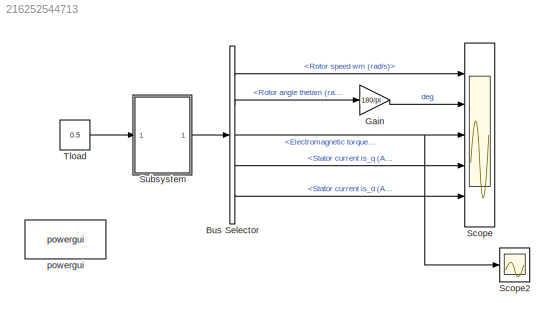
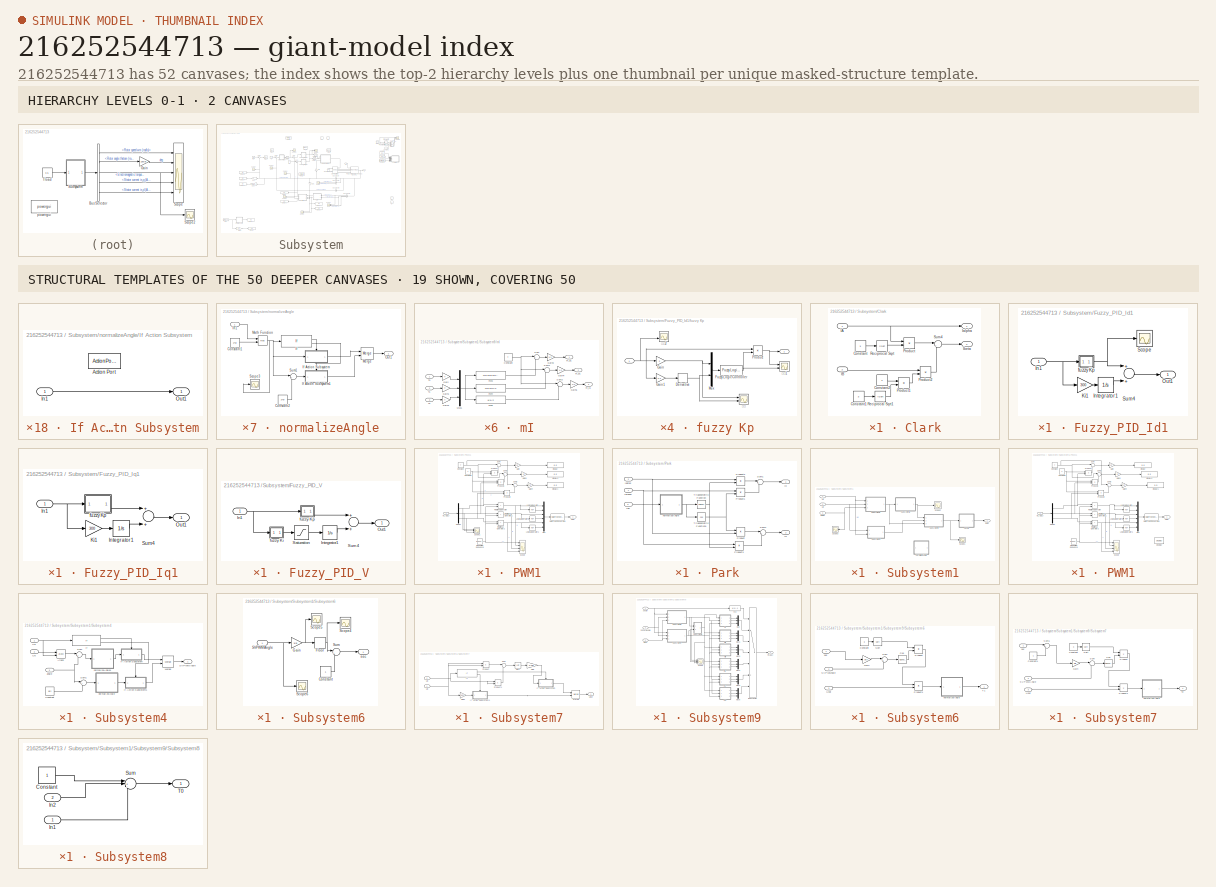
[diagram: thumbnail index - top-2 hierarchy levels (2 canvases) + 19 structural-template representatives of the remaining 50 canvases]
MODEL slx_216252544713
KIND model
CONFIG AbsTol = auto
CONFIG EnableMultiTasking = off
CONFIG FixedStep = auto
CONFIG MaxStep = auto
CONFIG MinStep = auto
CONFIG RelTol = 1e-3
CONFIG SampleTimeConstraint = Unconstrained
CONFIG Solver = VariableStepAuto
CONFIG SolverName = VariableStepAuto
CONFIG StartTime = 0.0
CONFIG StopTime = 0.2
BLOCK [BusSelector] Bus Selector
  OutputAsBus = off
  OutputSignals = Rotor speed wm (rad/s),Rotor angle thetam (rad),Electromagnetic torque Te (N*m),Stator current is_q (A),Stator current is_d (A)
  Ports = [1, 5]
BLOCK [Gain] Gain
  Gain = 180/pi
  OutDataTypeStr = Inherit: Inherit via internal rule
  ParamDataTypeStr = Inherit: Inherit via internal rule
  SaturateOnIntegerOverflow = off
BLOCK [Scope] Scope
  Floating = off
  NumInputPorts = 5
  Ports = [5]
  ScopeSpecificationString = Simulink.scopes.TimeScopeBlockCfg('CurrentConfiguration', extmgr.ConfigurationSet(extmgr.Configuration('Core','General UI',true),extmgr.Configuration('Core','Source UI',true),extmgr.Configuration('Sources','WiredSimulink',true,'DataLoggingVariableName','ScopeData1'),extmgr.Configuration('Visuals','Time Domain',true,'SerializedDisplays',{struct('MinYLimReal','-0.40107','MaxYLimReal','3.60121','YLab...<+4327ch>
BLOCK [Scope] Scope2
  Floating = off
  NumInputPorts = 1
  Ports = [1]
  ScopeSpecificationString = Simulink.scopes.TimeScopeBlockCfg('CurrentConfiguration', extmgr.ConfigurationSet(extmgr.Configuration('Core','General UI',true),extmgr.Configuration('Core','Source UI',true),extmgr.Configuration('Sources','WiredSimulink',true,'DataLoggingVariableName','ScopeData1'),extmgr.Configuration('Visuals','Time Domain',true,'SerializedDisplays',{struct('MinYLimReal','-0.40256','MaxYLimReal','3.03905','YLab...<+1517ch>
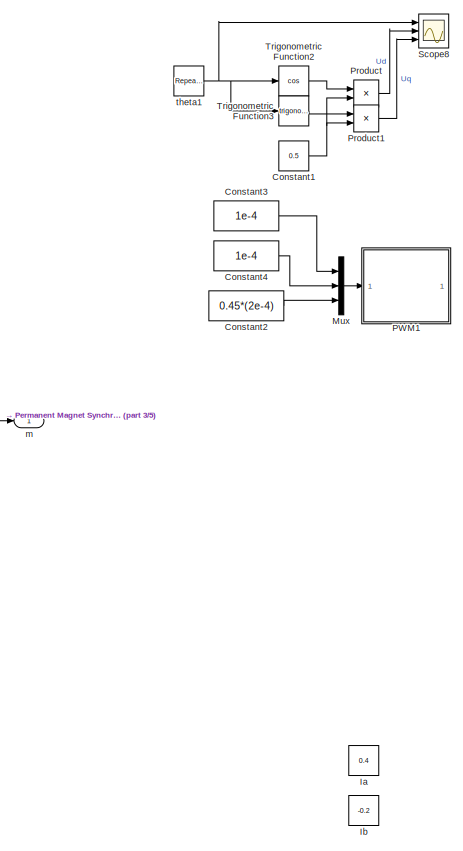
[diagram: Subsystem - part 1/5, middle right region]
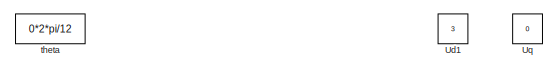
[diagram: Subsystem - part 2/5, top center region]
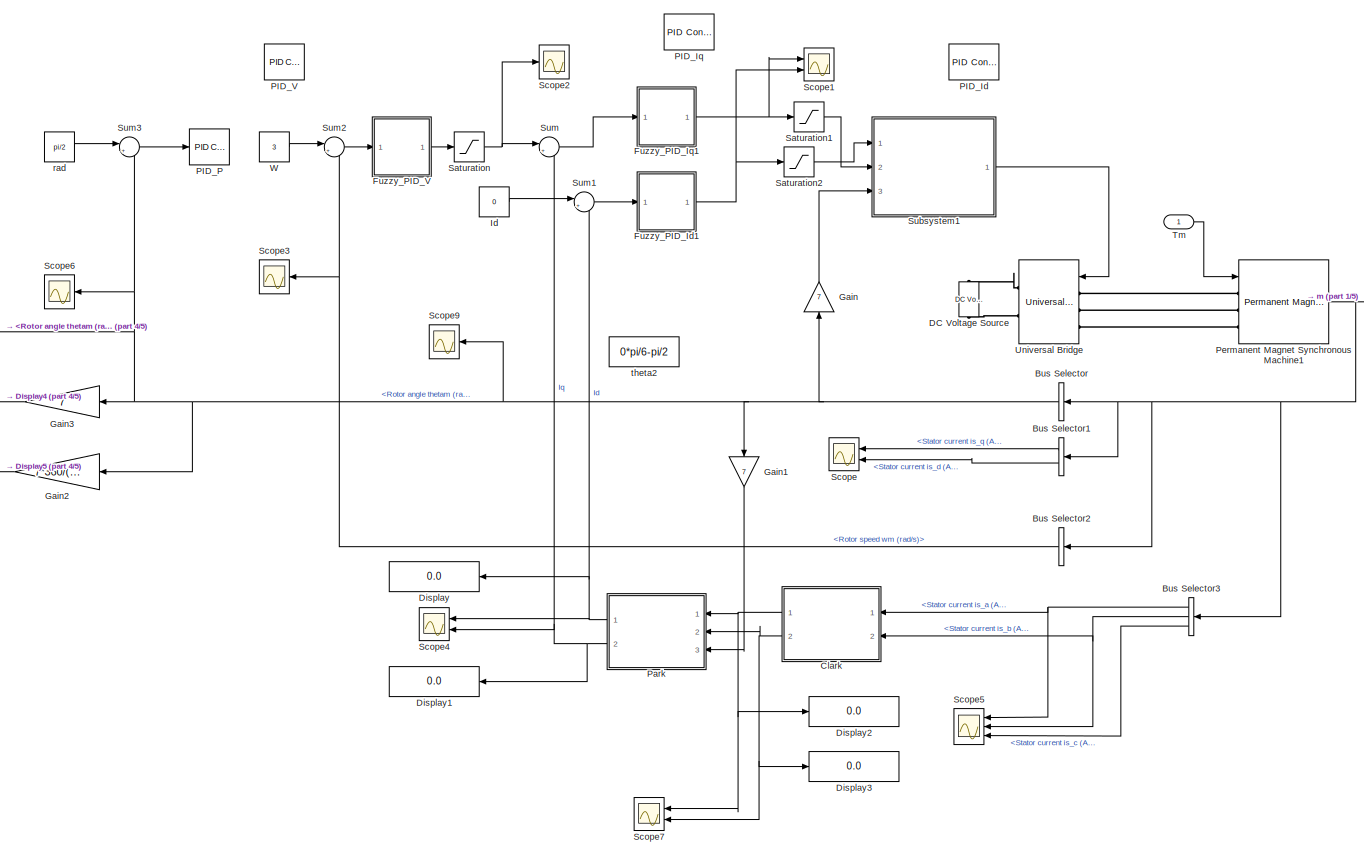
[diagram: Subsystem - part 3/5, central region]
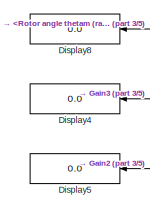
[diagram: Subsystem - part 4/5, middle left region]
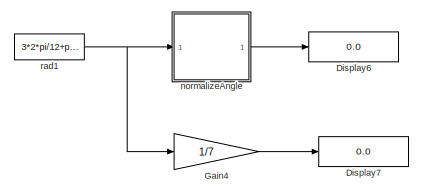
[diagram: Subsystem - part 5/5, bottom left region]
BLOCK [SubSystem] Subsystem
  Ports = [1, 1]
  RequestExecContextInheritance = off
BLOCK [BusSelector] Subsystem/Bus Selector
  OutputAsBus = off
  OutputSignals = Rotor angle thetam (rad)
  Ports = [1, 1]
BLOCK [BusSelector] Subsystem/Bus Selector1
  OutputAsBus = off
  OutputSignals = Stator current is_q (A),Stator current is_d (A)
  Ports = [1, 2]
BLOCK [BusSelector] Subsystem/Bus Selector2
  OutputAsBus = off
  OutputSignals = Rotor speed wm (rad/s)
  Ports = [1, 1]
BLOCK [BusSelector] Subsystem/Bus Selector3
  OutputAsBus = off
  OutputSignals = Stator current is_a (A),Stator current is_b (A),Stator current is_c (A)
  Ports = [1, 3]
BLOCK [SubSystem] Subsystem/Clark
  Ports = [2, 2]
  RequestExecContextInheritance = off
BLOCK [Constant] Subsystem/Clark/Constant
  Value = 3
BLOCK [Constant] Subsystem/Clark/Constant1
  Value = 3
BLOCK [Constant] Subsystem/Clark/Constant2
  Value = 2
BLOCK [Inport] Subsystem/Clark/IA
  IconDisplay = Port number
BLOCK [Inport] Subsystem/Clark/IB
  IconDisplay = Port number
  Port = 2
BLOCK [Outport] Subsystem/Clark/Ialpha
  IconDisplay = Port number
BLOCK [Outport] Subsystem/Clark/Ibeta
  IconDisplay = Port number
  Port = 2
BLOCK [Product] Subsystem/Clark/Product
  InputSameDT = off
  OutDataTypeStr = Inherit: Inherit via internal rule
  Ports = [2, 1]
  RndMeth = Floor
  SaturateOnIntegerOverflow = off
BLOCK [Product] Subsystem/Clark/Product1
  InputSameDT = off
  OutDataTypeStr = Inherit: Inherit via internal rule
  Ports = [2, 1]
  RndMeth = Floor
  SaturateOnIntegerOverflow = off
BLOCK [Product] Subsystem/Clark/Product2
  InputSameDT = off
  OutDataTypeStr = Inherit: Inherit via internal rule
  Ports = [2, 1]
  RndMeth = Floor
  SaturateOnIntegerOverflow = off
BLOCK [Sqrt] Subsystem/Clark/Reciprocal Sqrt
  Operator = rSqrt
BLOCK [Sqrt] Subsystem/Clark/Reciprocal Sqrt1
  Operator = rSqrt
BLOCK [Sum] Subsystem/Clark/Sum4
  IconShape = round
  InputSameDT = off
  Inputs = |++
  OutDataTypeStr = Inherit: Inherit via internal rule
  Ports = [2, 1]
  SaturateOnIntegerOverflow = off
BLOCK [Constant] Subsystem/Constant1
  Value = 0.5
BLOCK [Constant] Subsystem/Constant2
  Value = 0.45*(2e-4)
BLOCK [Constant] Subsystem/Constant3
  Value = 1e-4
BLOCK [Constant] Subsystem/Constant4
  Value = 1e-4
BLOCK [Reference] Subsystem/DC Voltage Source  REF=powerlib/Electrical
Sources/DC Voltage Source
  Ports = [0, 0, 0, 0, 0, 1, 1]
  SourceBlock = powerlib/Electrical\nSources/DC Voltage Source
  SourceProductBaseCode = PS
  SourceProductName = Simscape Power Systems
  SourceType = DC Voltage Source
BLOCK [Display] Subsystem/Display
  Decimation = 1
  Ports = [1]
BLOCK [Display] Subsystem/Display1
  Decimation = 1
  Ports = [1]
BLOCK [Display] Subsystem/Display2
  Decimation = 1
  Ports = [1]
BLOCK [Display] Subsystem/Display3
  Decimation = 1
  Ports = [1]
BLOCK [Display] Subsystem/Display4
  Decimation = 1
  Ports = [1]
BLOCK [Display] Subsystem/Display5
  Decimation = 1
  Ports = [1]
BLOCK [Display] Subsystem/Display6
  Decimation = 1
  Ports = [1]
BLOCK [Display] Subsystem/Display7
  Decimation = 1
  Ports = [1]
BLOCK [Display] Subsystem/Display8
  Decimation = 1
  Ports = [1]
BLOCK [SubSystem] Subsystem/Fuzzy_PID_Id1
  Ports = [1, 1]
  RequestExecContextInheritance = off
BLOCK [Inport] Subsystem/Fuzzy_PID_Id1/In1
  IconDisplay = Port number
BLOCK [Integrator] Subsystem/Fuzzy_PID_Id1/Integrator1
  Ports = [1, 1]
BLOCK [Gain] Subsystem/Fuzzy_PID_Id1/Ki1
  Gain = 300
  OutDataTypeStr = Inherit: Inherit via internal rule
  ParamDataTypeStr = Inherit: Inherit via internal rule
  SaturateOnIntegerOverflow = off
BLOCK [Outport] Subsystem/Fuzzy_PID_Id1/Out1
  IconDisplay = Port number
BLOCK [Scope] Subsystem/Fuzzy_PID_Id1/Scope
  Floating = off
  NumInputPorts = 1
  Ports = [1]
  ScopeSpecificationString = Simulink.scopes.TimeScopeBlockCfg('CurrentConfiguration', extmgr.ConfigurationSet(extmgr.Configuration('Core','General UI',true),extmgr.Configuration('Core','Source UI',true),extmgr.Configuration('Sources','WiredSimulink',true,'DataLoggingVariableName','ScopeData2'),extmgr.Configuration('Visuals','Time Domain',true,'SerializedDisplays',{struct('MinYLimReal','-10.90004','MaxYLimReal','29.87817','YL...<+1425ch>
BLOCK [Sum] Subsystem/Fuzzy_PID_Id1/Sum4
  InputSameDT = off
  OutDataTypeStr = Inherit: Inherit via internal rule
  Ports = [2, 1]
  SaturateOnIntegerOverflow = off
BLOCK [SubSystem] Subsystem/Fuzzy_PID_Id1/fuzzy Kp
  Ports = [1, 1]
  RequestExecContextInheritance = off
BLOCK [Inport] Subsystem/Fuzzy_PID_Id1/fuzzy Kp/ 
  IconDisplay = Port number
BLOCK [Outport] Subsystem/Fuzzy_PID_Id1/fuzzy Kp/  
  IconDisplay = Port number
BLOCK [Derivative] Subsystem/Fuzzy_PID_Id1/fuzzy Kp/Derivative
BLOCK [Reference] Subsystem/Fuzzy_PID_Id1/fuzzy Kp/Fuzzy Logic Controller  REF=fuzblock/Fuzzy Logic   (lib defined in mdl_858b3b3e7478)
Controller
  Ports = [1, 1]
  SourceBlock = fuzblock/Fuzzy Logic \nController
  SourceProductBaseCode = FL
  SourceProductName = Fuzzy Logic Toolbox
  SourceType = Fuzzy Inference System
BLOCK [Gain] Subsystem/Fuzzy_PID_Id1/fuzzy Kp/Gain
  Gain = 2
  OutDataTypeStr = Inherit: Inherit via internal rule
  ParamDataTypeStr = Inherit: Inherit via internal rule
  SaturateOnIntegerOverflow = off
BLOCK [Gain] Subsystem/Fuzzy_PID_Id1/fuzzy Kp/Gain1
  Gain = 0.1
  OutDataTypeStr = Inherit: Inherit via internal rule
  ParamDataTypeStr = Inherit: Inherit via internal rule
  SaturateOnIntegerOverflow = off
BLOCK [Mux] Subsystem/Fuzzy_PID_Id1/fuzzy Kp/Mux
  DisplayOption = bar
  Inputs = 2
  Ports = [2, 1]
BLOCK [Product] Subsystem/Fuzzy_PID_Id1/fuzzy Kp/Product
  InputSameDT = off
  OutDataTypeStr = Inherit: Inherit via internal rule
  Ports = [2, 1]
  RndMeth = Floor
  SaturateOnIntegerOverflow = off
BLOCK [Scope] Subsystem/Fuzzy_PID_Id1/fuzzy Kp/电流
  Floating = off
  NumInputPorts = 2
  Ports = [2]
  ScopeSpecificationString = Simulink.scopes.TimeScopeBlockCfg('CurrentConfiguration', extmgr.ConfigurationSet(extmgr.Configuration('Core','General UI',true),extmgr.Configuration('Core','Source UI',true),extmgr.Configuration('Sources','WiredSimulink',true,'DataLoggingVariableName','ScopeData1'),extmgr.Configuration('Visuals','Time Domain',true,'SerializedDisplays',{struct('MinYLimReal','-1.25501','MaxYLimReal','2.36496','YLab...<+1401ch>  <repeated x3 — deduplicated; at blocks: 电流>
BLOCK [Scope] Subsystem/Fuzzy_PID_Id1/fuzzy Kp/电流1
  Floating = off
  NumInputPorts = 2
  Ports = [2]
  ScopeSpecificationString = Simulink.scopes.TimeScopeBlockCfg('CurrentConfiguration', extmgr.ConfigurationSet(extmgr.Configuration('Core','General UI',true),extmgr.Configuration('Core','Source UI',true),extmgr.Configuration('Sources','WiredSimulink',true,'DataLoggingVariableName','ScopeData2'),extmgr.Configuration('Visuals','Time Domain',true,'SerializedDisplays',{struct('MinYLimReal','-2.00114','MaxYLimReal','4.74809','YLab...<+1497ch>
BLOCK [Scope] Subsystem/Fuzzy_PID_Id1/fuzzy Kp/电流2
  Floating = off
  NumInputPorts = 2
  Ports = [2]
  ScopeSpecificationString = Simulink.scopes.TimeScopeBlockCfg('CurrentConfiguration', extmgr.ConfigurationSet(extmgr.Configuration('Core','General UI',true),extmgr.Configuration('Core','Source UI',true),extmgr.Configuration('Sources','WiredSimulink',true,'DataLoggingVariableName','ScopeData1'),extmgr.Configuration('Visuals','Time Domain',true,'SerializedDisplays',{struct('MinYLimReal','-0.37324','MaxYLimReal','1.15423','YLab...<+1480ch>  <repeated x4 — deduplicated; at blocks: 电流2>
BLOCK [SubSystem] Subsystem/Fuzzy_PID_Iq1
  Ports = [1, 1]
  RequestExecContextInheritance = off
BLOCK [Inport] Subsystem/Fuzzy_PID_Iq1/In1
  IconDisplay = Port number
BLOCK [Integrator] Subsystem/Fuzzy_PID_Iq1/Integrator1
  Ports = [1, 1]
BLOCK [Gain] Subsystem/Fuzzy_PID_Iq1/Ki1
  Gain = 300
  OutDataTypeStr = Inherit: Inherit via internal rule
  ParamDataTypeStr = Inherit: Inherit via internal rule
  SaturateOnIntegerOverflow = off
BLOCK [Outport] Subsystem/Fuzzy_PID_Iq1/Out1
  IconDisplay = Port number
BLOCK [Sum] Subsystem/Fuzzy_PID_Iq1/Sum4
  InputSameDT = off
  OutDataTypeStr = Inherit: Inherit via internal rule
  Ports = [2, 1]
  SaturateOnIntegerOverflow = off
BLOCK [SubSystem] Subsystem/Fuzzy_PID_Iq1/fuzzy Kp
  Ports = [1, 1]
  RequestExecContextInheritance = off
BLOCK [Inport] Subsystem/Fuzzy_PID_Iq1/fuzzy Kp/ 
  IconDisplay = Port number
BLOCK [Outport] Subsystem/Fuzzy_PID_Iq1/fuzzy Kp/  
  IconDisplay = Port number
BLOCK [Derivative] Subsystem/Fuzzy_PID_Iq1/fuzzy Kp/Derivative
BLOCK [Reference] Subsystem/Fuzzy_PID_Iq1/fuzzy Kp/Fuzzy Logic Controller  REF=fuzblock/Fuzzy Logic   (lib defined in mdl_858b3b3e7478)
Controller
  Ports = [1, 1]
  SourceBlock = fuzblock/Fuzzy Logic \nController
  SourceProductBaseCode = FL
  SourceProductName = Fuzzy Logic Toolbox
  SourceType = Fuzzy Inference System
BLOCK [Gain] Subsystem/Fuzzy_PID_Iq1/fuzzy Kp/Gain
  Gain = 2
  OutDataTypeStr = Inherit: Inherit via internal rule
  ParamDataTypeStr = Inherit: Inherit via internal rule
  SaturateOnIntegerOverflow = off
BLOCK [Gain] Subsystem/Fuzzy_PID_Iq1/fuzzy Kp/Gain1
  Gain = 0.1
  OutDataTypeStr = Inherit: Inherit via internal rule
  ParamDataTypeStr = Inherit: Inherit via internal rule
  SaturateOnIntegerOverflow = off
BLOCK [Mux] Subsystem/Fuzzy_PID_Iq1/fuzzy Kp/Mux
  DisplayOption = bar
  Inputs = 2
  Ports = [2, 1]
BLOCK [Product] Subsystem/Fuzzy_PID_Iq1/fuzzy Kp/Product
  InputSameDT = off
  OutDataTypeStr = Inherit: Inherit via internal rule
  Ports = [2, 1]
  RndMeth = Floor
  SaturateOnIntegerOverflow = off
BLOCK [Scope] Subsystem/Fuzzy_PID_Iq1/fuzzy Kp/电流
  Floating = off
  NumInputPorts = 2
  Ports = [2]
BLOCK [Scope] Subsystem/Fuzzy_PID_Iq1/fuzzy Kp/电流1
  Floating = off
  NumInputPorts = 2
  Ports = [2]
  ScopeSpecificationString = Simulink.scopes.TimeScopeBlockCfg('CurrentConfiguration', extmgr.ConfigurationSet(extmgr.Configuration('Core','General UI',true),extmgr.Configuration('Core','Source UI',true),extmgr.Configuration('Sources','WiredSimulink',true,'DataLoggingVariableName','ScopeData2'),extmgr.Configuration('Visuals','Time Domain',true,'SerializedDisplays',{struct('MinYLimReal','-28.0203','MaxYLimReal','69.79085','YLa...<+1501ch>
BLOCK [Scope] Subsystem/Fuzzy_PID_Iq1/fuzzy Kp/电流2
  Floating = off
  NumInputPorts = 2
  Ports = [2]
BLOCK [SubSystem] Subsystem/Fuzzy_PID_V
  Ports = [1, 1]
  RequestExecContextInheritance = off
BLOCK [Inport] Subsystem/Fuzzy_PID_V/In1
  IconDisplay = Port number
BLOCK [Integrator] Subsystem/Fuzzy_PID_V/Integrator1
  Ports = [1, 1]
BLOCK [Outport] Subsystem/Fuzzy_PID_V/Out1
  IconDisplay = Port number
BLOCK [Saturate] Subsystem/Fuzzy_PID_V/Saturation
  InputPortMap = u0
  LowerLimit = -5000
  Ports = [1, 1]
  UpperLimit = 5000
BLOCK [Sum] Subsystem/Fuzzy_PID_V/Sum4
  InputSameDT = off
  OutDataTypeStr = Inherit: Inherit via internal rule
  Ports = [2, 1]
  SaturateOnIntegerOverflow = off
BLOCK [SubSystem] Subsystem/Fuzzy_PID_V/fuzzy Ki
  Ports = [1, 1]
  RequestExecContextInheritance = off
BLOCK [Inport] Subsystem/Fuzzy_PID_V/fuzzy Ki/ 
  IconDisplay = Port number
BLOCK [Outport] Subsystem/Fuzzy_PID_V/fuzzy Ki/  
  IconDisplay = Port number
BLOCK [Derivative] Subsystem/Fuzzy_PID_V/fuzzy Ki/Derivative
BLOCK [Reference] Subsystem/Fuzzy_PID_V/fuzzy Ki/Fuzzy Logic Controller  REF=fuzblock/Fuzzy Logic   (lib defined in mdl_858b3b3e7478)
Controller
  Ports = [1, 1]
  SourceBlock = fuzblock/Fuzzy Logic \nController
  SourceProductBaseCode = FL
  SourceProductName = Fuzzy Logic Toolbox
  SourceType = Fuzzy Inference System
BLOCK [Gain] Subsystem/Fuzzy_PID_V/fuzzy Ki/Gain
  Gain = 2
  OutDataTypeStr = Inherit: Inherit via internal rule
  ParamDataTypeStr = Inherit: Inherit via internal rule
  SaturateOnIntegerOverflow = off
BLOCK [Gain] Subsystem/Fuzzy_PID_V/fuzzy Ki/Gain1
  Gain = 0.1
  OutDataTypeStr = Inherit: Inherit via internal rule
  ParamDataTypeStr = Inherit: Inherit via internal rule
  SaturateOnIntegerOverflow = off
BLOCK [Mux] Subsystem/Fuzzy_PID_V/fuzzy Ki/Mux
  DisplayOption = bar
  Inputs = 2
  Ports = [2, 1]
BLOCK [Product] Subsystem/Fuzzy_PID_V/fuzzy Ki/Product
  InputSameDT = off
  OutDataTypeStr = Inherit: Inherit via internal rule
  Ports = [2, 1]
  RndMeth = Floor
  SaturateOnIntegerOverflow = off
BLOCK [Scope] Subsystem/Fuzzy_PID_V/fuzzy Ki/电流
  Floating = off
  NumInputPorts = 2
  Ports = [2]
  ScopeSpecificationString = Simulink.scopes.TimeScopeBlockCfg('CurrentConfiguration', extmgr.ConfigurationSet(extmgr.Configuration('Core','General UI',true),extmgr.Configuration('Core','Source UI',true),extmgr.Configuration('Sources','WiredSimulink',true,'DataLoggingVariableName','ScopeData1'),extmgr.Configuration('Visuals','Time Domain',true,'SerializedDisplays',{struct('MinYLimReal','-20600.56151','MaxYLimReal','21708.2822...<+1431ch>
BLOCK [Scope] Subsystem/Fuzzy_PID_V/fuzzy Ki/电流1
  Floating = off
  NumInputPorts = 2
  Ports = [2]
  ScopeSpecificationString = Simulink.scopes.TimeScopeBlockCfg('CurrentConfiguration', extmgr.ConfigurationSet(extmgr.Configuration('Core','General UI',true),extmgr.Configuration('Core','Source UI',true),extmgr.Configuration('Sources','WiredSimulink',true,'DataLoggingVariableName','ScopeData2'),extmgr.Configuration('Visuals','Time Domain',true,'SerializedDisplays',{struct('MinYLimReal','5.11599','MaxYLimReal','8.52665','YLabe...<+1472ch>
BLOCK [Scope] Subsystem/Fuzzy_PID_V/fuzzy Ki/电流2
  Floating = off
  NumInputPorts = 2
  Ports = [2]
BLOCK [SubSystem] Subsystem/Fuzzy_PID_V/fuzzy Kp
  Ports = [1, 1]
  RequestExecContextInheritance = off
BLOCK [Inport] Subsystem/Fuzzy_PID_V/fuzzy Kp/ 
  IconDisplay = Port number
BLOCK [Outport] Subsystem/Fuzzy_PID_V/fuzzy Kp/  
  IconDisplay = Port number
BLOCK [Derivative] Subsystem/Fuzzy_PID_V/fuzzy Kp/Derivative
BLOCK [Reference] Subsystem/Fuzzy_PID_V/fuzzy Kp/Fuzzy Logic Controller  REF=fuzblock/Fuzzy Logic   (lib defined in mdl_858b3b3e7478)
Controller
  Ports = [1, 1]
  SourceBlock = fuzblock/Fuzzy Logic \nController
  SourceProductBaseCode = FL
  SourceProductName = Fuzzy Logic Toolbox
  SourceType = Fuzzy Inference System
BLOCK [Gain] Subsystem/Fuzzy_PID_V/fuzzy Kp/Gain
  Gain = 2
  OutDataTypeStr = Inherit: Inherit via internal rule
  ParamDataTypeStr = Inherit: Inherit via internal rule
  SaturateOnIntegerOverflow = off
BLOCK [Gain] Subsystem/Fuzzy_PID_V/fuzzy Kp/Gain1
  Gain = 0.1
  OutDataTypeStr = Inherit: Inherit via internal rule
  ParamDataTypeStr = Inherit: Inherit via internal rule
  SaturateOnIntegerOverflow = off
BLOCK [Mux] Subsystem/Fuzzy_PID_V/fuzzy Kp/Mux
  DisplayOption = bar
  Inputs = 2
  Ports = [2, 1]
BLOCK [Product] Subsystem/Fuzzy_PID_V/fuzzy Kp/Product
  InputSameDT = off
  OutDataTypeStr = Inherit: Inherit via internal rule
  Ports = [2, 1]
  RndMeth = Floor
  SaturateOnIntegerOverflow = off
BLOCK [Scope] Subsystem/Fuzzy_PID_V/fuzzy Kp/电流
  Floating = off
  NumInputPorts = 2
  Ports = [2]
BLOCK [Scope] Subsystem/Fuzzy_PID_V/fuzzy Kp/电流1
  Floating = off
  NumInputPorts = 2
  Ports = [2]
  ScopeSpecificationString = Simulink.scopes.TimeScopeBlockCfg('CurrentConfiguration', extmgr.ConfigurationSet(extmgr.Configuration('Core','General UI',true),extmgr.Configuration('Core','Source UI',true),extmgr.Configuration('Sources','WiredSimulink',true,'DataLoggingVariableName','ScopeData2'),extmgr.Configuration('Visuals','Time Domain',true,'SerializedDisplays',{struct('MinYLimReal','-2.00114','MaxYLimReal','4.74809','YLab...<+1497ch>
BLOCK [Scope] Subsystem/Fuzzy_PID_V/fuzzy Kp/电流2
  Floating = off
  NumInputPorts = 2
  Ports = [2]
BLOCK [Gain] Subsystem/Gain
  Gain = 7
  OutDataTypeStr = Inherit: Inherit via internal rule
  ParamDataTypeStr = Inherit: Inherit via internal rule
  SaturateOnIntegerOverflow = off
BLOCK [Gain] Subsystem/Gain1
  Gain = 7
  OutDataTypeStr = Inherit: Inherit via internal rule
  ParamDataTypeStr = Inherit: Inherit via internal rule
  SaturateOnIntegerOverflow = off
BLOCK [Gain] Subsystem/Gain2
  Gain = 7*360/(2*pi)
  OutDataTypeStr = Inherit: Inherit via internal rule
  ParamDataTypeStr = Inherit: Inherit via internal rule
  SaturateOnIntegerOverflow = off
BLOCK [Gain] Subsystem/Gain3
  Gain = 7
  OutDataTypeStr = Inherit: Inherit via internal rule
  ParamDataTypeStr = Inherit: Inherit via internal rule
  SaturateOnIntegerOverflow = off
BLOCK [Gain] Subsystem/Gain4
  Gain = 1/7
  OutDataTypeStr = Inherit: Inherit via internal rule
  ParamDataTypeStr = Inherit: Inherit via internal rule
  SaturateOnIntegerOverflow = off
BLOCK [Constant] Subsystem/Ia
  Value = 0.4
BLOCK [Constant] Subsystem/Ib
  Value = -0.2
BLOCK [Constant] Subsystem/Id
  Value = 0
BLOCK [Mux] Subsystem/Mux
  DisplayOption = bar
  Inputs = 3
  Ports = [3, 1]
BLOCK [Reference] Subsystem/PID_Id  REF=simulink/Continuous/PID Controller
  Ports = [1, 1]
  SourceBlock = simulink/Continuous/PID Controller
  SourceProductBaseCode = SL
  SourceProductName = Simulink
  SourceType = PID 1dof
BLOCK [Reference] Subsystem/PID_Iq  REF=simulink/Continuous/PID Controller
  Ports = [1, 1]
  SourceBlock = simulink/Continuous/PID Controller
  SourceProductBaseCode = SL
  SourceProductName = Simulink
  SourceType = PID 1dof
BLOCK [Reference] Subsystem/PID_P  REF=simulink/Continuous/PID Controller
  Ports = [1, 1]
  SourceBlock = simulink/Continuous/PID Controller
  SourceProductBaseCode = SL
  SourceProductName = Simulink
  SourceType = PID 1dof
BLOCK [Reference] Subsystem/PID_V  REF=simulink/Continuous/PID Controller
  Ports = [1, 1]
  SourceBlock = simulink/Continuous/PID Controller
  SourceProductBaseCode = SL
  SourceProductName = Simulink
  SourceType = PID 1dof
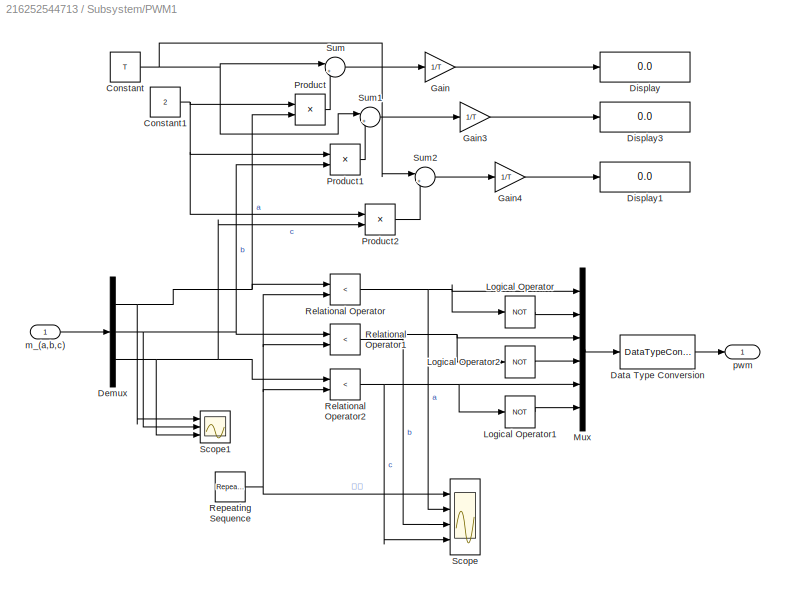
BLOCK [SubSystem] Subsystem/PWM1
  Ports = [1, 1]
  RequestExecContextInheritance = off
BLOCK [Constant] Subsystem/PWM1/Constant
  Value = T
BLOCK [Constant] Subsystem/PWM1/Constant1
  Value = 2
BLOCK [DataTypeConversion] Subsystem/PWM1/Data Type Conversion
  RndMeth = Floor
  SaturateOnIntegerOverflow = off
BLOCK [Demux] Subsystem/PWM1/Demux
  DisplayOption = bar
  Outputs = 3
  Ports = [1, 3]
BLOCK [Display] Subsystem/PWM1/Display
  Decimation = 1
  Ports = [1]
BLOCK [Display] Subsystem/PWM1/Display1
  Decimation = 1
  Ports = [1]
BLOCK [Display] Subsystem/PWM1/Display3
  Decimation = 1
  Ports = [1]
BLOCK [Gain] Subsystem/PWM1/Gain
  Gain = 1/T
  OutDataTypeStr = Inherit: Inherit via internal rule
  ParamDataTypeStr = Inherit: Inherit via internal rule
  SaturateOnIntegerOverflow = off
BLOCK [Gain] Subsystem/PWM1/Gain3
  Gain = 1/T
  OutDataTypeStr = Inherit: Inherit via internal rule
  ParamDataTypeStr = Inherit: Inherit via internal rule
  SaturateOnIntegerOverflow = off
BLOCK [Gain] Subsystem/PWM1/Gain4
  Gain = 1/T
  OutDataTypeStr = Inherit: Inherit via internal rule
  ParamDataTypeStr = Inherit: Inherit via internal rule
  SaturateOnIntegerOverflow = off
BLOCK [Logic] Subsystem/PWM1/Logical Operator
  AllPortsSameDT = off
  Operator = NOT
  OutDataTypeStr = boolean
  Ports = [1, 1]
BLOCK [Logic] Subsystem/PWM1/Logical Operator1
  AllPortsSameDT = off
  Operator = NOT
  OutDataTypeStr = boolean
  Ports = [1, 1]
BLOCK [Logic] Subsystem/PWM1/Logical Operator2
  AllPortsSameDT = off
  Operator = NOT
  OutDataTypeStr = boolean
  Ports = [1, 1]
BLOCK [Mux] Subsystem/PWM1/Mux
  DisplayOption = bar
  Inputs = 6
  Ports = [6, 1]
BLOCK [Product] Subsystem/PWM1/Product
  InputSameDT = off
  OutDataTypeStr = Inherit: Inherit via internal rule
  Ports = [2, 1]
  RndMeth = Floor
  SaturateOnIntegerOverflow = off
BLOCK [Product] Subsystem/PWM1/Product1
  InputSameDT = off
  OutDataTypeStr = Inherit: Inherit via internal rule
  Ports = [2, 1]
  RndMeth = Floor
  SaturateOnIntegerOverflow = off
BLOCK [Product] Subsystem/PWM1/Product2
  InputSameDT = off
  OutDataTypeStr = Inherit: Inherit via internal rule
  Ports = [2, 1]
  RndMeth = Floor
  SaturateOnIntegerOverflow = off
BLOCK [RelationalOperator] Subsystem/PWM1/Relational Operator
  InputSameDT = off
  Operator = <
  OutDataTypeStr = boolean
  Ports = [2, 1]
  RndMeth = Simplest
BLOCK [RelationalOperator] Subsystem/PWM1/Relational Operator1
  InputSameDT = off
  Operator = <
  OutDataTypeStr = boolean
  Ports = [2, 1]
  RndMeth = Simplest
BLOCK [RelationalOperator] Subsystem/PWM1/Relational Operator2
  InputSameDT = off
  Operator = <
  OutDataTypeStr = boolean
  Ports = [2, 1]
  RndMeth = Simplest
BLOCK [Reference] Subsystem/PWM1/Repeating Sequence  REF=simulink/Sources/Repeating
Sequence
  Ports = [0, 1]
  SourceBlock = simulink/Sources/Repeating\nSequence
  SourceProductBaseCode = SL
  SourceProductName = Simulink
  SourceType = Repeating table
BLOCK [Scope] Subsystem/PWM1/Scope
  Floating = off
  NumInputPorts = 4
  Ports = [4]
  ScopeSpecificationString = Simulink.scopes.TimeScopeBlockCfg('CurrentConfiguration', extmgr.ConfigurationSet(extmgr.Configuration('Core','General UI',true),extmgr.Configuration('Core','Source UI',true),extmgr.Configuration('Sources','WiredSimulink',true,'DataLoggingVariableName','ScopeData1'),extmgr.Configuration('Visuals','Time Domain',true,'SerializedDisplays',{struct('MinYLimReal','-0.00001','MaxYLimReal','0.00011','YLab...<+3422ch>
BLOCK [Scope] Subsystem/PWM1/Scope1
  Floating = off
  NumInputPorts = 3
  Ports = [3]
  ScopeSpecificationString = Simulink.scopes.TimeScopeBlockCfg('CurrentConfiguration', extmgr.ConfigurationSet(extmgr.Configuration('Core','General UI',true),extmgr.Configuration('Core','Source UI',true),extmgr.Configuration('Sources','WiredSimulink',true,'DataLoggingVariableName','ScopeData3'),extmgr.Configuration('Visuals','Time Domain',true,'SerializedDisplays',{struct('MinYLimReal','0.000099','MaxYLimReal','0.0001006','YL...<+2769ch>
BLOCK [Sum] Subsystem/PWM1/Sum
  IconShape = round
  InputSameDT = off
  Inputs = |+-
  OutDataTypeStr = Inherit: Inherit via internal rule
  Ports = [2, 1]
  SaturateOnIntegerOverflow = off
BLOCK [Sum] Subsystem/PWM1/Sum1
  IconShape = round
  InputSameDT = off
  Inputs = |+-
  OutDataTypeStr = Inherit: Inherit via internal rule
  Ports = [2, 1]
  SaturateOnIntegerOverflow = off
BLOCK [Sum] Subsystem/PWM1/Sum2
  IconShape = round
  InputSameDT = off
  Inputs = |+-
  OutDataTypeStr = Inherit: Inherit via internal rule
  Ports = [2, 1]
  SaturateOnIntegerOverflow = off
BLOCK [Inport] Subsystem/PWM1/m_(a,b,c) 
  IconDisplay = Port number
BLOCK [Outport] Subsystem/PWM1/pwm
  IconDisplay = Port number
BLOCK [SubSystem] Subsystem/Park
  Ports = [3, 2]
  RequestExecContextInheritance = off
BLOCK [Inport] Subsystem/Park/Ialpha2
  IconDisplay = Port number
BLOCK [Inport] Subsystem/Park/Ibeta2
  IconDisplay = Port number
  Port = 2
BLOCK [Outport] Subsystem/Park/Id
  IconDisplay = Port number
BLOCK [Outport] Subsystem/Park/Iq
  IconDisplay = Port number
  Port = 2
BLOCK [Product] Subsystem/Park/Product
  InputSameDT = off
  OutDataTypeStr = Inherit: Inherit via internal rule
  Ports = [2, 1]
  RndMeth = Floor
  SaturateOnIntegerOverflow = off
BLOCK [Product] Subsystem/Park/Product1
  InputSameDT = off
  OutDataTypeStr = Inherit: Inherit via internal rule
  Ports = [2, 1]
  RndMeth = Floor
  SaturateOnIntegerOverflow = off
BLOCK [Product] Subsystem/Park/Product2
  InputSameDT = off
  OutDataTypeStr = Inherit: Inherit via internal rule
  Ports = [2, 1]
  RndMeth = Floor
  SaturateOnIntegerOverflow = off
BLOCK [Product] Subsystem/Park/Product3
  InputSameDT = off
  OutDataTypeStr = Inherit: Inherit via internal rule
  Ports = [2, 1]
  RndMeth = Floor
  SaturateOnIntegerOverflow = off
BLOCK [Sum] Subsystem/Park/Sum1
  IconShape = round
  InputSameDT = off
  Inputs = |++
  OutDataTypeStr = Inherit: Inherit via internal rule
  Ports = [2, 1]
  SaturateOnIntegerOverflow = off
BLOCK [Sum] Subsystem/Park/Sum4
  IconShape = round
  InputSameDT = off
  Inputs = |+-
  OutDataTypeStr = Inherit: Inherit via internal rule
  Ports = [2, 1]
  SaturateOnIntegerOverflow = off
BLOCK [Trigonometry] Subsystem/Park/Trigonometric Function
  Ports = [1, 1]
BLOCK [Trigonometry] Subsystem/Park/Trigonometric Function1
  Operator = cos
  Ports = [1, 1]
BLOCK [SubSystem] Subsystem/Park/normalizeAngle
  Ports = [1, 1]
  RequestExecContextInheritance = off
BLOCK [Constant] Subsystem/Park/normalizeAngle/Constant1
  Value = 2*pi
BLOCK [Constant] Subsystem/Park/normalizeAngle/Constant2
  Value = 2*pi
BLOCK [If] Subsystem/Park/normalizeAngle/If
  IfExpression = u1 >= 0
  Ports = [1, 2]
BLOCK [SubSystem] Subsystem/Park/normalizeAngle/If Action Subsystem
  Ports = [1, 1, 0, 0, 0, 0, 0, 1]
  RequestExecContextInheritance = off
  TreatAsAtomicUnit = on
BLOCK [ActionPort] Subsystem/Park/normalizeAngle/If Action Subsystem/Action Port
  ActionType = then
BLOCK [Inport] Subsystem/Park/normalizeAngle/If Action Subsystem/In1
  IconDisplay = Port number
BLOCK [Outport] Subsystem/Park/normalizeAngle/If Action Subsystem/Out1
  IconDisplay = Port number
BLOCK [SubSystem] Subsystem/Park/normalizeAngle/If Action Subsystem1
  Ports = [1, 1, 0, 0, 0, 0, 0, 1]
  RequestExecContextInheritance = off
  TreatAsAtomicUnit = on
BLOCK [ActionPort] Subsystem/Park/normalizeAngle/If Action Subsystem1/Action Port
  ActionType = else
BLOCK [Inport] Subsystem/Park/normalizeAngle/If Action Subsystem1/In1
  IconDisplay = Port number
BLOCK [Outport] Subsystem/Park/normalizeAngle/If Action Subsystem1/Out1
  IconDisplay = Port number
BLOCK [Inport] Subsystem/Park/normalizeAngle/In1
  IconDisplay = Port number
BLOCK [Math] Subsystem/Park/normalizeAngle/Math Function
  Operator = mod
  Ports = [2, 1]
BLOCK [Merge] Subsystem/Park/normalizeAngle/Merge
  Ports = [2, 1]
BLOCK [Outport] Subsystem/Park/normalizeAngle/Out1
  IconDisplay = Port number
BLOCK [Scope] Subsystem/Park/normalizeAngle/Scope3
  Floating = off
  NumInputPorts = 1
  Ports = [1]
  ScopeSpecificationString = Simulink.scopes.TimeScopeBlockCfg('CurrentConfiguration', extmgr.ConfigurationSet(extmgr.Configuration('Core','General UI',true),extmgr.Configuration('Core','Source UI',true),extmgr.Configuration('Sources','WiredSimulink',true,'DataLoggingVariableName','ScopeData4'),extmgr.Configuration('Visuals','Time Domain',true,'SerializedDisplays',{struct('MinYLimReal','2.8633','MaxYLimReal','3.29517','YLabel...<+1414ch>  <repeated x7 — deduplicated; at blocks: Scope3>
BLOCK [Sum] Subsystem/Park/normalizeAngle/Sum1
  IconShape = round
  InputSameDT = off
  Inputs = |++
  OutDataTypeStr = Inherit: Inherit via internal rule
  Ports = [2, 1]
  SaturateOnIntegerOverflow = off
BLOCK [Inport] Subsystem/Park/rad
  IconDisplay = Port number
  Port = 3
BLOCK [Reference] Subsystem/Permanent Magnet Synchronous Machine1  REF=powerlib/Machines/Permanent Magnet
Synchronous Machine
  Ports = [1, 1, 0, 0, 0, 3]
  SourceBlock = powerlib/Machines/Permanent Magnet\nSynchronous Machine
  SourceProductBaseCode = PS
  SourceProductName = Simscape Power Systems
  SourceType = Permanent Magnet Synchronous Machine
BLOCK [Product] Subsystem/Product
  InputSameDT = off
  OutDataTypeStr = Inherit: Inherit via internal rule
  Ports = [2, 1]
  RndMeth = Floor
  SaturateOnIntegerOverflow = off
BLOCK [Product] Subsystem/Product1
  InputSameDT = off
  OutDataTypeStr = Inherit: Inherit via internal rule
  Ports = [2, 1]
  RndMeth = Floor
  SaturateOnIntegerOverflow = off
BLOCK [Saturate] Subsystem/Saturation
  InputPortMap = u0
  LowerLimit = -100
  Ports = [1, 1]
  UpperLimit = 100
BLOCK [Saturate] Subsystem/Saturation1
  InputPortMap = u0
  LowerLimit = -100
  Ports = [1, 1]
  UpperLimit = 100
BLOCK [Saturate] Subsystem/Saturation2
  InputPortMap = u0
  LowerLimit = -100
  Ports = [1, 1]
  UpperLimit = 100
BLOCK [Scope] Subsystem/Scope
  Floating = off
  NumInputPorts = 2
  Ports = [2]
  ScopeSpecificationString = Simulink.scopes.TimeScopeBlockCfg('CurrentConfiguration', extmgr.ConfigurationSet(extmgr.Configuration('Core','General UI',true),extmgr.Configuration('Core','Source UI',true),extmgr.Configuration('Sources','WiredSimulink',true,'DataLoggingVariableName','ScopeData1'),extmgr.Configuration('Visuals','Time Domain',true,'SerializedDisplays',{struct('MinYLimReal','-1.10695','MaxYLimReal','2.7815','YLabe...<+2045ch>
BLOCK [Scope] Subsystem/Scope1
  Floating = off
  NumInputPorts = 2
  Ports = [2]
  ScopeSpecificationString = Simulink.scopes.TimeScopeBlockCfg('CurrentConfiguration', extmgr.ConfigurationSet(extmgr.Configuration('Core','General UI',true),extmgr.Configuration('Core','Source UI',true),extmgr.Configuration('Sources','WiredSimulink',true,'DataLoggingVariableName','ScopeData2'),extmgr.Configuration('Visuals','Time Domain',true,'SerializedDisplays',{struct('MinYLimReal','2399.54396','MaxYLimReal','3066.784','Y...<+2030ch>
BLOCK [Scope] Subsystem/Scope2
  Floating = off
  NumInputPorts = 1
  Ports = [1]
  ScopeSpecificationString = Simulink.scopes.TimeScopeBlockCfg('CurrentConfiguration', extmgr.ConfigurationSet(extmgr.Configuration('Core','General UI',true),extmgr.Configuration('Core','Source UI',true),extmgr.Configuration('Sources','WiredSimulink',true,'DataLoggingVariableName','ScopeData2'),extmgr.Configuration('Visuals','Time Domain',true,'SerializedDisplays',{struct('MinYLimReal','-12.83015','MaxYLimReal','112.53668','Y...<+1502ch>
BLOCK [Scope] Subsystem/Scope3
  Floating = off
  NumInputPorts = 1
  Ports = [1]
  ScopeSpecificationString = Simulink.scopes.TimeScopeBlockCfg('CurrentConfiguration', extmgr.ConfigurationSet(extmgr.Configuration('Core','General UI',true),extmgr.Configuration('Core','Source UI',true),extmgr.Configuration('Sources','WiredSimulink',true,'DataLoggingVariableName','ScopeData3'),extmgr.Configuration('Visuals','Time Domain',true,'SerializedDisplays',{struct('MinYLimReal','-2.07874','MaxYLimReal','18.70026','YLa...<+1489ch>
BLOCK [Scope] Subsystem/Scope4
  Floating = off
  NumInputPorts = 2
  Ports = [2]
  ScopeSpecificationString = Simulink.scopes.TimeScopeBlockCfg('CurrentConfiguration', extmgr.ConfigurationSet(extmgr.Configuration('Core','General UI',true),extmgr.Configuration('Core','Source UI',true),extmgr.Configuration('Sources','WiredSimulink',true,'DataLoggingVariableName','ScopeData2'),extmgr.Configuration('Visuals','Time Domain',true,'SerializedDisplays',{struct('MinYLimReal','-8.09747','MaxYLimReal','9.03867','YLab...<+2095ch>
BLOCK [Scope] Subsystem/Scope5
  Floating = off
  NumInputPorts = 3
  Ports = [3]
  ScopeSpecificationString = Simulink.scopes.TimeScopeBlockCfg('CurrentConfiguration', extmgr.ConfigurationSet(extmgr.Configuration('Core','General UI',true),extmgr.Configuration('Core','Source UI',true),extmgr.Configuration('Sources','WiredSimulink',true,'DataLoggingVariableName','ScopeData2'),extmgr.Configuration('Visuals','Time Domain',true,'SerializedDisplays',{struct('MinYLimReal','-2.83753','MaxYLimReal','3.00829','YLab...<+2919ch>
BLOCK [Scope] Subsystem/Scope6
  Floating = off
  NumInputPorts = 1
  Ports = [1]
  ScopeSpecificationString = Simulink.scopes.TimeScopeBlockCfg('CurrentConfiguration', extmgr.ConfigurationSet(extmgr.Configuration('Core','General UI',true),extmgr.Configuration('Core','Source UI',true),extmgr.Configuration('Sources','WiredSimulink',true,'DataLoggingVariableName','ScopeData1'),extmgr.Configuration('Visuals','Time Domain',true,'SerializedDisplays',{struct('MinYLimReal','-0.05106','MaxYLimReal','0.45954','YLab...<+1508ch>
BLOCK [Scope] Subsystem/Scope7
  Floating = off
  NumInputPorts = 2
  Ports = [2]
  ScopeSpecificationString = Simulink.scopes.TimeScopeBlockCfg('CurrentConfiguration', extmgr.ConfigurationSet(extmgr.Configuration('Core','General UI',true),extmgr.Configuration('Core','Source UI',true),extmgr.Configuration('Sources','WiredSimulink',true,'DataLoggingVariableName','ScopeData4'),extmgr.Configuration('Visuals','Time Domain',true,'SerializedDisplays',{struct('MinYLimReal','-6.74749','MaxYLimReal','4.07326','YLab...<+2056ch>
BLOCK [Scope] Subsystem/Scope8
  Floating = off
  NumInputPorts = 3
  Ports = [3]
  ScopeSpecificationString = Simulink.scopes.TimeScopeBlockCfg('CurrentConfiguration', extmgr.ConfigurationSet(extmgr.Configuration('Core','General UI',true),extmgr.Configuration('Core','Source UI',true),extmgr.Configuration('Sources','WiredSimulink',true,'DataLoggingVariableName','ScopeData2'),extmgr.Configuration('Visuals','Time Domain',true,'SerializedDisplays',{struct('MinYLimReal','3.77014','MaxYLimReal','4.18535','YLabe...<+2745ch>
BLOCK [Scope] Subsystem/Scope9
  Floating = off
  NumInputPorts = 1
  Ports = [1]
  ScopeSpecificationString = Simulink.scopes.TimeScopeBlockCfg('CurrentConfiguration', extmgr.ConfigurationSet(extmgr.Configuration('Core','General UI',true),extmgr.Configuration('Core','Source UI',true),extmgr.Configuration('Sources','WiredSimulink',true,'DataLoggingVariableName','ScopeData1'),extmgr.Configuration('Visuals','Time Domain',true,'SerializedDisplays',{struct('MinYLimReal','-0.00694','MaxYLimReal','-0.00658','YLa...<+1485ch>
BLOCK [SubSystem] Subsystem/Subsystem1
  Ports = [3, 1]
  RequestExecContextInheritance = off
BLOCK [SubSystem] Subsystem/Subsystem1/PWM1
  Ports = [1, 1]
  RequestExecContextInheritance = off
BLOCK [Constant] Subsystem/Subsystem1/PWM1/Constant
  Value = T
BLOCK [Constant] Subsystem/Subsystem1/PWM1/Constant1
  Value = 2
BLOCK [DataTypeConversion] Subsystem/Subsystem1/PWM1/Data Type Conversion
  RndMeth = Floor
  SaturateOnIntegerOverflow = off
BLOCK [Demux] Subsystem/Subsystem1/PWM1/Demux
  DisplayOption = bar
  Outputs = 3
  Ports = [1, 3]
BLOCK [Display] Subsystem/Subsystem1/PWM1/Display
  Decimation = 1
  Ports = [1]
BLOCK [Display] Subsystem/Subsystem1/PWM1/Display1
  Decimation = 1
  Ports = [1]
BLOCK [Display] Subsystem/Subsystem1/PWM1/Display3
  Decimation = 1
  Ports = [1]
BLOCK [Gain] Subsystem/Subsystem1/PWM1/Gain
  Gain = 1/T
  OutDataTypeStr = Inherit: Inherit via internal rule
  ParamDataTypeStr = Inherit: Inherit via internal rule
  SaturateOnIntegerOverflow = off
BLOCK [Gain] Subsystem/Subsystem1/PWM1/Gain3
  Gain = 1/T
  OutDataTypeStr = Inherit: Inherit via internal rule
  ParamDataTypeStr = Inherit: Inherit via internal rule
  SaturateOnIntegerOverflow = off
BLOCK [Gain] Subsystem/Subsystem1/PWM1/Gain4
  Gain = 1/T
  OutDataTypeStr = Inherit: Inherit via internal rule
  ParamDataTypeStr = Inherit: Inherit via internal rule
  SaturateOnIntegerOverflow = off
BLOCK [Logic] Subsystem/Subsystem1/PWM1/Logical Operator
  AllPortsSameDT = off
  Operator = NOT
  OutDataTypeStr = boolean
  Ports = [1, 1]
BLOCK [Logic] Subsystem/Subsystem1/PWM1/Logical Operator1
  AllPortsSameDT = off
  Operator = NOT
  OutDataTypeStr = boolean
  Ports = [1, 1]
BLOCK [Logic] Subsystem/Subsystem1/PWM1/Logical Operator2
  AllPortsSameDT = off
  Operator = NOT
  OutDataTypeStr = boolean
  Ports = [1, 1]
BLOCK [Mux] Subsystem/Subsystem1/PWM1/Mux
  DisplayOption = bar
  Inputs = 6
  Ports = [6, 1]
BLOCK [Reference] Subsystem/Subsystem1/PWM1/On Delay  REF=powerlib_meascontrol/Logic/On Delay
  Ports = [1, 1]
  SourceBlock = powerlib_meascontrol/Logic/On Delay
  SourceProductBaseCode = PS
  SourceProductName = Simscape Power Systems
  SourceType = On/Off Delay
BLOCK [Product] Subsystem/Subsystem1/PWM1/Product
  InputSameDT = off
  OutDataTypeStr = Inherit: Inherit via internal rule
  Ports = [2, 1]
  RndMeth = Floor
  SaturateOnIntegerOverflow = off
BLOCK [Product] Subsystem/Subsystem1/PWM1/Product1
  InputSameDT = off
  OutDataTypeStr = Inherit: Inherit via internal rule
  Ports = [2, 1]
  RndMeth = Floor
  SaturateOnIntegerOverflow = off
BLOCK [Product] Subsystem/Subsystem1/PWM1/Product2
  InputSameDT = off
  OutDataTypeStr = Inherit: Inherit via internal rule
  Ports = [2, 1]
  RndMeth = Floor
  SaturateOnIntegerOverflow = off
BLOCK [RelationalOperator] Subsystem/Subsystem1/PWM1/Relational Operator
  InputSameDT = off
  Operator = <
  OutDataTypeStr = boolean
  Ports = [2, 1]
  RndMeth = Simplest
BLOCK [RelationalOperator] Subsystem/Subsystem1/PWM1/Relational Operator1
  InputSameDT = off
  Operator = <
  OutDataTypeStr = boolean
  Ports = [2, 1]
  RndMeth = Simplest
BLOCK [RelationalOperator] Subsystem/Subsystem1/PWM1/Relational Operator2
  InputSameDT = off
  Operator = <
  OutDataTypeStr = boolean
  Ports = [2, 1]
  RndMeth = Simplest
BLOCK [Reference] Subsystem/Subsystem1/PWM1/Repeating Sequence  REF=simulink/Sources/Repeating
Sequence
  Ports = [0, 1]
  SourceBlock = simulink/Sources/Repeating\nSequence
  SourceProductBaseCode = SL
  SourceProductName = Simulink
  SourceType = Repeating table
BLOCK [Scope] Subsystem/Subsystem1/PWM1/Scope
  Floating = off
  NumInputPorts = 4
  Ports = [4]
  ScopeSpecificationString = Simulink.scopes.TimeScopeBlockCfg('CurrentConfiguration', extmgr.ConfigurationSet(extmgr.Configuration('Core','General UI',true),extmgr.Configuration('Core','Source UI',true),extmgr.Configuration('Sources','WiredSimulink',true,'DataLoggingVariableName','ScopeData1'),extmgr.Configuration('Visuals','Time Domain',true,'SerializedDisplays',{struct('MinYLimReal','-0.00001','MaxYLimReal','0.00011','YLab...<+3414ch>
BLOCK [Sum] Subsystem/Subsystem1/PWM1/Sum
  IconShape = round
  InputSameDT = off
  Inputs = |+-
  OutDataTypeStr = Inherit: Inherit via internal rule
  Ports = [2, 1]
  SaturateOnIntegerOverflow = off
BLOCK [Sum] Subsystem/Subsystem1/PWM1/Sum1
  IconShape = round
  InputSameDT = off
  Inputs = |+-
  OutDataTypeStr = Inherit: Inherit via internal rule
  Ports = [2, 1]
  SaturateOnIntegerOverflow = off
BLOCK [Sum] Subsystem/Subsystem1/PWM1/Sum2
  IconShape = round
  InputSameDT = off
  Inputs = |+-
  OutDataTypeStr = Inherit: Inherit via internal rule
  Ports = [2, 1]
  SaturateOnIntegerOverflow = off
BLOCK [Inport] Subsystem/Subsystem1/PWM1/m_(a,b,c) 
  IconDisplay = Port number
BLOCK [Outport] Subsystem/Subsystem1/PWM1/pwm
  IconDisplay = Port number
BLOCK [Scope] Subsystem/Subsystem1/Scope1
  Floating = off
  NumInputPorts = 1
  Ports = [1]
  ScopeSpecificationString = Simulink.scopes.TimeScopeBlockCfg('CurrentConfiguration', extmgr.ConfigurationSet(extmgr.Configuration('Core','General UI',true),extmgr.Configuration('Core','Source UI',true),extmgr.Configuration('Sources','WiredSimulink',true,'DataLoggingVariableName','ScopeData1'),extmgr.Configuration('Visuals','Time Domain',true,'SerializedDisplays',{struct('MinYLimReal','0.000032','MaxYLimReal','0.000068','YLa...<+1507ch>
BLOCK [Scope] Subsystem/Subsystem1/Scope2
  Floating = off
  NumInputPorts = 1
  Ports = [1]
  ScopeSpecificationString = Simulink.scopes.TimeScopeBlockCfg('CurrentConfiguration', extmgr.ConfigurationSet(extmgr.Configuration('Core','General UI',true),extmgr.Configuration('Core','Source UI',true),extmgr.Configuration('Sources','WiredSimulink',true,'DataLoggingVariableName','ScopeData3'),extmgr.Configuration('Visuals','Time Domain',true,'SerializedDisplays',{struct('MinYLimReal','0.375','MaxYLimReal','6.625','YLabelRea...<+1426ch>
BLOCK [Scope] Subsystem/Subsystem1/Scope3
  Floating = off
  NumInputPorts = 1
  Ports = [1]
  ScopeSpecificationString = Simulink.scopes.TimeScopeBlockCfg('CurrentConfiguration', extmgr.ConfigurationSet(extmgr.Configuration('Core','General UI',true),extmgr.Configuration('Core','Source UI',true),extmgr.Configuration('Sources','WiredSimulink',true,'DataLoggingVariableName','ScopeData1'),extmgr.Configuration('Visuals','Time Domain',true,'SerializedDisplays',{struct('MinYLimReal','-1.00000','MaxYLimReal','1.00000','YLab...<+1417ch>
BLOCK [SubSystem] Subsystem/Subsystem1/Subsystem4
  Ports = [3, 1]
  RequestExecContextInheritance = off
BLOCK [Trigonometry] Subsystem/Subsystem1/Subsystem4/Atan2
  Operator = atan2
  Ports = [2, 1]
BLOCK [Constant] Subsystem/Subsystem1/Subsystem4/Constant
  Value = pi/2
BLOCK [If] Subsystem/Subsystem1/Subsystem4/If
  IfExpression = u1 ~= 0
  Ports = [1, 2]
BLOCK [SubSystem] Subsystem/Subsystem1/Subsystem4/If Action Subsystem
  Ports = [1, 1, 0, 0, 0, 0, 0, 1]
  RequestExecContextInheritance = off
  TreatAsAtomicUnit = on
BLOCK [ActionPort] Subsystem/Subsystem1/Subsystem4/If Action Subsystem/Action Port
  ActionType = then
BLOCK [Inport] Subsystem/Subsystem1/Subsystem4/If Action Subsystem/In1
  IconDisplay = Port number
BLOCK [Outport] Subsystem/Subsystem1/Subsystem4/If Action Subsystem/Out1
  IconDisplay = Port number
BLOCK [SubSystem] Subsystem/Subsystem1/Subsystem4/If Action Subsystem1
  Ports = [1, 1, 0, 0, 0, 0, 0, 1]
  RequestExecContextInheritance = off
  TreatAsAtomicUnit = on
BLOCK [ActionPort] Subsystem/Subsystem1/Subsystem4/If Action Subsystem1/Action Port
  ActionType = else
BLOCK [Inport] Subsystem/Subsystem1/Subsystem4/If Action Subsystem1/In1
  IconDisplay = Port number
BLOCK [Outport] Subsystem/Subsystem1/Subsystem4/If Action Subsystem1/Out1
  IconDisplay = Port number
BLOCK [Merge] Subsystem/Subsystem1/Subsystem4/Merge
  Ports = [2, 1]
BLOCK [Outport] Subsystem/Subsystem1/Subsystem4/SVPWMAngle
  IconDisplay = Port number
BLOCK [Sum] Subsystem/Subsystem1/Subsystem4/Sum
  IconShape = round
  InputSameDT = off
  Inputs = |++
  OutDataTypeStr = Inherit: Inherit via internal rule
  Ports = [2, 1]
  SaturateOnIntegerOverflow = off
BLOCK [Sum] Subsystem/Subsystem1/Subsystem4/Sum1
  IconShape = round
  InputSameDT = off
  Inputs = |++
  OutDataTypeStr = Inherit: Inherit via internal rule
  Ports = [2, 1]
  SaturateOnIntegerOverflow = off
BLOCK [Inport] Subsystem/Subsystem1/Subsystem4/Ud
  IconDisplay = Port number
BLOCK [Inport] Subsystem/Subsystem1/Subsystem4/Uq
  IconDisplay = Port number
  Port = 2
BLOCK [Inport] Subsystem/Subsystem1/Subsystem4/angle
  IconDisplay = Port number
  Port = 3
BLOCK [SubSystem] Subsystem/Subsystem1/Subsystem4/normalizeAngle
  Ports = [1, 1]
  RequestExecContextInheritance = off
BLOCK [Constant] Subsystem/Subsystem1/Subsystem4/normalizeAngle/Constant1
  Value = 2*pi
BLOCK [Constant] Subsystem/Subsystem1/Subsystem4/normalizeAngle/Constant2
  Value = 2*pi
BLOCK [If] Subsystem/Subsystem1/Subsystem4/normalizeAngle/If
  IfExpression = u1 >= 0
  Ports = [1, 2]
BLOCK [SubSystem] Subsystem/Subsystem1/Subsystem4/normalizeAngle/If Action Subsystem
  Ports = [1, 1, 0, 0, 0, 0, 0, 1]
  RequestExecContextInheritance = off
  TreatAsAtomicUnit = on
BLOCK [ActionPort] Subsystem/Subsystem1/Subsystem4/normalizeAngle/If Action Subsystem/Action Port
  ActionType = then
BLOCK [Inport] Subsystem/Subsystem1/Subsystem4/normalizeAngle/If Action Subsystem/In1
  IconDisplay = Port number
BLOCK [Outport] Subsystem/Subsystem1/Subsystem4/normalizeAngle/If Action Subsystem/Out1
  IconDisplay = Port number
BLOCK [SubSystem] Subsystem/Subsystem1/Subsystem4/normalizeAngle/If Action Subsystem1
  Ports = [1, 1, 0, 0, 0, 0, 0, 1]
  RequestExecContextInheritance = off
  TreatAsAtomicUnit = on
BLOCK [ActionPort] Subsystem/Subsystem1/Subsystem4/normalizeAngle/If Action Subsystem1/Action Port
  ActionType = else
BLOCK [Inport] Subsystem/Subsystem1/Subsystem4/normalizeAngle/If Action Subsystem1/In1
  IconDisplay = Port number
BLOCK [Outport] Subsystem/Subsystem1/Subsystem4/normalizeAngle/If Action Subsystem1/Out1
  IconDisplay = Port number
BLOCK [Inport] Subsystem/Subsystem1/Subsystem4/normalizeAngle/In1
  IconDisplay = Port number
BLOCK [Math] Subsystem/Subsystem1/Subsystem4/normalizeAngle/Math Function
  Operator = mod
  Ports = [2, 1]
BLOCK [Merge] Subsystem/Subsystem1/Subsystem4/normalizeAngle/Merge
  Ports = [2, 1]
BLOCK [Outport] Subsystem/Subsystem1/Subsystem4/normalizeAngle/Out1
  IconDisplay = Port number
BLOCK [Scope] Subsystem/Subsystem1/Subsystem4/normalizeAngle/Scope3
  Floating = off
  NumInputPorts = 1
  Ports = [1]
BLOCK [Sum] Subsystem/Subsystem1/Subsystem4/normalizeAngle/Sum1
  IconShape = round
  InputSameDT = off
  Inputs = |++
  OutDataTypeStr = Inherit: Inherit via internal rule
  Ports = [2, 1]
  SaturateOnIntegerOverflow = off
BLOCK [SubSystem] Subsystem/Subsystem1/Subsystem4/normalizeAngle1
  Ports = [1, 1]
  RequestExecContextInheritance = off
BLOCK [Constant] Subsystem/Subsystem1/Subsystem4/normalizeAngle1/Constant1
  Value = 2*pi
BLOCK [Constant] Subsystem/Subsystem1/Subsystem4/normalizeAngle1/Constant2
  Value = 2*pi
BLOCK [If] Subsystem/Subsystem1/Subsystem4/normalizeAngle1/If
  IfExpression = u1 >= 0
  Ports = [1, 2]
BLOCK [SubSystem] Subsystem/Subsystem1/Subsystem4/normalizeAngle1/If Action Subsystem
  Ports = [1, 1, 0, 0, 0, 0, 0, 1]
  RequestExecContextInheritance = off
  TreatAsAtomicUnit = on
BLOCK [ActionPort] Subsystem/Subsystem1/Subsystem4/normalizeAngle1/If Action Subsystem/Action Port
  ActionType = then
BLOCK [Inport] Subsystem/Subsystem1/Subsystem4/normalizeAngle1/If Action Subsystem/In1
  IconDisplay = Port number
BLOCK [Outport] Subsystem/Subsystem1/Subsystem4/normalizeAngle1/If Action Subsystem/Out1
  IconDisplay = Port number
BLOCK [SubSystem] Subsystem/Subsystem1/Subsystem4/normalizeAngle1/If Action Subsystem1
  Ports = [1, 1, 0, 0, 0, 0, 0, 1]
  RequestExecContextInheritance = off
  TreatAsAtomicUnit = on
BLOCK [ActionPort] Subsystem/Subsystem1/Subsystem4/normalizeAngle1/If Action Subsystem1/Action Port
  ActionType = else
BLOCK [Inport] Subsystem/Subsystem1/Subsystem4/normalizeAngle1/If Action Subsystem1/In1
  IconDisplay = Port number
BLOCK [Outport] Subsystem/Subsystem1/Subsystem4/normalizeAngle1/If Action Subsystem1/Out1
  IconDisplay = Port number
BLOCK [Inport] Subsystem/Subsystem1/Subsystem4/normalizeAngle1/In1
  IconDisplay = Port number
BLOCK [Math] Subsystem/Subsystem1/Subsystem4/normalizeAngle1/Math Function
  Operator = mod
  Ports = [2, 1]
BLOCK [Merge] Subsystem/Subsystem1/Subsystem4/normalizeAngle1/Merge
  Ports = [2, 1]
BLOCK [Outport] Subsystem/Subsystem1/Subsystem4/normalizeAngle1/Out1
  IconDisplay = Port number
BLOCK [Scope] Subsystem/Subsystem1/Subsystem4/normalizeAngle1/Scope3
  Floating = off
  NumInputPorts = 1
  Ports = [1]
BLOCK [Sum] Subsystem/Subsystem1/Subsystem4/normalizeAngle1/Sum1
  IconShape = round
  InputSameDT = off
  Inputs = |++
  OutDataTypeStr = Inherit: Inherit via internal rule
  Ports = [2, 1]
  SaturateOnIntegerOverflow = off
BLOCK [SubSystem] Subsystem/Subsystem1/Subsystem6
  Ports = [1, 1]
  RequestExecContextInheritance = off
BLOCK [Constant] Subsystem/Subsystem1/Subsystem6/Constant
BLOCK [Rounding] Subsystem/Subsystem1/Subsystem6/Floor
BLOCK [Gain] Subsystem/Subsystem1/Subsystem6/Gain
  Gain = 3/pi
  OutDataTypeStr = Inherit: Inherit via internal rule
  ParamDataTypeStr = Inherit: Inherit via internal rule
  SaturateOnIntegerOverflow = off
BLOCK [Inport] Subsystem/Subsystem1/Subsystem6/SVPWMAngle
  IconDisplay = Port number
BLOCK [Scope] Subsystem/Subsystem1/Subsystem6/Scope4
  Floating = off
  NumInputPorts = 1
  Ports = [1]
  ScopeSpecificationString = Simulink.scopes.TimeScopeBlockCfg('CurrentConfiguration', extmgr.ConfigurationSet(extmgr.Configuration('Core','General UI',true),extmgr.Configuration('Core','Source UI',true),extmgr.Configuration('Sources','WiredSimulink',true,'DataLoggingVariableName','ScopeData5'),extmgr.Configuration('Visuals','Time Domain',true,'SerializedDisplays',{struct('MinYLimReal','4.00000','MaxYLimReal','6.00000','YLabe...<+1433ch>
BLOCK [Scope] Subsystem/Subsystem1/Subsystem6/Scope5
  Floating = off
  NumInputPorts = 1
  Ports = [1]
  ScopeSpecificationString = Simulink.scopes.TimeScopeBlockCfg('CurrentConfiguration', extmgr.ConfigurationSet(extmgr.Configuration('Core','General UI',true),extmgr.Configuration('Core','Source UI',true),extmgr.Configuration('Sources','WiredSimulink',true,'DataLoggingVariableName','ScopeData6'),extmgr.Configuration('Visuals','Time Domain',true,'SerializedDisplays',{struct('MinYLimReal','4.5','MaxYLimReal','6.5','YLabelReal','...<+1400ch>
BLOCK [Scope] Subsystem/Subsystem1/Subsystem6/Scope6
  Floating = off
  NumInputPorts = 1
  Ports = [1]
  ScopeSpecificationString = Simulink.scopes.TimeScopeBlockCfg('CurrentConfiguration', extmgr.ConfigurationSet(extmgr.Configuration('Core','General UI',true),extmgr.Configuration('Core','Source UI',true),extmgr.Configuration('Sources','WiredSimulink',true,'DataLoggingVariableName','ScopeData7'),extmgr.Configuration('Visuals','Time Domain',true,'SerializedDisplays',{struct('MinYLimReal','-0.7854','MaxYLimReal','7.06858','YLabe...<+1438ch>
BLOCK [Sum] Subsystem/Subsystem1/Subsystem6/Sum
  IconShape = round
  InputSameDT = off
  Inputs = |++
  OutDataTypeStr = Inherit: Inherit via internal rule
  Ports = [2, 1]
  SaturateOnIntegerOverflow = off
BLOCK [Outport] Subsystem/Subsystem1/Subsystem6/sec
  IconDisplay = Port number
BLOCK [SubSystem] Subsystem/Subsystem1/Subsystem7
  Ports = [2, 1]
  RequestExecContextInheritance = off
BLOCK [Gain] Subsystem/Subsystem1/Subsystem7/Gain
  Gain = 1/Vdc
  OutDataTypeStr = Inherit: Inherit via internal rule
  ParamDataTypeStr = Inherit: Inherit via internal rule
  SaturateOnIntegerOverflow = off
BLOCK [Gain] Subsystem/Subsystem1/Subsystem7/Gain1
  Gain = 1/Vdc
  OutDataTypeStr = Inherit: Inherit via internal rule
  ParamDataTypeStr = Inherit: Inherit via internal rule
  SaturateOnIntegerOverflow = off
BLOCK [If] Subsystem/Subsystem1/Subsystem7/If
  IfExpression = u1 ~= 0
  Ports = [1, 2]
BLOCK [SubSystem] Subsystem/Subsystem1/Subsystem7/If Action Subsystem
  Ports = [1, 1, 0, 0, 0, 0, 0, 1]
  RequestExecContextInheritance = off
  TreatAsAtomicUnit = on
BLOCK [ActionPort] Subsystem/Subsystem1/Subsystem7/If Action Subsystem/Action Port
  ActionType = then
BLOCK [Inport] Subsystem/Subsystem1/Subsystem7/If Action Subsystem/In1
  IconDisplay = Port number
BLOCK [Outport] Subsystem/Subsystem1/Subsystem7/If Action Subsystem/Out1
  IconDisplay = Port number
BLOCK [SubSystem] Subsystem/Subsystem1/Subsystem7/If Action Subsystem1
  Ports = [1, 1, 0, 0, 0, 0, 0, 1]
  RequestExecContextInheritance = off
  TreatAsAtomicUnit = on
BLOCK [ActionPort] Subsystem/Subsystem1/Subsystem7/If Action Subsystem1/Action Port
  ActionType = else
BLOCK [Inport] Subsystem/Subsystem1/Subsystem7/If Action Subsystem1/In1
  IconDisplay = Port number
BLOCK [Outport] Subsystem/Subsystem1/Subsystem7/If Action Subsystem1/Out1
  IconDisplay = Port number
BLOCK [Merge] Subsystem/Subsystem1/Subsystem7/Merge
  Ports = [2, 1]
BLOCK [Product] Subsystem/Subsystem1/Subsystem7/Product
  InputSameDT = off
  OutDataTypeStr = Inherit: Inherit via internal rule
  Ports = [2, 1]
  RndMeth = Floor
  SaturateOnIntegerOverflow = off
BLOCK [Product] Subsystem/Subsystem1/Subsystem7/Product1
  InputSameDT = off
  OutDataTypeStr = Inherit: Inherit via internal rule
  Ports = [2, 1]
  RndMeth = Floor
  SaturateOnIntegerOverflow = off
BLOCK [Sqrt] Subsystem/Subsystem1/Subsystem7/Sqrt
BLOCK [Sum] Subsystem/Subsystem1/Subsystem7/Sum
  IconShape = round
  InputSameDT = off
  Inputs = |++
  OutDataTypeStr = Inherit: Inherit via internal rule
  Ports = [2, 1]
  SaturateOnIntegerOverflow = off
BLOCK [Inport] Subsystem/Subsystem1/Subsystem7/Ud
  IconDisplay = Port number
  Port = 2
BLOCK [Outport] Subsystem/Subsystem1/Subsystem7/Uout
  IconDisplay = Port number
BLOCK [Inport] Subsystem/Subsystem1/Subsystem7/Uq
  IconDisplay = Port number
BLOCK [SubSystem] Subsystem/Subsystem1/Subsystem9
  Ports = [3, 1]
  RequestExecContextInheritance = off
BLOCK [Fcn] Subsystem/Subsystem1/Subsystem9/Fcn
  Expr = u(1)-1
BLOCK [MultiPortSwitch] Subsystem/Subsystem1/Subsystem9/Index Vector
  DataPortOrder = Zero-based contiguous
  InputSameDT = off
  Inputs = 6
  Ports = [7, 1]
  SaturateOnIntegerOverflow = off
  zeroidx = on
BLOCK [Mux] Subsystem/Subsystem1/Subsystem9/Mux
  DisplayOption = bar
  Inputs = 3
  Ports = [3, 1]
BLOCK [Mux] Subsystem/Subsystem1/Subsystem9/Mux1
  DisplayOption = bar
  Inputs = 3
  Ports = [3, 1]
BLOCK [Mux] Subsystem/Subsystem1/Subsystem9/Mux2
  DisplayOption = bar
  Inputs = 3
  Ports = [3, 1]
BLOCK [Mux] Subsystem/Subsystem1/Subsystem9/Mux3
  DisplayOption = bar
  Inputs = 3
  Ports = [3, 1]
BLOCK [Mux] Subsystem/Subsystem1/Subsystem9/Mux4
  DisplayOption = bar
  Inputs = 3
  Ports = [3, 1]
BLOCK [Mux] Subsystem/Subsystem1/Subsystem9/Mux5
  DisplayOption = bar
  Inputs = 3
  Ports = [3, 1]
BLOCK [Inport] Subsystem/Subsystem1/Subsystem9/SVPWMAngle
  IconDisplay = Port number
  Port = 3
BLOCK [Scope] Subsystem/Subsystem1/Subsystem9/Scope
  Floating = off
  NumInputPorts = 3
  Ports = [3]
  ScopeSpecificationString = Simulink.scopes.TimeScopeBlockCfg('CurrentConfiguration', extmgr.ConfigurationSet(extmgr.Configuration('Core','General UI',true),extmgr.Configuration('Core','Source UI',true),extmgr.Configuration('Sources','WiredSimulink',true,'DataLoggingVariableName','ScopeData8'),extmgr.Configuration('Visuals','Time Domain',true,'SerializedDisplays',{struct('MinYLimReal','0.07205','MaxYLimReal','0.07219','YLabe...<+2770ch>
BLOCK [SubSystem] Subsystem/Subsystem1/Subsystem9/Subsystem6
  Ports = [3, 1]
  RequestExecContextInheritance = off
BLOCK [Constant] Subsystem/Subsystem1/Subsystem9/Subsystem6/Constant
  Value = 3
BLOCK [Trigonometry] Subsystem/Subsystem1/Subsystem9/Subsystem6/Cos
  Ports = [1, 1]
BLOCK [Gain] Subsystem/Subsystem1/Subsystem9/Subsystem6/Gain
  Gain = pi/3
  OutDataTypeStr = Inherit: Inherit via internal rule
  ParamDataTypeStr = Inherit: Inherit via internal rule
  SaturateOnIntegerOverflow = off
BLOCK [Product] Subsystem/Subsystem1/Subsystem9/Subsystem6/Product
  InputSameDT = off
  OutDataTypeStr = Inherit: Inherit via internal rule
  Ports = [2, 1]
  RndMeth = Floor
  SaturateOnIntegerOverflow = off
BLOCK [Product] Subsystem/Subsystem1/Subsystem9/Subsystem6/Product1
  InputSameDT = off
  OutDataTypeStr = Inherit: Inherit via internal rule
  Ports = [2, 1]
  RndMeth = Floor
  SaturateOnIntegerOverflow = off
BLOCK [Inport] Subsystem/Subsystem1/Subsystem9/Subsystem6/SVPWMngle
  IconDisplay = Port number
  Port = 2
BLOCK [Sqrt] Subsystem/Subsystem1/Subsystem9/Subsystem6/Sqrt
BLOCK [Sum] Subsystem/Subsystem1/Subsystem9/Subsystem6/Sum
  IconShape = round
  InputSameDT = off
  Inputs = |+-
  OutDataTypeStr = Inherit: Inherit via internal rule
  Ports = [2, 1]
  SaturateOnIntegerOverflow = off
BLOCK [Outport] Subsystem/Subsystem1/Subsystem9/Subsystem6/T1
  IconDisplay = Port number
BLOCK [Inport] Subsystem/Subsystem1/Subsystem9/Subsystem6/Uout
  IconDisplay = Port number
  Port = 3
BLOCK [SubSystem] Subsystem/Subsystem1/Subsystem9/Subsystem6/normalizeAngle
  Ports = [1, 1]
  RequestExecContextInheritance = off
BLOCK [Constant] Subsystem/Subsystem1/Subsystem9/Subsystem6/normalizeAngle/Constant1
  Value = 2*pi
BLOCK [Constant] Subsystem/Subsystem1/Subsystem9/Subsystem6/normalizeAngle/Constant2
  Value = 2*pi
BLOCK [If] Subsystem/Subsystem1/Subsystem9/Subsystem6/normalizeAngle/If
  IfExpression = u1 >= 0
  Ports = [1, 2]
BLOCK [SubSystem] Subsystem/Subsystem1/Subsystem9/Subsystem6/normalizeAngle/If Action Subsystem
  Ports = [1, 1, 0, 0, 0, 0, 0, 1]
  RequestExecContextInheritance = off
  TreatAsAtomicUnit = on
BLOCK [ActionPort] Subsystem/Subsystem1/Subsystem9/Subsystem6/normalizeAngle/If Action Subsystem/Action Port
  ActionType = then
BLOCK [Inport] Subsystem/Subsystem1/Subsystem9/Subsystem6/normalizeAngle/If Action Subsystem/In1
  IconDisplay = Port number
BLOCK [Outport] Subsystem/Subsystem1/Subsystem9/Subsystem6/normalizeAngle/If Action Subsystem/Out1
  IconDisplay = Port number
BLOCK [SubSystem] Subsystem/Subsystem1/Subsystem9/Subsystem6/normalizeAngle/If Action Subsystem1
  Ports = [1, 1, 0, 0, 0, 0, 0, 1]
  RequestExecContextInheritance = off
  TreatAsAtomicUnit = on
BLOCK [ActionPort] Subsystem/Subsystem1/Subsystem9/Subsystem6/normalizeAngle/If Action Subsystem1/Action Port
  ActionType = else
BLOCK [Inport] Subsystem/Subsystem1/Subsystem9/Subsystem6/normalizeAngle/If Action Subsystem1/In1
  IconDisplay = Port number
BLOCK [Outport] Subsystem/Subsystem1/Subsystem9/Subsystem6/normalizeAngle/If Action Subsystem1/Out1
  IconDisplay = Port number
BLOCK [Inport] Subsystem/Subsystem1/Subsystem9/Subsystem6/normalizeAngle/In1
  IconDisplay = Port number
BLOCK [Math] Subsystem/Subsystem1/Subsystem9/Subsystem6/normalizeAngle/Math Function
  Operator = mod
  Ports = [2, 1]
BLOCK [Merge] Subsystem/Subsystem1/Subsystem9/Subsystem6/normalizeAngle/Merge
  Ports = [2, 1]
BLOCK [Outport] Subsystem/Subsystem1/Subsystem9/Subsystem6/normalizeAngle/Out1
  IconDisplay = Port number
BLOCK [Scope] Subsystem/Subsystem1/Subsystem9/Subsystem6/normalizeAngle/Scope3
  Floating = off
  NumInputPorts = 1
  Ports = [1]
BLOCK [Sum] Subsystem/Subsystem1/Subsystem9/Subsystem6/normalizeAngle/Sum1
  IconShape = round
  InputSameDT = off
  Inputs = |++
  OutDataTypeStr = Inherit: Inherit via internal rule
  Ports = [2, 1]
  SaturateOnIntegerOverflow = off
BLOCK [Inport] Subsystem/Subsystem1/Subsystem9/Subsystem6/sec
  IconDisplay = Port number
BLOCK [SubSystem] Subsystem/Subsystem1/Subsystem9/Subsystem7
  Ports = [3, 1]
  RequestExecContextInheritance = off
BLOCK [Constant] Subsystem/Subsystem1/Subsystem9/Subsystem7/Constant
  Value = 3
BLOCK [Constant] Subsystem/Subsystem1/Subsystem9/Subsystem7/Constant1
BLOCK [Trigonometry] Subsystem/Subsystem1/Subsystem9/Subsystem7/Cos
  Ports = [1, 1]
BLOCK [Gain] Subsystem/Subsystem1/Subsystem9/Subsystem7/Gain
  Gain = pi/3
  OutDataTypeStr = Inherit: Inherit via internal rule
  ParamDataTypeStr = Inherit: Inherit via internal rule
  SaturateOnIntegerOverflow = off
BLOCK [Product] Subsystem/Subsystem1/Subsystem9/Subsystem7/Product
  InputSameDT = off
  OutDataTypeStr = Inherit: Inherit via internal rule
  Ports = [2, 1]
  RndMeth = Floor
  SaturateOnIntegerOverflow = off
BLOCK [Product] Subsystem/Subsystem1/Subsystem9/Subsystem7/Product1
  InputSameDT = off
  OutDataTypeStr = Inherit: Inherit via internal rule
  Ports = [2, 1]
  RndMeth = Floor
  SaturateOnIntegerOverflow = off
BLOCK [Inport] Subsystem/Subsystem1/Subsystem9/Subsystem7/SVPWMAngle
  IconDisplay = Port number
  Port = 2
BLOCK [Sqrt] Subsystem/Subsystem1/Subsystem9/Subsystem7/Sqrt
BLOCK [Sum] Subsystem/Subsystem1/Subsystem9/Subsystem7/Sum
  IconShape = round
  InputSameDT = off
  Inputs = |-+
  OutDataTypeStr = Inherit: Inherit via internal rule
  Ports = [2, 1]
  SaturateOnIntegerOverflow = off
BLOCK [Sum] Subsystem/Subsystem1/Subsystem9/Subsystem7/Sum1
  IconShape = round
  InputSameDT = off
  Inputs = |+-
  OutDataTypeStr = Inherit: Inherit via internal rule
  Ports = [2, 1]
  SaturateOnIntegerOverflow = off
BLOCK [Outport] Subsystem/Subsystem1/Subsystem9/Subsystem7/T2
  IconDisplay = Port number
BLOCK [Inport] Subsystem/Subsystem1/Subsystem9/Subsystem7/Uout
  IconDisplay = Port number
  Port = 3
BLOCK [SubSystem] Subsystem/Subsystem1/Subsystem9/Subsystem7/normalizeAngle
  Ports = [1, 1]
  RequestExecContextInheritance = off
BLOCK [Constant] Subsystem/Subsystem1/Subsystem9/Subsystem7/normalizeAngle/Constant1
  Value = 2*pi
BLOCK [Constant] Subsystem/Subsystem1/Subsystem9/Subsystem7/normalizeAngle/Constant2
  Value = 2*pi
BLOCK [If] Subsystem/Subsystem1/Subsystem9/Subsystem7/normalizeAngle/If
  IfExpression = u1 >= 0
  Ports = [1, 2]
BLOCK [SubSystem] Subsystem/Subsystem1/Subsystem9/Subsystem7/normalizeAngle/If Action Subsystem
  Ports = [1, 1, 0, 0, 0, 0, 0, 1]
  RequestExecContextInheritance = off
  TreatAsAtomicUnit = on
BLOCK [ActionPort] Subsystem/Subsystem1/Subsystem9/Subsystem7/normalizeAngle/If Action Subsystem/Action Port
  ActionType = then
BLOCK [Inport] Subsystem/Subsystem1/Subsystem9/Subsystem7/normalizeAngle/If Action Subsystem/In1
  IconDisplay = Port number
BLOCK [Outport] Subsystem/Subsystem1/Subsystem9/Subsystem7/normalizeAngle/If Action Subsystem/Out1
  IconDisplay = Port number
BLOCK [SubSystem] Subsystem/Subsystem1/Subsystem9/Subsystem7/normalizeAngle/If Action Subsystem1
  Ports = [1, 1, 0, 0, 0, 0, 0, 1]
  RequestExecContextInheritance = off
  TreatAsAtomicUnit = on
BLOCK [ActionPort] Subsystem/Subsystem1/Subsystem9/Subsystem7/normalizeAngle/If Action Subsystem1/Action Port
  ActionType = else
BLOCK [Inport] Subsystem/Subsystem1/Subsystem9/Subsystem7/normalizeAngle/If Action Subsystem1/In1
  IconDisplay = Port number
BLOCK [Outport] Subsystem/Subsystem1/Subsystem9/Subsystem7/normalizeAngle/If Action Subsystem1/Out1
  IconDisplay = Port number
BLOCK [Inport] Subsystem/Subsystem1/Subsystem9/Subsystem7/normalizeAngle/In1
  IconDisplay = Port number
BLOCK [Math] Subsystem/Subsystem1/Subsystem9/Subsystem7/normalizeAngle/Math Function
  Operator = mod
  Ports = [2, 1]
BLOCK [Merge] Subsystem/Subsystem1/Subsystem9/Subsystem7/normalizeAngle/Merge
  Ports = [2, 1]
BLOCK [Outport] Subsystem/Subsystem1/Subsystem9/Subsystem7/normalizeAngle/Out1
  IconDisplay = Port number
BLOCK [Scope] Subsystem/Subsystem1/Subsystem9/Subsystem7/normalizeAngle/Scope3
  Floating = off
  NumInputPorts = 1
  Ports = [1]
BLOCK [Sum] Subsystem/Subsystem1/Subsystem9/Subsystem7/normalizeAngle/Sum1
  IconShape = round
  InputSameDT = off
  Inputs = |++
  OutDataTypeStr = Inherit: Inherit via internal rule
  Ports = [2, 1]
  SaturateOnIntegerOverflow = off
BLOCK [Inport] Subsystem/Subsystem1/Subsystem9/Subsystem7/sec
  IconDisplay = Port number
BLOCK [SubSystem] Subsystem/Subsystem1/Subsystem9/Subsystem8
  Ports = [2, 1]
  RequestExecContextInheritance = off
BLOCK [Constant] Subsystem/Subsystem1/Subsystem9/Subsystem8/Constant
BLOCK [Inport] Subsystem/Subsystem1/Subsystem9/Subsystem8/In1
  IconDisplay = Port number
BLOCK [Inport] Subsystem/Subsystem1/Subsystem9/Subsystem8/In2
  IconDisplay = Port number
  Port = 2
BLOCK [Sum] Subsystem/Subsystem1/Subsystem9/Subsystem8/Sum
  IconShape = round
  InputSameDT = off
  Inputs = |+--
  OutDataTypeStr = Inherit: Inherit via internal rule
  Ports = [3, 1]
  SaturateOnIntegerOverflow = off
BLOCK [Outport] Subsystem/Subsystem1/Subsystem9/Subsystem8/T0
  IconDisplay = Port number
BLOCK [Inport] Subsystem/Subsystem1/Subsystem9/Uout
  IconDisplay = Port number
  Port = 2
BLOCK [Outport] Subsystem/Subsystem1/Subsystem9/m(a,b,c)
  IconDisplay = Port number
BLOCK [SubSystem] Subsystem/Subsystem1/Subsystem9/mI
  Ports = [3, 3]
  RequestExecContextInheritance = off
BLOCK [Constant] Subsystem/Subsystem1/Subsystem9/mI/Constant
  Value = T
BLOCK [Fcn] Subsystem/Subsystem1/Subsystem9/mI/Fcn3
  Expr = u(2)+u(3)+u(1)/2
BLOCK [Fcn] Subsystem/Subsystem1/Subsystem9/mI/Fcn4
  Expr = u(3)+u(1)/2
BLOCK [Fcn] Subsystem/Subsystem1/Subsystem9/mI/Fcn5
  Expr = u(1)/2
BLOCK [Gain] Subsystem/Subsystem1/Subsystem9/mI/Gain
  Gain = T
  OutDataTypeStr = Inherit: Inherit via internal rule
  ParamDataTypeStr = Inherit: Inherit via internal rule
  SaturateOnIntegerOverflow = off
BLOCK [Gain] Subsystem/Subsystem1/Subsystem9/mI/Gain1
  Gain = T
  OutDataTypeStr = Inherit: Inherit via internal rule
  ParamDataTypeStr = Inherit: Inherit via internal rule
  SaturateOnIntegerOverflow = off
BLOCK [Gain] Subsystem/Subsystem1/Subsystem9/mI/Gain2
  Gain = T
  OutDataTypeStr = Inherit: Inherit via internal rule
  ParamDataTypeStr = Inherit: Inherit via internal rule
  SaturateOnIntegerOverflow = off
BLOCK [Gain] Subsystem/Subsystem1/Subsystem9/mI/Gain3
  Gain = 1/2
  OutDataTypeStr = Inherit: Inherit via internal rule
  ParamDataTypeStr = Inherit: Inherit via internal rule
  SaturateOnIntegerOverflow = off
BLOCK [Gain] Subsystem/Subsystem1/Subsystem9/mI/Gain4
  Gain = 1/2
  OutDataTypeStr = Inherit: Inherit via internal rule
  ParamDataTypeStr = Inherit: Inherit via internal rule
  SaturateOnIntegerOverflow = off
BLOCK [Gain] Subsystem/Subsystem1/Subsystem9/mI/Gain5
  Gain = 1/2
  OutDataTypeStr = Inherit: Inherit via internal rule
  ParamDataTypeStr = Inherit: Inherit via internal rule
  SaturateOnIntegerOverflow = off
BLOCK [Mux] Subsystem/Subsystem1/Subsystem9/mI/Mux1
  DisplayOption = bar
  Inputs = 3
  Ports = [3, 1]
BLOCK [Sum] Subsystem/Subsystem1/Subsystem9/mI/Sum
  IconShape = round
  InputSameDT = off
  Inputs = |+-
  OutDataTypeStr = Inherit: Inherit via internal rule
  Ports = [2, 1]
  SaturateOnIntegerOverflow = off
BLOCK [Sum] Subsystem/Subsystem1/Subsystem9/mI/Sum1
  IconShape = round
  InputSameDT = off
  Inputs = |+-
  OutDataTypeStr = Inherit: Inherit via internal rule
  Ports = [2, 1]
  SaturateOnIntegerOverflow = off
BLOCK [Sum] Subsystem/Subsystem1/Subsystem9/mI/Sum2
  IconShape = round
  InputSameDT = off
  Inputs = |+-
  OutDataTypeStr = Inherit: Inherit via internal rule
  Ports = [2, 1]
  SaturateOnIntegerOverflow = off
BLOCK [Inport] Subsystem/Subsystem1/Subsystem9/mI/T0
  IconDisplay = Port number
BLOCK [Inport] Subsystem/Subsystem1/Subsystem9/mI/T1
  IconDisplay = Port number
  Port = 2
BLOCK [Inport] Subsystem/Subsystem1/Subsystem9/mI/T2
  IconDisplay = Port number
  Port = 3
BLOCK [Outport] Subsystem/Subsystem1/Subsystem9/mI/m_a1
  IconDisplay = Port number
BLOCK [Outport] Subsystem/Subsystem1/Subsystem9/mI/m_b1
  IconDisplay = Port number
  Port = 2
BLOCK [Outport] Subsystem/Subsystem1/Subsystem9/mI/m_c1
  IconDisplay = Port number
  Port = 3
BLOCK [SubSystem] Subsystem/Subsystem1/Subsystem9/mII
  Ports = [3, 3]
  RequestExecContextInheritance = off
BLOCK [Constant] Subsystem/Subsystem1/Subsystem9/mII/Constant
  Value = T
BLOCK [Fcn] Subsystem/Subsystem1/Subsystem9/mII/Fcn1
  Expr = u(2)+u(3)+u(1)/2
BLOCK [Fcn] Subsystem/Subsystem1/Subsystem9/mII/Fcn4
  Expr = u(2)+u(1)/2
BLOCK [Fcn] Subsystem/Subsystem1/Subsystem9/mII/Fcn5
  Expr = u(1)/2
BLOCK [Gain] Subsystem/Subsystem1/Subsystem9/mII/Gain
  Gain = T
  OutDataTypeStr = Inherit: Inherit via internal rule
  ParamDataTypeStr = Inherit: Inherit via internal rule
  SaturateOnIntegerOverflow = off
BLOCK [Gain] Subsystem/Subsystem1/Subsystem9/mII/Gain1
  Gain = T
  OutDataTypeStr = Inherit: Inherit via internal rule
  ParamDataTypeStr = Inherit: Inherit via internal rule
  SaturateOnIntegerOverflow = off
BLOCK [Gain] Subsystem/Subsystem1/Subsystem9/mII/Gain2
  Gain = T
  OutDataTypeStr = Inherit: Inherit via internal rule
  ParamDataTypeStr = Inherit: Inherit via internal rule
  SaturateOnIntegerOverflow = off
BLOCK [Gain] Subsystem/Subsystem1/Subsystem9/mII/Gain3
  Gain = 1/2
  OutDataTypeStr = Inherit: Inherit via internal rule
  ParamDataTypeStr = Inherit: Inherit via internal rule
  SaturateOnIntegerOverflow = off
BLOCK [Gain] Subsystem/Subsystem1/Subsystem9/mII/Gain4
  Gain = 1/2
  OutDataTypeStr = Inherit: Inherit via internal rule
  ParamDataTypeStr = Inherit: Inherit via internal rule
  SaturateOnIntegerOverflow = off
BLOCK [Gain] Subsystem/Subsystem1/Subsystem9/mII/Gain5
  Gain = 1/2
  OutDataTypeStr = Inherit: Inherit via internal rule
  ParamDataTypeStr = Inherit: Inherit via internal rule
  SaturateOnIntegerOverflow = off
BLOCK [Mux] Subsystem/Subsystem1/Subsystem9/mII/Mux1
  DisplayOption = bar
  Inputs = 3
  Ports = [3, 1]
BLOCK [Sum] Subsystem/Subsystem1/Subsystem9/mII/Sum
  IconShape = round
  InputSameDT = off
  Inputs = |+-
  OutDataTypeStr = Inherit: Inherit via internal rule
  Ports = [2, 1]
  SaturateOnIntegerOverflow = off
BLOCK [Sum] Subsystem/Subsystem1/Subsystem9/mII/Sum1
  IconShape = round
  InputSameDT = off
  Inputs = |+-
  OutDataTypeStr = Inherit: Inherit via internal rule
  Ports = [2, 1]
  SaturateOnIntegerOverflow = off
BLOCK [Sum] Subsystem/Subsystem1/Subsystem9/mII/Sum2
  IconShape = round
  InputSameDT = off
  Inputs = |+-
  OutDataTypeStr = Inherit: Inherit via internal rule
  Ports = [2, 1]
  SaturateOnIntegerOverflow = off
BLOCK [Inport] Subsystem/Subsystem1/Subsystem9/mII/T0
  IconDisplay = Port number
BLOCK [Inport] Subsystem/Subsystem1/Subsystem9/mII/T1
  IconDisplay = Port number
  Port = 2
BLOCK [Inport] Subsystem/Subsystem1/Subsystem9/mII/T2
  IconDisplay = Port number
  Port = 3
BLOCK [Outport] Subsystem/Subsystem1/Subsystem9/mII/m_a2
  IconDisplay = Port number
BLOCK [Outport] Subsystem/Subsystem1/Subsystem9/mII/m_b2
  IconDisplay = Port number
  Port = 2
BLOCK [Outport] Subsystem/Subsystem1/Subsystem9/mII/m_c2
  IconDisplay = Port number
  Port = 3
BLOCK [SubSystem] Subsystem/Subsystem1/Subsystem9/mIII
  Ports = [3, 3]
  RequestExecContextInheritance = off
BLOCK [Constant] Subsystem/Subsystem1/Subsystem9/mIII/Constant
  Value = T
BLOCK [Fcn] Subsystem/Subsystem1/Subsystem9/mIII/Fcn1
  Expr = u(2)+u(3)+u(1)/2
BLOCK [Fcn] Subsystem/Subsystem1/Subsystem9/mIII/Fcn4
  Expr = u(3)+u(1)/2
BLOCK [Fcn] Subsystem/Subsystem1/Subsystem9/mIII/Fcn5
  Expr = u(1)/2
BLOCK [Gain] Subsystem/Subsystem1/Subsystem9/mIII/Gain
  Gain = T
  OutDataTypeStr = Inherit: Inherit via internal rule
  ParamDataTypeStr = Inherit: Inherit via internal rule
  SaturateOnIntegerOverflow = off
BLOCK [Gain] Subsystem/Subsystem1/Subsystem9/mIII/Gain1
  Gain = T
  OutDataTypeStr = Inherit: Inherit via internal rule
  ParamDataTypeStr = Inherit: Inherit via internal rule
  SaturateOnIntegerOverflow = off
BLOCK [Gain] Subsystem/Subsystem1/Subsystem9/mIII/Gain2
  Gain = T
  OutDataTypeStr = Inherit: Inherit via internal rule
  ParamDataTypeStr = Inherit: Inherit via internal rule
  SaturateOnIntegerOverflow = off
BLOCK [Gain] Subsystem/Subsystem1/Subsystem9/mIII/Gain3
  Gain = 1/2
  OutDataTypeStr = Inherit: Inherit via internal rule
  ParamDataTypeStr = Inherit: Inherit via internal rule
  SaturateOnIntegerOverflow = off
BLOCK [Gain] Subsystem/Subsystem1/Subsystem9/mIII/Gain4
  Gain = 1/2
  OutDataTypeStr = Inherit: Inherit via internal rule
  ParamDataTypeStr = Inherit: Inherit via internal rule
  SaturateOnIntegerOverflow = off
BLOCK [Gain] Subsystem/Subsystem1/Subsystem9/mIII/Gain5
  Gain = 1/2
  OutDataTypeStr = Inherit: Inherit via internal rule
  ParamDataTypeStr = Inherit: Inherit via internal rule
  SaturateOnIntegerOverflow = off
BLOCK [Mux] Subsystem/Subsystem1/Subsystem9/mIII/Mux1
  DisplayOption = bar
  Inputs = 3
  Ports = [3, 1]
BLOCK [Sum] Subsystem/Subsystem1/Subsystem9/mIII/Sum
  IconShape = round
  InputSameDT = off
  Inputs = |+-
  OutDataTypeStr = Inherit: Inherit via internal rule
  Ports = [2, 1]
  SaturateOnIntegerOverflow = off
BLOCK [Sum] Subsystem/Subsystem1/Subsystem9/mIII/Sum1
  IconShape = round
  InputSameDT = off
  Inputs = |+-
  OutDataTypeStr = Inherit: Inherit via internal rule
  Ports = [2, 1]
  SaturateOnIntegerOverflow = off
BLOCK [Sum] Subsystem/Subsystem1/Subsystem9/mIII/Sum2
  IconShape = round
  InputSameDT = off
  Inputs = |+-
  OutDataTypeStr = Inherit: Inherit via internal rule
  Ports = [2, 1]
  SaturateOnIntegerOverflow = off
BLOCK [Inport] Subsystem/Subsystem1/Subsystem9/mIII/T0
  IconDisplay = Port number
BLOCK [Inport] Subsystem/Subsystem1/Subsystem9/mIII/T1
  IconDisplay = Port number
  Port = 2
BLOCK [Inport] Subsystem/Subsystem1/Subsystem9/mIII/T2
  IconDisplay = Port number
  Port = 3
BLOCK [Outport] Subsystem/Subsystem1/Subsystem9/mIII/m_a2
  IconDisplay = Port number
BLOCK [Outport] Subsystem/Subsystem1/Subsystem9/mIII/m_b2
  IconDisplay = Port number
  Port = 2
BLOCK [Outport] Subsystem/Subsystem1/Subsystem9/mIII/m_c2
  IconDisplay = Port number
  Port = 3
BLOCK [SubSystem] Subsystem/Subsystem1/Subsystem9/mIV
  Ports = [3, 3]
  RequestExecContextInheritance = off
BLOCK [Constant] Subsystem/Subsystem1/Subsystem9/mIV/Constant
  Value = T
BLOCK [Fcn] Subsystem/Subsystem1/Subsystem9/mIV/Fcn1
  Expr = u(2)+u(3)+u(1)/2
BLOCK [Fcn] Subsystem/Subsystem1/Subsystem9/mIV/Fcn4
  Expr = u(2)+u(1)/2
BLOCK [Fcn] Subsystem/Subsystem1/Subsystem9/mIV/Fcn5
  Expr = u(1)/2
BLOCK [Gain] Subsystem/Subsystem1/Subsystem9/mIV/Gain
  Gain = T
  OutDataTypeStr = Inherit: Inherit via internal rule
  ParamDataTypeStr = Inherit: Inherit via internal rule
  SaturateOnIntegerOverflow = off
BLOCK [Gain] Subsystem/Subsystem1/Subsystem9/mIV/Gain1
  Gain = T
  OutDataTypeStr = Inherit: Inherit via internal rule
  ParamDataTypeStr = Inherit: Inherit via internal rule
  SaturateOnIntegerOverflow = off
BLOCK [Gain] Subsystem/Subsystem1/Subsystem9/mIV/Gain2
  Gain = T
  OutDataTypeStr = Inherit: Inherit via internal rule
  ParamDataTypeStr = Inherit: Inherit via internal rule
  SaturateOnIntegerOverflow = off
BLOCK [Gain] Subsystem/Subsystem1/Subsystem9/mIV/Gain3
  Gain = 1/2
  OutDataTypeStr = Inherit: Inherit via internal rule
  ParamDataTypeStr = Inherit: Inherit via internal rule
  SaturateOnIntegerOverflow = off
BLOCK [Gain] Subsystem/Subsystem1/Subsystem9/mIV/Gain4
  Gain = 1/2
  OutDataTypeStr = Inherit: Inherit via internal rule
  ParamDataTypeStr = Inherit: Inherit via internal rule
  SaturateOnIntegerOverflow = off
BLOCK [Gain] Subsystem/Subsystem1/Subsystem9/mIV/Gain5
  Gain = 1/2
  OutDataTypeStr = Inherit: Inherit via internal rule
  ParamDataTypeStr = Inherit: Inherit via internal rule
  SaturateOnIntegerOverflow = off
BLOCK [Mux] Subsystem/Subsystem1/Subsystem9/mIV/Mux1
  DisplayOption = bar
  Inputs = 3
  Ports = [3, 1]
BLOCK [Sum] Subsystem/Subsystem1/Subsystem9/mIV/Sum
  IconShape = round
  InputSameDT = off
  Inputs = |+-
  OutDataTypeStr = Inherit: Inherit via internal rule
  Ports = [2, 1]
  SaturateOnIntegerOverflow = off
BLOCK [Sum] Subsystem/Subsystem1/Subsystem9/mIV/Sum1
  IconShape = round
  InputSameDT = off
  Inputs = |+-
  OutDataTypeStr = Inherit: Inherit via internal rule
  Ports = [2, 1]
  SaturateOnIntegerOverflow = off
BLOCK [Sum] Subsystem/Subsystem1/Subsystem9/mIV/Sum2
  IconShape = round
  InputSameDT = off
  Inputs = |+-
  OutDataTypeStr = Inherit: Inherit via internal rule
  Ports = [2, 1]
  SaturateOnIntegerOverflow = off
BLOCK [Inport] Subsystem/Subsystem1/Subsystem9/mIV/T0
  IconDisplay = Port number
BLOCK [Inport] Subsystem/Subsystem1/Subsystem9/mIV/T1
  IconDisplay = Port number
  Port = 2
BLOCK [Inport] Subsystem/Subsystem1/Subsystem9/mIV/T2
  IconDisplay = Port number
  Port = 3
BLOCK [Outport] Subsystem/Subsystem1/Subsystem9/mIV/m_a2
  IconDisplay = Port number
BLOCK [Outport] Subsystem/Subsystem1/Subsystem9/mIV/m_b2
  IconDisplay = Port number
  Port = 2
BLOCK [Outport] Subsystem/Subsystem1/Subsystem9/mIV/m_c2
  IconDisplay = Port number
  Port = 3
BLOCK [SubSystem] Subsystem/Subsystem1/Subsystem9/mV
  Ports = [3, 3]
  RequestExecContextInheritance = off
BLOCK [Constant] Subsystem/Subsystem1/Subsystem9/mV/Constant
  Value = T
BLOCK [Fcn] Subsystem/Subsystem1/Subsystem9/mV/Fcn1
  Expr = u(2)+u(3)+u(1)/2
BLOCK [Fcn] Subsystem/Subsystem1/Subsystem9/mV/Fcn4
  Expr = u(3)+u(1)/2
BLOCK [Fcn] Subsystem/Subsystem1/Subsystem9/mV/Fcn5
  Expr = u(1)/2
BLOCK [Gain] Subsystem/Subsystem1/Subsystem9/mV/Gain
  Gain = T
  OutDataTypeStr = Inherit: Inherit via internal rule
  ParamDataTypeStr = Inherit: Inherit via internal rule
  SaturateOnIntegerOverflow = off
BLOCK [Gain] Subsystem/Subsystem1/Subsystem9/mV/Gain1
  Gain = T
  OutDataTypeStr = Inherit: Inherit via internal rule
  ParamDataTypeStr = Inherit: Inherit via internal rule
  SaturateOnIntegerOverflow = off
BLOCK [Gain] Subsystem/Subsystem1/Subsystem9/mV/Gain2
  Gain = T
  OutDataTypeStr = Inherit: Inherit via internal rule
  ParamDataTypeStr = Inherit: Inherit via internal rule
  SaturateOnIntegerOverflow = off
BLOCK [Gain] Subsystem/Subsystem1/Subsystem9/mV/Gain3
  Gain = 1/2
  OutDataTypeStr = Inherit: Inherit via internal rule
  ParamDataTypeStr = Inherit: Inherit via internal rule
  SaturateOnIntegerOverflow = off
BLOCK [Gain] Subsystem/Subsystem1/Subsystem9/mV/Gain4
  Gain = 1/2
  OutDataTypeStr = Inherit: Inherit via internal rule
  ParamDataTypeStr = Inherit: Inherit via internal rule
  SaturateOnIntegerOverflow = off
BLOCK [Gain] Subsystem/Subsystem1/Subsystem9/mV/Gain5
  Gain = 1/2
  OutDataTypeStr = Inherit: Inherit via internal rule
  ParamDataTypeStr = Inherit: Inherit via internal rule
  SaturateOnIntegerOverflow = off
BLOCK [Mux] Subsystem/Subsystem1/Subsystem9/mV/Mux1
  DisplayOption = bar
  Inputs = 3
  Ports = [3, 1]
BLOCK [Sum] Subsystem/Subsystem1/Subsystem9/mV/Sum
  IconShape = round
  InputSameDT = off
  Inputs = |+-
  OutDataTypeStr = Inherit: Inherit via internal rule
  Ports = [2, 1]
  SaturateOnIntegerOverflow = off
BLOCK [Sum] Subsystem/Subsystem1/Subsystem9/mV/Sum1
  IconShape = round
  InputSameDT = off
  Inputs = |+-
  OutDataTypeStr = Inherit: Inherit via internal rule
  Ports = [2, 1]
  SaturateOnIntegerOverflow = off
BLOCK [Sum] Subsystem/Subsystem1/Subsystem9/mV/Sum2
  IconShape = round
  InputSameDT = off
  Inputs = |+-
  OutDataTypeStr = Inherit: Inherit via internal rule
  Ports = [2, 1]
  SaturateOnIntegerOverflow = off
BLOCK [Inport] Subsystem/Subsystem1/Subsystem9/mV/T0
  IconDisplay = Port number
BLOCK [Inport] Subsystem/Subsystem1/Subsystem9/mV/T1
  IconDisplay = Port number
  Port = 2
BLOCK [Inport] Subsystem/Subsystem1/Subsystem9/mV/T2
  IconDisplay = Port number
  Port = 3
BLOCK [Outport] Subsystem/Subsystem1/Subsystem9/mV/m_a2
  IconDisplay = Port number
BLOCK [Outport] Subsystem/Subsystem1/Subsystem9/mV/m_b2
  IconDisplay = Port number
  Port = 2
BLOCK [Outport] Subsystem/Subsystem1/Subsystem9/mV/m_c2
  IconDisplay = Port number
  Port = 3
BLOCK [SubSystem] Subsystem/Subsystem1/Subsystem9/mVI
  Ports = [3, 3]
  RequestExecContextInheritance = off
BLOCK [Constant] Subsystem/Subsystem1/Subsystem9/mVI/Constant
  Value = T
BLOCK [Fcn] Subsystem/Subsystem1/Subsystem9/mVI/Fcn1
  Expr = u(2)+u(3)+u(1)/2
BLOCK [Fcn] Subsystem/Subsystem1/Subsystem9/mVI/Fcn4
  Expr = u(2)+u(1)/2
BLOCK [Fcn] Subsystem/Subsystem1/Subsystem9/mVI/Fcn5
  Expr = u(1)/2
BLOCK [Gain] Subsystem/Subsystem1/Subsystem9/mVI/Gain
  Gain = T
  OutDataTypeStr = Inherit: Inherit via internal rule
  ParamDataTypeStr = Inherit: Inherit via internal rule
  SaturateOnIntegerOverflow = off
BLOCK [Gain] Subsystem/Subsystem1/Subsystem9/mVI/Gain1
  Gain = T
  OutDataTypeStr = Inherit: Inherit via internal rule
  ParamDataTypeStr = Inherit: Inherit via internal rule
  SaturateOnIntegerOverflow = off
BLOCK [Gain] Subsystem/Subsystem1/Subsystem9/mVI/Gain2
  Gain = T
  OutDataTypeStr = Inherit: Inherit via internal rule
  ParamDataTypeStr = Inherit: Inherit via internal rule
  SaturateOnIntegerOverflow = off
BLOCK [Gain] Subsystem/Subsystem1/Subsystem9/mVI/Gain3
  Gain = 1/2
  OutDataTypeStr = Inherit: Inherit via internal rule
  ParamDataTypeStr = Inherit: Inherit via internal rule
  SaturateOnIntegerOverflow = off
BLOCK [Gain] Subsystem/Subsystem1/Subsystem9/mVI/Gain4
  Gain = 1/2
  OutDataTypeStr = Inherit: Inherit via internal rule
  ParamDataTypeStr = Inherit: Inherit via internal rule
  SaturateOnIntegerOverflow = off
BLOCK [Gain] Subsystem/Subsystem1/Subsystem9/mVI/Gain5
  Gain = 1/2
  OutDataTypeStr = Inherit: Inherit via internal rule
  ParamDataTypeStr = Inherit: Inherit via internal rule
  SaturateOnIntegerOverflow = off
BLOCK [Mux] Subsystem/Subsystem1/Subsystem9/mVI/Mux1
  DisplayOption = bar
  Inputs = 3
  Ports = [3, 1]
BLOCK [Sum] Subsystem/Subsystem1/Subsystem9/mVI/Sum
  IconShape = round
  InputSameDT = off
  Inputs = |+-
  OutDataTypeStr = Inherit: Inherit via internal rule
  Ports = [2, 1]
  SaturateOnIntegerOverflow = off
BLOCK [Sum] Subsystem/Subsystem1/Subsystem9/mVI/Sum1
  IconShape = round
  InputSameDT = off
  Inputs = |+-
  OutDataTypeStr = Inherit: Inherit via internal rule
  Ports = [2, 1]
  SaturateOnIntegerOverflow = off
BLOCK [Sum] Subsystem/Subsystem1/Subsystem9/mVI/Sum2
  IconShape = round
  InputSameDT = off
  Inputs = |+-
  OutDataTypeStr = Inherit: Inherit via internal rule
  Ports = [2, 1]
  SaturateOnIntegerOverflow = off
BLOCK [Inport] Subsystem/Subsystem1/Subsystem9/mVI/T0
  IconDisplay = Port number
BLOCK [Inport] Subsystem/Subsystem1/Subsystem9/mVI/T1
  IconDisplay = Port number
  Port = 2
BLOCK [Inport] Subsystem/Subsystem1/Subsystem9/mVI/T2
  IconDisplay = Port number
  Port = 3
BLOCK [Outport] Subsystem/Subsystem1/Subsystem9/mVI/m_a2
  IconDisplay = Port number
BLOCK [Outport] Subsystem/Subsystem1/Subsystem9/mVI/m_b2
  IconDisplay = Port number
  Port = 2
BLOCK [Outport] Subsystem/Subsystem1/Subsystem9/mVI/m_c2
  IconDisplay = Port number
  Port = 3
BLOCK [Inport] Subsystem/Subsystem1/Subsystem9/sector
  IconDisplay = Port number
BLOCK [Inport] Subsystem/Subsystem1/Ud
  IconDisplay = Port number
BLOCK [Inport] Subsystem/Subsystem1/Uq
  IconDisplay = Port number
  Port = 2
BLOCK [SubSystem] Subsystem/Subsystem1/normalizeAngle
  Ports = [1, 1]
  RequestExecContextInheritance = off
BLOCK [Constant] Subsystem/Subsystem1/normalizeAngle/Constant1
  Value = 2*pi
BLOCK [Constant] Subsystem/Subsystem1/normalizeAngle/Constant2
  Value = 2*pi
BLOCK [If] Subsystem/Subsystem1/normalizeAngle/If
  IfExpression = u1 >= 0
  Ports = [1, 2]
BLOCK [SubSystem] Subsystem/Subsystem1/normalizeAngle/If Action Subsystem
  Ports = [1, 1, 0, 0, 0, 0, 0, 1]
  RequestExecContextInheritance = off
  TreatAsAtomicUnit = on
BLOCK [ActionPort] Subsystem/Subsystem1/normalizeAngle/If Action Subsystem/Action Port
  ActionType = then
BLOCK [Inport] Subsystem/Subsystem1/normalizeAngle/If Action Subsystem/In1
  IconDisplay = Port number
BLOCK [Outport] Subsystem/Subsystem1/normalizeAngle/If Action Subsystem/Out1
  IconDisplay = Port number
BLOCK [SubSystem] Subsystem/Subsystem1/normalizeAngle/If Action Subsystem1
  Ports = [1, 1, 0, 0, 0, 0, 0, 1]
  RequestExecContextInheritance = off
  TreatAsAtomicUnit = on
BLOCK [ActionPort] Subsystem/Subsystem1/normalizeAngle/If Action Subsystem1/Action Port
  ActionType = else
BLOCK [Inport] Subsystem/Subsystem1/normalizeAngle/If Action Subsystem1/In1
  IconDisplay = Port number
BLOCK [Outport] Subsystem/Subsystem1/normalizeAngle/If Action Subsystem1/Out1
  IconDisplay = Port number
BLOCK [Inport] Subsystem/Subsystem1/normalizeAngle/In1
  IconDisplay = Port number
BLOCK [Math] Subsystem/Subsystem1/normalizeAngle/Math Function
  Operator = mod
  Ports = [2, 1]
BLOCK [Merge] Subsystem/Subsystem1/normalizeAngle/Merge
  Ports = [2, 1]
BLOCK [Outport] Subsystem/Subsystem1/normalizeAngle/Out1
  IconDisplay = Port number
BLOCK [Scope] Subsystem/Subsystem1/normalizeAngle/Scope3
  Floating = off
  NumInputPorts = 1
  Ports = [1]
BLOCK [Sum] Subsystem/Subsystem1/normalizeAngle/Sum1
  IconShape = round
  InputSameDT = off
  Inputs = |++
  OutDataTypeStr = Inherit: Inherit via internal rule
  Ports = [2, 1]
  SaturateOnIntegerOverflow = off
BLOCK [Outport] Subsystem/Subsystem1/pwm
  IconDisplay = Port number
BLOCK [Inport] Subsystem/Subsystem1/theta2
  IconDisplay = Port number
  Port = 3
BLOCK [Sum] Subsystem/Sum
  IconShape = round
  InputSameDT = off
  Inputs = |+-
  OutDataTypeStr = Inherit: Inherit via internal rule
  Ports = [2, 1]
  SaturateOnIntegerOverflow = off
BLOCK [Sum] Subsystem/Sum1
  IconShape = round
  InputSameDT = off
  Inputs = |+-
  OutDataTypeStr = Inherit: Inherit via internal rule
  Ports = [2, 1]
  SaturateOnIntegerOverflow = off
BLOCK [Sum] Subsystem/Sum2
  IconShape = round
  InputSameDT = off
  Inputs = |+-
  OutDataTypeStr = Inherit: Inherit via internal rule
  Ports = [2, 1]
  SaturateOnIntegerOverflow = off
BLOCK [Sum] Subsystem/Sum3
  IconShape = round
  InputSameDT = off
  Inputs = |+-
  OutDataTypeStr = Inherit: Inherit via internal rule
  Ports = [2, 1]
  SaturateOnIntegerOverflow = off
BLOCK [Inport] Subsystem/Tm
  IconDisplay = Port number
BLOCK [Trigonometry] Subsystem/Trigonometric Function2
  Operator = cos
  Ports = [1, 1]
BLOCK [Trigonometry] Subsystem/Trigonometric Function3
  Ports = [1, 1]
BLOCK [Constant] Subsystem/Ud1
  Value = 3
BLOCK [Reference] Subsystem/Universal Bridge  REF=powerlib/Power
Electronics/Universal Bridge
  Ports = [1, 0, 0, 0, 0, 3, 2]
  SourceBlock = powerlib/Power\nElectronics/Universal Bridge
  SourceProductBaseCode = PS
  SourceProductName = Simscape Power Systems
  SourceType = Universal Bridge
BLOCK [Constant] Subsystem/Uq
  Value = 0
BLOCK [Constant] Subsystem/W
  Value = 3
BLOCK [Outport] Subsystem/m
  IconDisplay = Port number
BLOCK [SubSystem] Subsystem/normalizeAngle
  Ports = [1, 1]
  RequestExecContextInheritance = off
BLOCK [Constant] Subsystem/normalizeAngle/Constant1
  Value = 2*pi
BLOCK [Constant] Subsystem/normalizeAngle/Constant2
  Value = 2*pi
BLOCK [If] Subsystem/normalizeAngle/If
  IfExpression = u1 >= 0
  Ports = [1, 2]
BLOCK [SubSystem] Subsystem/normalizeAngle/If Action Subsystem
  Ports = [1, 1, 0, 0, 0, 0, 0, 1]
  RequestExecContextInheritance = off
  TreatAsAtomicUnit = on
BLOCK [ActionPort] Subsystem/normalizeAngle/If Action Subsystem/Action Port
  ActionType = then
BLOCK [Inport] Subsystem/normalizeAngle/If Action Subsystem/In1
  IconDisplay = Port number
BLOCK [Outport] Subsystem/normalizeAngle/If Action Subsystem/Out1
  IconDisplay = Port number
BLOCK [SubSystem] Subsystem/normalizeAngle/If Action Subsystem1
  Ports = [1, 1, 0, 0, 0, 0, 0, 1]
  RequestExecContextInheritance = off
  TreatAsAtomicUnit = on
BLOCK [ActionPort] Subsystem/normalizeAngle/If Action Subsystem1/Action Port
  ActionType = else
BLOCK [Inport] Subsystem/normalizeAngle/If Action Subsystem1/In1
  IconDisplay = Port number
BLOCK [Outport] Subsystem/normalizeAngle/If Action Subsystem1/Out1
  IconDisplay = Port number
BLOCK [Inport] Subsystem/normalizeAngle/In1
  IconDisplay = Port number
BLOCK [Math] Subsystem/normalizeAngle/Math Function
  Operator = mod
  Ports = [2, 1]
BLOCK [Merge] Subsystem/normalizeAngle/Merge
  Ports = [2, 1]
BLOCK [Outport] Subsystem/normalizeAngle/Out1
  IconDisplay = Port number
BLOCK [Scope] Subsystem/normalizeAngle/Scope3
  Floating = off
  NumInputPorts = 1
  Ports = [1]
BLOCK [Sum] Subsystem/normalizeAngle/Sum1
  IconShape = round
  InputSameDT = off
  Inputs = |++
  OutDataTypeStr = Inherit: Inherit via internal rule
  Ports = [2, 1]
  SaturateOnIntegerOverflow = off
BLOCK [Constant] Subsystem/rad
  Value = pi/2
BLOCK [Constant] Subsystem/rad1
  Value = 3*2*pi/12+pi/2
BLOCK [Constant] Subsystem/theta
  Value = 0*2*pi/12
BLOCK [Reference] Subsystem/theta1  REF=simulink/Sources/Repeating
Sequence
  Ports = [0, 1]
  SourceBlock = simulink/Sources/Repeating\nSequence
  SourceProductBaseCode = SL
  SourceProductName = Simulink
  SourceType = Repeating table
BLOCK [Constant] Subsystem/theta2
  Value = 0*pi/6-pi/2
BLOCK [Constant] Tload
  Value = 0.5
BLOCK [Reference] powergui  REF=powerlib/powergui
  Ports = []
  Priority = 1
  SourceBlock = powerlib/powergui
  SourceProductBaseCode = PS
  SourceProductName = Simscape Power Systems
  SourceType = PSB option menu block
LINE Bus Selector:1 -> Scope:1
LINE Bus Selector:2 -> Gain:1
NET Bus Selector:3 -> Scope2:1, Scope:3
LINE Bus Selector:4 -> Scope:4
LINE Bus Selector:5 -> Scope:5
LINE Gain:1 -> Scope:2
LINE Subsystem/Bus Selector1:1 -> Subsystem/Scope:1
LINE Subsystem/Bus Selector1:2 -> Subsystem/Scope:2
NET Subsystem/Bus Selector2:1 -> Subsystem/Scope3:1, Subsystem/Sum2:2
NET Subsystem/Bus Selector3:1 -> Subsystem/Clark:1, Subsystem/Scope5:1
NET Subsystem/Bus Selector3:2 -> Subsystem/Clark:2, Subsystem/Scope5:2
LINE Subsystem/Bus Selector3:3 -> Subsystem/Scope5:3
NET Subsystem/Bus Selector:1 -> Subsystem/Display8:1, Subsystem/Gain1:1, Subsystem/Gain2:1, Subsystem/Gain3:1, Subsystem/Gain:1, Subsystem/Scope6:1, Subsystem/Scope9:1, Subsystem/Sum3:2
LINE Subsystem/Clark/Constant1:1 -> Subsystem/Clark/Reciprocal Sqrt1:1
LINE Subsystem/Clark/Constant2:1 -> Subsystem/Clark/Product1:1
LINE Subsystem/Clark/Constant:1 -> Subsystem/Clark/Reciprocal Sqrt:1
NET Subsystem/Clark/IA:1 -> Subsystem/Clark/Ialpha:1, Subsystem/Clark/Product:1
LINE Subsystem/Clark/IB:1 -> Subsystem/Clark/Product2:1
LINE Subsystem/Clark/Product1:1 -> Subsystem/Clark/Product2:2
LINE Subsystem/Clark/Product2:1 -> Subsystem/Clark/Sum4:2
LINE Subsystem/Clark/Product:1 -> Subsystem/Clark/Sum4:1
LINE Subsystem/Clark/Reciprocal Sqrt1:1 -> Subsystem/Clark/Product1:2
LINE Subsystem/Clark/Reciprocal Sqrt:1 -> Subsystem/Clark/Product:2
LINE Subsystem/Clark/Sum4:1 -> Subsystem/Clark/Ibeta:1
NET Subsystem/Clark:1 -> Subsystem/Display2:1, Subsystem/Park:1, Subsystem/Scope7:1
NET Subsystem/Clark:2 -> Subsystem/Display3:1, Subsystem/Park:2, Subsystem/Scope7:2
NET Subsystem/Constant1:1 -> Subsystem/Product1:2, Subsystem/Product:2
LINE Subsystem/Constant2:1 -> Subsystem/Mux:3
LINE Subsystem/Constant3:1 -> Subsystem/Mux:1
LINE Subsystem/Constant4:1 -> Subsystem/Mux:2
NET Subsystem/Fuzzy_PID_Id1/In1:1 -> Subsystem/Fuzzy_PID_Id1/Ki1:1, Subsystem/Fuzzy_PID_Id1/fuzzy Kp:1
LINE Subsystem/Fuzzy_PID_Id1/Integrator1:1 -> Subsystem/Fuzzy_PID_Id1/Sum4:2
LINE Subsystem/Fuzzy_PID_Id1/Ki1:1 -> Subsystem/Fuzzy_PID_Id1/Integrator1:1
LINE Subsystem/Fuzzy_PID_Id1/Sum4:1 -> Subsystem/Fuzzy_PID_Id1/Out1:1
NET Subsystem/Fuzzy_PID_Id1/fuzzy Kp/ :1 -> Subsystem/Fuzzy_PID_Id1/fuzzy Kp/Gain1:1, Subsystem/Fuzzy_PID_Id1/fuzzy Kp/Gain:1, Subsystem/Fuzzy_PID_Id1/fuzzy Kp/Product:1, Subsystem/Fuzzy_PID_Id1/fuzzy Kp/电流2:2
NET Subsystem/Fuzzy_PID_Id1/fuzzy Kp/Derivative:1 -> Subsystem/Fuzzy_PID_Id1/fuzzy Kp/Mux:2, Subsystem/Fuzzy_PID_Id1/fuzzy Kp/电流:2
NET Subsystem/Fuzzy_PID_Id1/fuzzy Kp/Fuzzy Logic Controller:1 -> Subsystem/Fuzzy_PID_Id1/fuzzy Kp/Product:2, Subsystem/Fuzzy_PID_Id1/fuzzy Kp/电流1:2
LINE Subsystem/Fuzzy_PID_Id1/fuzzy Kp/Gain1:1 -> Subsystem/Fuzzy_PID_Id1/fuzzy Kp/Derivative:1
NET Subsystem/Fuzzy_PID_Id1/fuzzy Kp/Gain:1 -> Subsystem/Fuzzy_PID_Id1/fuzzy Kp/Mux:1, Subsystem/Fuzzy_PID_Id1/fuzzy Kp/电流:1
LINE Subsystem/Fuzzy_PID_Id1/fuzzy Kp/Mux:1 -> Subsystem/Fuzzy_PID_Id1/fuzzy Kp/Fuzzy Logic Controller:1
NET Subsystem/Fuzzy_PID_Id1/fuzzy Kp/Product:1 -> Subsystem/Fuzzy_PID_Id1/fuzzy Kp/  :1, Subsystem/Fuzzy_PID_Id1/fuzzy Kp/电流1:1
NET Subsystem/Fuzzy_PID_Id1/fuzzy Kp:1 -> Subsystem/Fuzzy_PID_Id1/Scope:1, Subsystem/Fuzzy_PID_Id1/Sum4:1
NET Subsystem/Fuzzy_PID_Id1:1 -> Subsystem/Saturation2:1, Subsystem/Scope1:2
NET Subsystem/Fuzzy_PID_Iq1/In1:1 -> Subsystem/Fuzzy_PID_Iq1/Ki1:1, Subsystem/Fuzzy_PID_Iq1/fuzzy Kp:1
LINE Subsystem/Fuzzy_PID_Iq1/Integrator1:1 -> Subsystem/Fuzzy_PID_Iq1/Sum4:2
LINE Subsystem/Fuzzy_PID_Iq1/Ki1:1 -> Subsystem/Fuzzy_PID_Iq1/Integrator1:1
LINE Subsystem/Fuzzy_PID_Iq1/Sum4:1 -> Subsystem/Fuzzy_PID_Iq1/Out1:1
NET Subsystem/Fuzzy_PID_Iq1/fuzzy Kp/ :1 -> Subsystem/Fuzzy_PID_Iq1/fuzzy Kp/Gain1:1, Subsystem/Fuzzy_PID_Iq1/fuzzy Kp/Gain:1, Subsystem/Fuzzy_PID_Iq1/fuzzy Kp/Product:1, Subsystem/Fuzzy_PID_Iq1/fuzzy Kp/电流2:2
NET Subsystem/Fuzzy_PID_Iq1/fuzzy Kp/Derivative:1 -> Subsystem/Fuzzy_PID_Iq1/fuzzy Kp/Mux:2, Subsystem/Fuzzy_PID_Iq1/fuzzy Kp/电流:2
NET Subsystem/Fuzzy_PID_Iq1/fuzzy Kp/Fuzzy Logic Controller:1 -> Subsystem/Fuzzy_PID_Iq1/fuzzy Kp/Product:2, Subsystem/Fuzzy_PID_Iq1/fuzzy Kp/电流1:2
LINE Subsystem/Fuzzy_PID_Iq1/fuzzy Kp/Gain1:1 -> Subsystem/Fuzzy_PID_Iq1/fuzzy Kp/Derivative:1
NET Subsystem/Fuzzy_PID_Iq1/fuzzy Kp/Gain:1 -> Subsystem/Fuzzy_PID_Iq1/fuzzy Kp/Mux:1, Subsystem/Fuzzy_PID_Iq1/fuzzy Kp/电流:1
LINE Subsystem/Fuzzy_PID_Iq1/fuzzy Kp/Mux:1 -> Subsystem/Fuzzy_PID_Iq1/fuzzy Kp/Fuzzy Logic Controller:1
NET Subsystem/Fuzzy_PID_Iq1/fuzzy Kp/Product:1 -> Subsystem/Fuzzy_PID_Iq1/fuzzy Kp/  :1, Subsystem/Fuzzy_PID_Iq1/fuzzy Kp/电流1:1
LINE Subsystem/Fuzzy_PID_Iq1/fuzzy Kp:1 -> Subsystem/Fuzzy_PID_Iq1/Sum4:1
NET Subsystem/Fuzzy_PID_Iq1:1 -> Subsystem/Saturation1:1, Subsystem/Scope1:1
NET Subsystem/Fuzzy_PID_V/In1:1 -> Subsystem/Fuzzy_PID_V/fuzzy Ki:1, Subsystem/Fuzzy_PID_V/fuzzy Kp:1
LINE Subsystem/Fuzzy_PID_V/Integrator1:1 -> Subsystem/Fuzzy_PID_V/Sum4:2
LINE Subsystem/Fuzzy_PID_V/Saturation:1 -> Subsystem/Fuzzy_PID_V/Integrator1:1
LINE Subsystem/Fuzzy_PID_V/Sum4:1 -> Subsystem/Fuzzy_PID_V/Out1:1
NET Subsystem/Fuzzy_PID_V/fuzzy Ki/ :1 -> Subsystem/Fuzzy_PID_V/fuzzy Ki/Gain1:1, Subsystem/Fuzzy_PID_V/fuzzy Ki/Gain:1, Subsystem/Fuzzy_PID_V/fuzzy Ki/Product:1, Subsystem/Fuzzy_PID_V/fuzzy Ki/电流2:2
NET Subsystem/Fuzzy_PID_V/fuzzy Ki/Derivative:1 -> Subsystem/Fuzzy_PID_V/fuzzy Ki/Mux:2, Subsystem/Fuzzy_PID_V/fuzzy Ki/电流:2
NET Subsystem/Fuzzy_PID_V/fuzzy Ki/Fuzzy Logic Controller:1 -> Subsystem/Fuzzy_PID_V/fuzzy Ki/Product:2, Subsystem/Fuzzy_PID_V/fuzzy Ki/电流1:2
LINE Subsystem/Fuzzy_PID_V/fuzzy Ki/Gain1:1 -> Subsystem/Fuzzy_PID_V/fuzzy Ki/Derivative:1
NET Subsystem/Fuzzy_PID_V/fuzzy Ki/Gain:1 -> Subsystem/Fuzzy_PID_V/fuzzy Ki/Mux:1, Subsystem/Fuzzy_PID_V/fuzzy Ki/电流:1
LINE Subsystem/Fuzzy_PID_V/fuzzy Ki/Mux:1 -> Subsystem/Fuzzy_PID_V/fuzzy Ki/Fuzzy Logic Controller:1
NET Subsystem/Fuzzy_PID_V/fuzzy Ki/Product:1 -> Subsystem/Fuzzy_PID_V/fuzzy Ki/  :1, Subsystem/Fuzzy_PID_V/fuzzy Ki/电流1:1
LINE Subsystem/Fuzzy_PID_V/fuzzy Ki:1 -> Subsystem/Fuzzy_PID_V/Saturation:1
NET Subsystem/Fuzzy_PID_V/fuzzy Kp/ :1 -> Subsystem/Fuzzy_PID_V/fuzzy Kp/Gain1:1, Subsystem/Fuzzy_PID_V/fuzzy Kp/Gain:1, Subsystem/Fuzzy_PID_V/fuzzy Kp/Product:1, Subsystem/Fuzzy_PID_V/fuzzy Kp/电流2:2
NET Subsystem/Fuzzy_PID_V/fuzzy Kp/Derivative:1 -> Subsystem/Fuzzy_PID_V/fuzzy Kp/Mux:2, Subsystem/Fuzzy_PID_V/fuzzy Kp/电流:2
NET Subsystem/Fuzzy_PID_V/fuzzy Kp/Fuzzy Logic Controller:1 -> Subsystem/Fuzzy_PID_V/fuzzy Kp/Product:2, Subsystem/Fuzzy_PID_V/fuzzy Kp/电流1:2
LINE Subsystem/Fuzzy_PID_V/fuzzy Kp/Gain1:1 -> Subsystem/Fuzzy_PID_V/fuzzy Kp/Derivative:1
NET Subsystem/Fuzzy_PID_V/fuzzy Kp/Gain:1 -> Subsystem/Fuzzy_PID_V/fuzzy Kp/Mux:1, Subsystem/Fuzzy_PID_V/fuzzy Kp/电流:1
LINE Subsystem/Fuzzy_PID_V/fuzzy Kp/Mux:1 -> Subsystem/Fuzzy_PID_V/fuzzy Kp/Fuzzy Logic Controller:1
NET Subsystem/Fuzzy_PID_V/fuzzy Kp/Product:1 -> Subsystem/Fuzzy_PID_V/fuzzy Kp/  :1, Subsystem/Fuzzy_PID_V/fuzzy Kp/电流1:1
LINE Subsystem/Fuzzy_PID_V/fuzzy Kp:1 -> Subsystem/Fuzzy_PID_V/Sum4:1
LINE Subsystem/Fuzzy_PID_V:1 -> Subsystem/Saturation:1
LINE Subsystem/Gain1:1 -> Subsystem/Park:3
LINE Subsystem/Gain2:1 -> Subsystem/Display5:1
LINE Subsystem/Gain3:1 -> Subsystem/Display4:1
LINE Subsystem/Gain4:1 -> Subsystem/Display7:1
LINE Subsystem/Gain:1 -> Subsystem/Subsystem1:3
LINE Subsystem/Id:1 -> Subsystem/Sum1:1
LINE Subsystem/Mux:1 -> Subsystem/PWM1:1
NET Subsystem/PWM1/Constant1:1 -> Subsystem/PWM1/Product1:1, Subsystem/PWM1/Product2:1, Subsystem/PWM1/Product:1
NET Subsystem/PWM1/Constant:1 -> Subsystem/PWM1/Sum1:1, Subsystem/PWM1/Sum2:1, Subsystem/PWM1/Sum:1
LINE Subsystem/PWM1/Data Type Conversion:1 -> Subsystem/PWM1/pwm:1
NET Subsystem/PWM1/Demux:1 -> Subsystem/PWM1/Product:2, Subsystem/PWM1/Relational Operator:1, Subsystem/PWM1/Scope1:1
NET Subsystem/PWM1/Demux:2 -> Subsystem/PWM1/Product1:2, Subsystem/PWM1/Relational Operator1:1, Subsystem/PWM1/Scope1:2
NET Subsystem/PWM1/Demux:3 -> Subsystem/PWM1/Product2:2, Subsystem/PWM1/Relational Operator2:1, Subsystem/PWM1/Scope1:3
LINE Subsystem/PWM1/Gain3:1 -> Subsystem/PWM1/Display3:1
LINE Subsystem/PWM1/Gain4:1 -> Subsystem/PWM1/Display1:1
LINE Subsystem/PWM1/Gain:1 -> Subsystem/PWM1/Display:1
LINE Subsystem/PWM1/Logical Operator1:1 -> Subsystem/PWM1/Mux:6
LINE Subsystem/PWM1/Logical Operator2:1 -> Subsystem/PWM1/Mux:4
LINE Subsystem/PWM1/Logical Operator:1 -> Subsystem/PWM1/Mux:2
LINE Subsystem/PWM1/Mux:1 -> Subsystem/PWM1/Data Type Conversion:1
LINE Subsystem/PWM1/Product1:1 -> Subsystem/PWM1/Sum1:2
LINE Subsystem/PWM1/Product2:1 -> Subsystem/PWM1/Sum2:2
LINE Subsystem/PWM1/Product:1 -> Subsystem/PWM1/Sum:2
NET Subsystem/PWM1/Relational Operator1:1 -> Subsystem/PWM1/Logical Operator2:1, Subsystem/PWM1/Mux:3, Subsystem/PWM1/Scope:3
NET Subsystem/PWM1/Relational Operator2:1 -> Subsystem/PWM1/Logical Operator1:1, Subsystem/PWM1/Mux:5, Subsystem/PWM1/Scope:4
NET Subsystem/PWM1/Relational Operator:1 -> Subsystem/PWM1/Logical Operator:1, Subsystem/PWM1/Mux:1, Subsystem/PWM1/Scope:2
NET Subsystem/PWM1/Repeating Sequence:1 -> Subsystem/PWM1/Relational Operator1:2, Subsystem/PWM1/Relational Operator2:2, Subsystem/PWM1/Relational Operator:2, Subsystem/PWM1/Scope:1
LINE Subsystem/PWM1/Sum1:1 -> Subsystem/PWM1/Gain3:1
LINE Subsystem/PWM1/Sum2:1 -> Subsystem/PWM1/Gain4:1
LINE Subsystem/PWM1/Sum:1 -> Subsystem/PWM1/Gain:1
LINE Subsystem/PWM1/m_(a,b,c) :1 -> Subsystem/PWM1/Demux:1
NET Subsystem/Park/Ialpha2:1 -> Subsystem/Park/Product1:1, Subsystem/Park/Product3:1
NET Subsystem/Park/Ibeta2:1 -> Subsystem/Park/Product2:1, Subsystem/Park/Product:2
LINE Subsystem/Park/Product1:1 -> Subsystem/Park/Sum1:2
LINE Subsystem/Park/Product2:1 -> Subsystem/Park/Sum1:1
LINE Subsystem/Park/Product3:1 -> Subsystem/Park/Sum4:2
LINE Subsystem/Park/Product:1 -> Subsystem/Park/Sum4:1
LINE Subsystem/Park/Sum1:1 -> Subsystem/Park/Id:1
LINE Subsystem/Park/Sum4:1 -> Subsystem/Park/Iq:1
NET Subsystem/Park/Trigonometric Function1:1 -> Subsystem/Park/Product1:2, Subsystem/Park/Product:1
NET Subsystem/Park/Trigonometric Function:1 -> Subsystem/Park/Product2:2, Subsystem/Park/Product3:2
LINE Subsystem/Park/normalizeAngle/Constant1:1 -> Subsystem/Park/normalizeAngle/Math Function:2
LINE Subsystem/Park/normalizeAngle/Constant2:1 -> Subsystem/Park/normalizeAngle/Sum1:2
LINE Subsystem/Park/normalizeAngle/If Action Subsystem/In1:1 -> Subsystem/Park/normalizeAngle/If Action Subsystem/Out1:1
LINE Subsystem/Park/normalizeAngle/If Action Subsystem1/In1:1 -> Subsystem/Park/normalizeAngle/If Action Subsystem1/Out1:1
LINE Subsystem/Park/normalizeAngle/If Action Subsystem1:1 -> Subsystem/Park/normalizeAngle/Merge:2
LINE Subsystem/Park/normalizeAngle/If Action Subsystem:1 -> Subsystem/Park/normalizeAngle/Merge:1
LINE Subsystem/Park/normalizeAngle/If:1 -> Subsystem/Park/normalizeAngle/If Action Subsystem:ifaction
LINE Subsystem/Park/normalizeAngle/If:2 -> Subsystem/Park/normalizeAngle/If Action Subsystem1:ifaction
LINE Subsystem/Park/normalizeAngle/In1:1 -> Subsystem/Park/normalizeAngle/Math Function:1
NET Subsystem/Park/normalizeAngle/Math Function:1 -> Subsystem/Park/normalizeAngle/If Action Subsystem:1, Subsystem/Park/normalizeAngle/If:1, Subsystem/Park/normalizeAngle/Scope3:1, Subsystem/Park/normalizeAngle/Sum1:1
LINE Subsystem/Park/normalizeAngle/Merge:1 -> Subsystem/Park/normalizeAngle/Out1:1
LINE Subsystem/Park/normalizeAngle/Sum1:1 -> Subsystem/Park/normalizeAngle/If Action Subsystem1:1
NET Subsystem/Park/normalizeAngle:1 -> Subsystem/Park/Trigonometric Function1:1, Subsystem/Park/Trigonometric Function:1
LINE Subsystem/Park/rad:1 -> Subsystem/Park/normalizeAngle:1
NET Subsystem/Park:1 -> Subsystem/Display:1, Subsystem/Scope4:1, Subsystem/Sum1:2
NET Subsystem/Park:2 -> Subsystem/Display1:1, Subsystem/Scope4:2, Subsystem/Sum:2
NET Subsystem/Permanent Magnet Synchronous Machine1:1 -> Subsystem/Bus Selector1:1, Subsystem/Bus Selector2:1, Subsystem/Bus Selector3:1, Subsystem/Bus Selector:1, Subsystem/m:1
LINE Subsystem/Product1:1 -> Subsystem/Scope8:3
LINE Subsystem/Product:1 -> Subsystem/Scope8:2
LINE Subsystem/Saturation1:1 -> Subsystem/Subsystem1:2
LINE Subsystem/Saturation2:1 -> Subsystem/Subsystem1:1
NET Subsystem/Saturation:1 -> Subsystem/Scope2:1, Subsystem/Sum:1
NET Subsystem/Subsystem1/PWM1/Constant1:1 -> Subsystem/Subsystem1/PWM1/Product1:1, Subsystem/Subsystem1/PWM1/Product2:1, Subsystem/Subsystem1/PWM1/Product:1
NET Subsystem/Subsystem1/PWM1/Constant:1 -> Subsystem/Subsystem1/PWM1/Sum1:1, Subsystem/Subsystem1/PWM1/Sum2:1, Subsystem/Subsystem1/PWM1/Sum:1
LINE Subsystem/Subsystem1/PWM1/Data Type Conversion:1 -> Subsystem/Subsystem1/PWM1/pwm:1
NET Subsystem/Subsystem1/PWM1/Demux:1 -> Subsystem/Subsystem1/PWM1/Product:2, Subsystem/Subsystem1/PWM1/Relational Operator:1
NET Subsystem/Subsystem1/PWM1/Demux:2 -> Subsystem/Subsystem1/PWM1/Product1:2, Subsystem/Subsystem1/PWM1/Relational Operator1:1
NET Subsystem/Subsystem1/PWM1/Demux:3 -> Subsystem/Subsystem1/PWM1/Product2:2, Subsystem/Subsystem1/PWM1/Relational Operator2:1
LINE Subsystem/Subsystem1/PWM1/Gain3:1 -> Subsystem/Subsystem1/PWM1/Display3:1
LINE Subsystem/Subsystem1/PWM1/Gain4:1 -> Subsystem/Subsystem1/PWM1/Display1:1
LINE Subsystem/Subsystem1/PWM1/Gain:1 -> Subsystem/Subsystem1/PWM1/Display:1
LINE Subsystem/Subsystem1/PWM1/Logical Operator1:1 -> Subsystem/Subsystem1/PWM1/Mux:6
LINE Subsystem/Subsystem1/PWM1/Logical Operator2:1 -> Subsystem/Subsystem1/PWM1/Mux:4
LINE Subsystem/Subsystem1/PWM1/Logical Operator:1 -> Subsystem/Subsystem1/PWM1/Mux:2
LINE Subsystem/Subsystem1/PWM1/Mux:1 -> Subsystem/Subsystem1/PWM1/Data Type Conversion:1
LINE Subsystem/Subsystem1/PWM1/Product1:1 -> Subsystem/Subsystem1/PWM1/Sum1:2
LINE Subsystem/Subsystem1/PWM1/Product2:1 -> Subsystem/Subsystem1/PWM1/Sum2:2
LINE Subsystem/Subsystem1/PWM1/Product:1 -> Subsystem/Subsystem1/PWM1/Sum:2
NET Subsystem/Subsystem1/PWM1/Relational Operator1:1 -> Subsystem/Subsystem1/PWM1/Logical Operator2:1, Subsystem/Subsystem1/PWM1/Mux:3, Subsystem/Subsystem1/PWM1/Scope:3
NET Subsystem/Subsystem1/PWM1/Relational Operator2:1 -> Subsystem/Subsystem1/PWM1/Logical Operator1:1, Subsystem/Subsystem1/PWM1/Mux:5, Subsystem/Subsystem1/PWM1/Scope:4
NET Subsystem/Subsystem1/PWM1/Relational Operator:1 -> Subsystem/Subsystem1/PWM1/Logical Operator:1, Subsystem/Subsystem1/PWM1/Mux:1, Subsystem/Subsystem1/PWM1/Scope:2
NET Subsystem/Subsystem1/PWM1/Repeating Sequence:1 -> Subsystem/Subsystem1/PWM1/Relational Operator1:2, Subsystem/Subsystem1/PWM1/Relational Operator2:2, Subsystem/Subsystem1/PWM1/Relational Operator:2, Subsystem/Subsystem1/PWM1/Scope:1
LINE Subsystem/Subsystem1/PWM1/Sum1:1 -> Subsystem/Subsystem1/PWM1/Gain3:1
LINE Subsystem/Subsystem1/PWM1/Sum2:1 -> Subsystem/Subsystem1/PWM1/Gain4:1
LINE Subsystem/Subsystem1/PWM1/Sum:1 -> Subsystem/Subsystem1/PWM1/Gain:1
LINE Subsystem/Subsystem1/PWM1/m_(a,b,c) :1 -> Subsystem/Subsystem1/PWM1/Demux:1
LINE Subsystem/Subsystem1/PWM1:1 -> Subsystem/Subsystem1/pwm:1
LINE Subsystem/Subsystem1/Subsystem4/Atan2:1 -> Subsystem/Subsystem1/Subsystem4/Sum:1
LINE Subsystem/Subsystem1/Subsystem4/Constant:1 -> Subsystem/Subsystem1/Subsystem4/Sum1:2
LINE Subsystem/Subsystem1/Subsystem4/If Action Subsystem/In1:1 -> Subsystem/Subsystem1/Subsystem4/If Action Subsystem/Out1:1
LINE Subsystem/Subsystem1/Subsystem4/If Action Subsystem1/In1:1 -> Subsystem/Subsystem1/Subsystem4/If Action Subsystem1/Out1:1
LINE Subsystem/Subsystem1/Subsystem4/If Action Subsystem1:1 -> Subsystem/Subsystem1/Subsystem4/Merge:2
LINE Subsystem/Subsystem1/Subsystem4/If Action Subsystem:1 -> Subsystem/Subsystem1/Subsystem4/Merge:1
LINE Subsystem/Subsystem1/Subsystem4/If:1 -> Subsystem/Subsystem1/Subsystem4/If Action Subsystem:ifaction
LINE Subsystem/Subsystem1/Subsystem4/If:2 -> Subsystem/Subsystem1/Subsystem4/If Action Subsystem1:ifaction
LINE Subsystem/Subsystem1/Subsystem4/Merge:1 -> Subsystem/Subsystem1/Subsystem4/SVPWMAngle:1
LINE Subsystem/Subsystem1/Subsystem4/Sum1:1 -> Subsystem/Subsystem1/Subsystem4/normalizeAngle:1
LINE Subsystem/Subsystem1/Subsystem4/Sum:1 -> Subsystem/Subsystem1/Subsystem4/normalizeAngle1:1
NET Subsystem/Subsystem1/Subsystem4/Ud:1 -> Subsystem/Subsystem1/Subsystem4/Atan2:2, Subsystem/Subsystem1/Subsystem4/If:1
LINE Subsystem/Subsystem1/Subsystem4/Uq:1 -> Subsystem/Subsystem1/Subsystem4/Atan2:1
NET Subsystem/Subsystem1/Subsystem4/angle:1 -> Subsystem/Subsystem1/Subsystem4/Sum1:1, Subsystem/Subsystem1/Subsystem4/Sum:2
LINE Subsystem/Subsystem1/Subsystem4/normalizeAngle/Constant1:1 -> Subsystem/Subsystem1/Subsystem4/normalizeAngle/Math Function:2
LINE Subsystem/Subsystem1/Subsystem4/normalizeAngle/Constant2:1 -> Subsystem/Subsystem1/Subsystem4/normalizeAngle/Sum1:2
LINE Subsystem/Subsystem1/Subsystem4/normalizeAngle/If Action Subsystem/In1:1 -> Subsystem/Subsystem1/Subsystem4/normalizeAngle/If Action Subsystem/Out1:1
LINE Subsystem/Subsystem1/Subsystem4/normalizeAngle/If Action Subsystem1/In1:1 -> Subsystem/Subsystem1/Subsystem4/normalizeAngle/If Action Subsystem1/Out1:1
LINE Subsystem/Subsystem1/Subsystem4/normalizeAngle/If Action Subsystem1:1 -> Subsystem/Subsystem1/Subsystem4/normalizeAngle/Merge:2
LINE Subsystem/Subsystem1/Subsystem4/normalizeAngle/If Action Subsystem:1 -> Subsystem/Subsystem1/Subsystem4/normalizeAngle/Merge:1
LINE Subsystem/Subsystem1/Subsystem4/normalizeAngle/If:1 -> Subsystem/Subsystem1/Subsystem4/normalizeAngle/If Action Subsystem:ifaction
LINE Subsystem/Subsystem1/Subsystem4/normalizeAngle/If:2 -> Subsystem/Subsystem1/Subsystem4/normalizeAngle/If Action Subsystem1:ifaction
LINE Subsystem/Subsystem1/Subsystem4/normalizeAngle/In1:1 -> Subsystem/Subsystem1/Subsystem4/normalizeAngle/Math Function:1
NET Subsystem/Subsystem1/Subsystem4/normalizeAngle/Math Function:1 -> Subsystem/Subsystem1/Subsystem4/normalizeAngle/If Action Subsystem:1, Subsystem/Subsystem1/Subsystem4/normalizeAngle/If:1, Subsystem/Subsystem1/Subsystem4/normalizeAngle/Scope3:1, Subsystem/Subsystem1/Subsystem4/normalizeAngle/Sum1:1
LINE Subsystem/Subsystem1/Subsystem4/normalizeAngle/Merge:1 -> Subsystem/Subsystem1/Subsystem4/normalizeAngle/Out1:1
LINE Subsystem/Subsystem1/Subsystem4/normalizeAngle/Sum1:1 -> Subsystem/Subsystem1/Subsystem4/normalizeAngle/If Action Subsystem1:1
LINE Subsystem/Subsystem1/Subsystem4/normalizeAngle1/Constant1:1 -> Subsystem/Subsystem1/Subsystem4/normalizeAngle1/Math Function:2
LINE Subsystem/Subsystem1/Subsystem4/normalizeAngle1/Constant2:1 -> Subsystem/Subsystem1/Subsystem4/normalizeAngle1/Sum1:2
LINE Subsystem/Subsystem1/Subsystem4/normalizeAngle1/If Action Subsystem/In1:1 -> Subsystem/Subsystem1/Subsystem4/normalizeAngle1/If Action Subsystem/Out1:1
LINE Subsystem/Subsystem1/Subsystem4/normalizeAngle1/If Action Subsystem1/In1:1 -> Subsystem/Subsystem1/Subsystem4/normalizeAngle1/If Action Subsystem1/Out1:1
LINE Subsystem/Subsystem1/Subsystem4/normalizeAngle1/If Action Subsystem1:1 -> Subsystem/Subsystem1/Subsystem4/normalizeAngle1/Merge:2
LINE Subsystem/Subsystem1/Subsystem4/normalizeAngle1/If Action Subsystem:1 -> Subsystem/Subsystem1/Subsystem4/normalizeAngle1/Merge:1
LINE Subsystem/Subsystem1/Subsystem4/normalizeAngle1/If:1 -> Subsystem/Subsystem1/Subsystem4/normalizeAngle1/If Action Subsystem:ifaction
LINE Subsystem/Subsystem1/Subsystem4/normalizeAngle1/If:2 -> Subsystem/Subsystem1/Subsystem4/normalizeAngle1/If Action Subsystem1:ifaction
LINE Subsystem/Subsystem1/Subsystem4/normalizeAngle1/In1:1 -> Subsystem/Subsystem1/Subsystem4/normalizeAngle1/Math Function:1
NET Subsystem/Subsystem1/Subsystem4/normalizeAngle1/Math Function:1 -> Subsystem/Subsystem1/Subsystem4/normalizeAngle1/If Action Subsystem:1, Subsystem/Subsystem1/Subsystem4/normalizeAngle1/If:1, Subsystem/Subsystem1/Subsystem4/normalizeAngle1/Scope3:1, Subsystem/Subsystem1/Subsystem4/normalizeAngle1/Sum1:1
LINE Subsystem/Subsystem1/Subsystem4/normalizeAngle1/Merge:1 -> Subsystem/Subsystem1/Subsystem4/normalizeAngle1/Out1:1
LINE Subsystem/Subsystem1/Subsystem4/normalizeAngle1/Sum1:1 -> Subsystem/Subsystem1/Subsystem4/normalizeAngle1/If Action Subsystem1:1
LINE Subsystem/Subsystem1/Subsystem4/normalizeAngle1:1 -> Subsystem/Subsystem1/Subsystem4/If Action Subsystem:1
LINE Subsystem/Subsystem1/Subsystem4/normalizeAngle:1 -> Subsystem/Subsystem1/Subsystem4/If Action Subsystem1:1
NET Subsystem/Subsystem1/Subsystem4:1 -> Subsystem/Subsystem1/Subsystem6:1, Subsystem/Subsystem1/Subsystem9:3
LINE Subsystem/Subsystem1/Subsystem6/Constant:1 -> Subsystem/Subsystem1/Subsystem6/Sum:2
NET Subsystem/Subsystem1/Subsystem6/Floor:1 -> Subsystem/Subsystem1/Subsystem6/Scope4:1, Subsystem/Subsystem1/Subsystem6/Sum:1
NET Subsystem/Subsystem1/Subsystem6/Gain:1 -> Subsystem/Subsystem1/Subsystem6/Floor:1, Subsystem/Subsystem1/Subsystem6/Scope5:1
NET Subsystem/Subsystem1/Subsystem6/SVPWMAngle:1 -> Subsystem/Subsystem1/Subsystem6/Gain:1, Subsystem/Subsystem1/Subsystem6/Scope6:1
LINE Subsystem/Subsystem1/Subsystem6/Sum:1 -> Subsystem/Subsystem1/Subsystem6/sec:1
NET Subsystem/Subsystem1/Subsystem6:1 -> Subsystem/Subsystem1/Scope2:1, Subsystem/Subsystem1/Subsystem9:1
LINE Subsystem/Subsystem1/Subsystem7/Gain1:1 -> Subsystem/Subsystem1/Subsystem7/If Action Subsystem1:1
LINE Subsystem/Subsystem1/Subsystem7/Gain:1 -> Subsystem/Subsystem1/Subsystem7/If Action Subsystem:1
LINE Subsystem/Subsystem1/Subsystem7/If Action Subsystem/In1:1 -> Subsystem/Subsystem1/Subsystem7/If Action Subsystem/Out1:1
LINE Subsystem/Subsystem1/Subsystem7/If Action Subsystem1/In1:1 -> Subsystem/Subsystem1/Subsystem7/If Action Subsystem1/Out1:1
LINE Subsystem/Subsystem1/Subsystem7/If Action Subsystem1:1 -> Subsystem/Subsystem1/Subsystem7/Merge:2
LINE Subsystem/Subsystem1/Subsystem7/If Action Subsystem:1 -> Subsystem/Subsystem1/Subsystem7/Merge:1
LINE Subsystem/Subsystem1/Subsystem7/If:1 -> Subsystem/Subsystem1/Subsystem7/If Action Subsystem:ifaction
LINE Subsystem/Subsystem1/Subsystem7/If:2 -> Subsystem/Subsystem1/Subsystem7/If Action Subsystem1:ifaction
LINE Subsystem/Subsystem1/Subsystem7/Merge:1 -> Subsystem/Subsystem1/Subsystem7/Uout:1
LINE Subsystem/Subsystem1/Subsystem7/Product1:1 -> Subsystem/Subsystem1/Subsystem7/Sum:2
LINE Subsystem/Subsystem1/Subsystem7/Product:1 -> Subsystem/Subsystem1/Subsystem7/Sum:1
LINE Subsystem/Subsystem1/Subsystem7/Sqrt:1 -> Subsystem/Subsystem1/Subsystem7/Gain:1
LINE Subsystem/Subsystem1/Subsystem7/Sum:1 -> Subsystem/Subsystem1/Subsystem7/Sqrt:1
NET Subsystem/Subsystem1/Subsystem7/Ud:1 -> Subsystem/Subsystem1/Subsystem7/If:1, Subsystem/Subsystem1/Subsystem7/Product1:1, Subsystem/Subsystem1/Subsystem7/Product1:2
NET Subsystem/Subsystem1/Subsystem7/Uq:1 -> Subsystem/Subsystem1/Subsystem7/Gain1:1, Subsystem/Subsystem1/Subsystem7/Product:1, Subsystem/Subsystem1/Subsystem7/Product:2
LINE Subsystem/Subsystem1/Subsystem7:1 -> Subsystem/Subsystem1/Subsystem9:2
LINE Subsystem/Subsystem1/Subsystem9/Fcn:1 -> Subsystem/Subsystem1/Subsystem9/Index Vector:1
LINE Subsystem/Subsystem1/Subsystem9/Index Vector:1 -> Subsystem/Subsystem1/Subsystem9/m(a,b,c):1
LINE Subsystem/Subsystem1/Subsystem9/Mux1:1 -> Subsystem/Subsystem1/Subsystem9/Index Vector:3
LINE Subsystem/Subsystem1/Subsystem9/Mux2:1 -> Subsystem/Subsystem1/Subsystem9/Index Vector:5
LINE Subsystem/Subsystem1/Subsystem9/Mux3:1 -> Subsystem/Subsystem1/Subsystem9/Index Vector:4
LINE Subsystem/Subsystem1/Subsystem9/Mux4:1 -> Subsystem/Subsystem1/Subsystem9/Index Vector:6
LINE Subsystem/Subsystem1/Subsystem9/Mux5:1 -> Subsystem/Subsystem1/Subsystem9/Index Vector:7
LINE Subsystem/Subsystem1/Subsystem9/Mux:1 -> Subsystem/Subsystem1/Subsystem9/Index Vector:2
NET Subsystem/Subsystem1/Subsystem9/SVPWMAngle:1 -> Subsystem/Subsystem1/Subsystem9/Subsystem6:2, Subsystem/Subsystem1/Subsystem9/Subsystem7:2
LINE Subsystem/Subsystem1/Subsystem9/Subsystem6/Constant:1 -> Subsystem/Subsystem1/Subsystem9/Subsystem6/Sqrt:1
LINE Subsystem/Subsystem1/Subsystem9/Subsystem6/Cos:1 -> Subsystem/Subsystem1/Subsystem9/Subsystem6/Product:2
LINE Subsystem/Subsystem1/Subsystem9/Subsystem6/Gain:1 -> Subsystem/Subsystem1/Subsystem9/Subsystem6/Sum:1
LINE Subsystem/Subsystem1/Subsystem9/Subsystem6/Product1:1 -> Subsystem/Subsystem1/Subsystem9/Subsystem6/normalizeAngle:1
LINE Subsystem/Subsystem1/Subsystem9/Subsystem6/Product:1 -> Subsystem/Subsystem1/Subsystem9/Subsystem6/Product1:1
LINE Subsystem/Subsystem1/Subsystem9/Subsystem6/SVPWMngle:1 -> Subsystem/Subsystem1/Subsystem9/Subsystem6/Sum:2
LINE Subsystem/Subsystem1/Subsystem9/Subsystem6/Sqrt:1 -> Subsystem/Subsystem1/Subsystem9/Subsystem6/Product:1
LINE Subsystem/Subsystem1/Subsystem9/Subsystem6/Sum:1 -> Subsystem/Subsystem1/Subsystem9/Subsystem6/Cos:1
LINE Subsystem/Subsystem1/Subsystem9/Subsystem6/Uout:1 -> Subsystem/Subsystem1/Subsystem9/Subsystem6/Product1:2
LINE Subsystem/Subsystem1/Subsystem9/Subsystem6/normalizeAngle/Constant1:1 -> Subsystem/Subsystem1/Subsystem9/Subsystem6/normalizeAngle/Math Function:2
LINE Subsystem/Subsystem1/Subsystem9/Subsystem6/normalizeAngle/Constant2:1 -> Subsystem/Subsystem1/Subsystem9/Subsystem6/normalizeAngle/Sum1:2
LINE Subsystem/Subsystem1/Subsystem9/Subsystem6/normalizeAngle/If Action Subsystem/In1:1 -> Subsystem/Subsystem1/Subsystem9/Subsystem6/normalizeAngle/If Action Subsystem/Out1:1
LINE Subsystem/Subsystem1/Subsystem9/Subsystem6/normalizeAngle/If Action Subsystem1/In1:1 -> Subsystem/Subsystem1/Subsystem9/Subsystem6/normalizeAngle/If Action Subsystem1/Out1:1
LINE Subsystem/Subsystem1/Subsystem9/Subsystem6/normalizeAngle/If Action Subsystem1:1 -> Subsystem/Subsystem1/Subsystem9/Subsystem6/normalizeAngle/Merge:2
LINE Subsystem/Subsystem1/Subsystem9/Subsystem6/normalizeAngle/If Action Subsystem:1 -> Subsystem/Subsystem1/Subsystem9/Subsystem6/normalizeAngle/Merge:1
LINE Subsystem/Subsystem1/Subsystem9/Subsystem6/normalizeAngle/If:1 -> Subsystem/Subsystem1/Subsystem9/Subsystem6/normalizeAngle/If Action Subsystem:ifaction
LINE Subsystem/Subsystem1/Subsystem9/Subsystem6/normalizeAngle/If:2 -> Subsystem/Subsystem1/Subsystem9/Subsystem6/normalizeAngle/If Action Subsystem1:ifaction
LINE Subsystem/Subsystem1/Subsystem9/Subsystem6/normalizeAngle/In1:1 -> Subsystem/Subsystem1/Subsystem9/Subsystem6/normalizeAngle/Math Function:1
NET Subsystem/Subsystem1/Subsystem9/Subsystem6/normalizeAngle/Math Function:1 -> Subsystem/Subsystem1/Subsystem9/Subsystem6/normalizeAngle/If Action Subsystem:1, Subsystem/Subsystem1/Subsystem9/Subsystem6/normalizeAngle/If:1, Subsystem/Subsystem1/Subsystem9/Subsystem6/normalizeAngle/Scope3:1, Subsystem/Subsystem1/Subsystem9/Subsystem6/normalizeAngle/Sum1:1
LINE Subsystem/Subsystem1/Subsystem9/Subsystem6/normalizeAngle/Merge:1 -> Subsystem/Subsystem1/Subsystem9/Subsystem6/normalizeAngle/Out1:1
LINE Subsystem/Subsystem1/Subsystem9/Subsystem6/normalizeAngle/Sum1:1 -> Subsystem/Subsystem1/Subsystem9/Subsystem6/normalizeAngle/If Action Subsystem1:1
LINE Subsystem/Subsystem1/Subsystem9/Subsystem6/normalizeAngle:1 -> Subsystem/Subsystem1/Subsystem9/Subsystem6/T1:1
LINE Subsystem/Subsystem1/Subsystem9/Subsystem6/sec:1 -> Subsystem/Subsystem1/Subsystem9/Subsystem6/Gain:1
NET Subsystem/Subsystem1/Subsystem9/Subsystem6:1 -> Subsystem/Subsystem1/Subsystem9/Scope:1, Subsystem/Subsystem1/Subsystem9/Subsystem8:1, Subsystem/Subsystem1/Subsystem9/mI:2, Subsystem/Subsystem1/Subsystem9/mII:2, Subsystem/Subsystem1/Subsystem9/mIII:2, Subsystem/Subsystem1/Subsystem9/mIV:2, Subsystem/Subsystem1/Subsystem9/mV:2, Subsystem/Subsystem1/Subsystem9/mVI:2
LINE Subsystem/Subsystem1/Subsystem9/Subsystem7/Constant1:1 -> Subsystem/Subsystem1/Subsystem9/Subsystem7/Sum1:2
LINE Subsystem/Subsystem1/Subsystem9/Subsystem7/Constant:1 -> Subsystem/Subsystem1/Subsystem9/Subsystem7/Sqrt:1
LINE Subsystem/Subsystem1/Subsystem9/Subsystem7/Cos:1 -> Subsystem/Subsystem1/Subsystem9/Subsystem7/Product:2
LINE Subsystem/Subsystem1/Subsystem9/Subsystem7/Gain:1 -> Subsystem/Subsystem1/Subsystem9/Subsystem7/Sum:1
LINE Subsystem/Subsystem1/Subsystem9/Subsystem7/Product1:1 -> Subsystem/Subsystem1/Subsystem9/Subsystem7/normalizeAngle:1
LINE Subsystem/Subsystem1/Subsystem9/Subsystem7/Product:1 -> Subsystem/Subsystem1/Subsystem9/Subsystem7/Product1:1
LINE Subsystem/Subsystem1/Subsystem9/Subsystem7/SVPWMAngle:1 -> Subsystem/Subsystem1/Subsystem9/Subsystem7/Sum:2
LINE Subsystem/Subsystem1/Subsystem9/Subsystem7/Sqrt:1 -> Subsystem/Subsystem1/Subsystem9/Subsystem7/Product:1
LINE Subsystem/Subsystem1/Subsystem9/Subsystem7/Sum1:1 -> Subsystem/Subsystem1/Subsystem9/Subsystem7/Gain:1
LINE Subsystem/Subsystem1/Subsystem9/Subsystem7/Sum:1 -> Subsystem/Subsystem1/Subsystem9/Subsystem7/Cos:1
LINE Subsystem/Subsystem1/Subsystem9/Subsystem7/Uout:1 -> Subsystem/Subsystem1/Subsystem9/Subsystem7/Product1:2
LINE Subsystem/Subsystem1/Subsystem9/Subsystem7/normalizeAngle/Constant1:1 -> Subsystem/Subsystem1/Subsystem9/Subsystem7/normalizeAngle/Math Function:2
LINE Subsystem/Subsystem1/Subsystem9/Subsystem7/normalizeAngle/Constant2:1 -> Subsystem/Subsystem1/Subsystem9/Subsystem7/normalizeAngle/Sum1:2
LINE Subsystem/Subsystem1/Subsystem9/Subsystem7/normalizeAngle/If Action Subsystem/In1:1 -> Subsystem/Subsystem1/Subsystem9/Subsystem7/normalizeAngle/If Action Subsystem/Out1:1
LINE Subsystem/Subsystem1/Subsystem9/Subsystem7/normalizeAngle/If Action Subsystem1/In1:1 -> Subsystem/Subsystem1/Subsystem9/Subsystem7/normalizeAngle/If Action Subsystem1/Out1:1
LINE Subsystem/Subsystem1/Subsystem9/Subsystem7/normalizeAngle/If Action Subsystem1:1 -> Subsystem/Subsystem1/Subsystem9/Subsystem7/normalizeAngle/Merge:2
LINE Subsystem/Subsystem1/Subsystem9/Subsystem7/normalizeAngle/If Action Subsystem:1 -> Subsystem/Subsystem1/Subsystem9/Subsystem7/normalizeAngle/Merge:1
LINE Subsystem/Subsystem1/Subsystem9/Subsystem7/normalizeAngle/If:1 -> Subsystem/Subsystem1/Subsystem9/Subsystem7/normalizeAngle/If Action Subsystem:ifaction
LINE Subsystem/Subsystem1/Subsystem9/Subsystem7/normalizeAngle/If:2 -> Subsystem/Subsystem1/Subsystem9/Subsystem7/normalizeAngle/If Action Subsystem1:ifaction
LINE Subsystem/Subsystem1/Subsystem9/Subsystem7/normalizeAngle/In1:1 -> Subsystem/Subsystem1/Subsystem9/Subsystem7/normalizeAngle/Math Function:1
NET Subsystem/Subsystem1/Subsystem9/Subsystem7/normalizeAngle/Math Function:1 -> Subsystem/Subsystem1/Subsystem9/Subsystem7/normalizeAngle/If Action Subsystem:1, Subsystem/Subsystem1/Subsystem9/Subsystem7/normalizeAngle/If:1, Subsystem/Subsystem1/Subsystem9/Subsystem7/normalizeAngle/Scope3:1, Subsystem/Subsystem1/Subsystem9/Subsystem7/normalizeAngle/Sum1:1
LINE Subsystem/Subsystem1/Subsystem9/Subsystem7/normalizeAngle/Merge:1 -> Subsystem/Subsystem1/Subsystem9/Subsystem7/normalizeAngle/Out1:1
LINE Subsystem/Subsystem1/Subsystem9/Subsystem7/normalizeAngle/Sum1:1 -> Subsystem/Subsystem1/Subsystem9/Subsystem7/normalizeAngle/If Action Subsystem1:1
LINE Subsystem/Subsystem1/Subsystem9/Subsystem7/normalizeAngle:1 -> Subsystem/Subsystem1/Subsystem9/Subsystem7/T2:1
LINE Subsystem/Subsystem1/Subsystem9/Subsystem7/sec:1 -> Subsystem/Subsystem1/Subsystem9/Subsystem7/Sum1:1
NET Subsystem/Subsystem1/Subsystem9/Subsystem7:1 -> Subsystem/Subsystem1/Subsystem9/Scope:2, Subsystem/Subsystem1/Subsystem9/Subsystem8:2, Subsystem/Subsystem1/Subsystem9/mI:3, Subsystem/Subsystem1/Subsystem9/mII:3, Subsystem/Subsystem1/Subsystem9/mIII:3, Subsystem/Subsystem1/Subsystem9/mIV:3, Subsystem/Subsystem1/Subsystem9/mV:3, Subsystem/Subsystem1/Subsystem9/mVI:3
LINE Subsystem/Subsystem1/Subsystem9/Subsystem8/Constant:1 -> Subsystem/Subsystem1/Subsystem9/Subsystem8/Sum:1
LINE Subsystem/Subsystem1/Subsystem9/Subsystem8/In1:1 -> Subsystem/Subsystem1/Subsystem9/Subsystem8/Sum:3
LINE Subsystem/Subsystem1/Subsystem9/Subsystem8/In2:1 -> Subsystem/Subsystem1/Subsystem9/Subsystem8/Sum:2
LINE Subsystem/Subsystem1/Subsystem9/Subsystem8/Sum:1 -> Subsystem/Subsystem1/Subsystem9/Subsystem8/T0:1
NET Subsystem/Subsystem1/Subsystem9/Subsystem8:1 -> Subsystem/Subsystem1/Subsystem9/Scope:3, Subsystem/Subsystem1/Subsystem9/mI:1, Subsystem/Subsystem1/Subsystem9/mII:1, Subsystem/Subsystem1/Subsystem9/mIII:1, Subsystem/Subsystem1/Subsystem9/mIV:1, Subsystem/Subsystem1/Subsystem9/mV:1, Subsystem/Subsystem1/Subsystem9/mVI:1
NET Subsystem/Subsystem1/Subsystem9/Uout:1 -> Subsystem/Subsystem1/Subsystem9/Subsystem6:3, Subsystem/Subsystem1/Subsystem9/Subsystem7:3
NET Subsystem/Subsystem1/Subsystem9/mI/Constant:1 -> Subsystem/Subsystem1/Subsystem9/mI/Sum1:1, Subsystem/Subsystem1/Subsystem9/mI/Sum2:1, Subsystem/Subsystem1/Subsystem9/mI/Sum:1
LINE Subsystem/Subsystem1/Subsystem9/mI/Fcn3:1 -> Subsystem/Subsystem1/Subsystem9/mI/Sum:2
LINE Subsystem/Subsystem1/Subsystem9/mI/Fcn4:1 -> Subsystem/Subsystem1/Subsystem9/mI/Sum1:2
LINE Subsystem/Subsystem1/Subsystem9/mI/Fcn5:1 -> Subsystem/Subsystem1/Subsystem9/mI/Sum2:2
LINE Subsystem/Subsystem1/Subsystem9/mI/Gain1:1 -> Subsystem/Subsystem1/Subsystem9/mI/Mux1:2
LINE Subsystem/Subsystem1/Subsystem9/mI/Gain2:1 -> Subsystem/Subsystem1/Subsystem9/mI/Mux1:3
LINE Subsystem/Subsystem1/Subsystem9/mI/Gain3:1 -> Subsystem/Subsystem1/Subsystem9/mI/m_a1:1
LINE Subsystem/Subsystem1/Subsystem9/mI/Gain4:1 -> Subsystem/Subsystem1/Subsystem9/mI/m_b1:1
LINE Subsystem/Subsystem1/Subsystem9/mI/Gain5:1 -> Subsystem/Subsystem1/Subsystem9/mI/m_c1:1
LINE Subsystem/Subsystem1/Subsystem9/mI/Gain:1 -> Subsystem/Subsystem1/Subsystem9/mI/Mux1:1
NET Subsystem/Subsystem1/Subsystem9/mI/Mux1:1 -> Subsystem/Subsystem1/Subsystem9/mI/Fcn3:1, Subsystem/Subsystem1/Subsystem9/mI/Fcn4:1, Subsystem/Subsystem1/Subsystem9/mI/Fcn5:1
LINE Subsystem/Subsystem1/Subsystem9/mI/Sum1:1 -> Subsystem/Subsystem1/Subsystem9/mI/Gain4:1
LINE Subsystem/Subsystem1/Subsystem9/mI/Sum2:1 -> Subsystem/Subsystem1/Subsystem9/mI/Gain5:1
LINE Subsystem/Subsystem1/Subsystem9/mI/Sum:1 -> Subsystem/Subsystem1/Subsystem9/mI/Gain3:1
LINE Subsystem/Subsystem1/Subsystem9/mI/T0:1 -> Subsystem/Subsystem1/Subsystem9/mI/Gain:1
LINE Subsystem/Subsystem1/Subsystem9/mI/T1:1 -> Subsystem/Subsystem1/Subsystem9/mI/Gain1:1
LINE Subsystem/Subsystem1/Subsystem9/mI/T2:1 -> Subsystem/Subsystem1/Subsystem9/mI/Gain2:1
LINE Subsystem/Subsystem1/Subsystem9/mI:1 -> Subsystem/Subsystem1/Subsystem9/Mux:1
LINE Subsystem/Subsystem1/Subsystem9/mI:2 -> Subsystem/Subsystem1/Subsystem9/Mux:2
LINE Subsystem/Subsystem1/Subsystem9/mI:3 -> Subsystem/Subsystem1/Subsystem9/Mux:3
NET Subsystem/Subsystem1/Subsystem9/mII/Constant:1 -> Subsystem/Subsystem1/Subsystem9/mII/Sum1:1, Subsystem/Subsystem1/Subsystem9/mII/Sum2:1, Subsystem/Subsystem1/Subsystem9/mII/Sum:1
LINE Subsystem/Subsystem1/Subsystem9/mII/Fcn1:1 -> Subsystem/Subsystem1/Subsystem9/mII/Sum1:2
LINE Subsystem/Subsystem1/Subsystem9/mII/Fcn4:1 -> Subsystem/Subsystem1/Subsystem9/mII/Sum:2
LINE Subsystem/Subsystem1/Subsystem9/mII/Fcn5:1 -> Subsystem/Subsystem1/Subsystem9/mII/Sum2:2
LINE Subsystem/Subsystem1/Subsystem9/mII/Gain1:1 -> Subsystem/Subsystem1/Subsystem9/mII/Mux1:2
LINE Subsystem/Subsystem1/Subsystem9/mII/Gain2:1 -> Subsystem/Subsystem1/Subsystem9/mII/Mux1:3
LINE Subsystem/Subsystem1/Subsystem9/mII/Gain3:1 -> Subsystem/Subsystem1/Subsystem9/mII/m_a2:1
LINE Subsystem/Subsystem1/Subsystem9/mII/Gain4:1 -> Subsystem/Subsystem1/Subsystem9/mII/m_b2:1
LINE Subsystem/Subsystem1/Subsystem9/mII/Gain5:1 -> Subsystem/Subsystem1/Subsystem9/mII/m_c2:1
LINE Subsystem/Subsystem1/Subsystem9/mII/Gain:1 -> Subsystem/Subsystem1/Subsystem9/mII/Mux1:1
NET Subsystem/Subsystem1/Subsystem9/mII/Mux1:1 -> Subsystem/Subsystem1/Subsystem9/mII/Fcn1:1, Subsystem/Subsystem1/Subsystem9/mII/Fcn4:1, Subsystem/Subsystem1/Subsystem9/mII/Fcn5:1
LINE Subsystem/Subsystem1/Subsystem9/mII/Sum1:1 -> Subsystem/Subsystem1/Subsystem9/mII/Gain4:1
LINE Subsystem/Subsystem1/Subsystem9/mII/Sum2:1 -> Subsystem/Subsystem1/Subsystem9/mII/Gain5:1
LINE Subsystem/Subsystem1/Subsystem9/mII/Sum:1 -> Subsystem/Subsystem1/Subsystem9/mII/Gain3:1
LINE Subsystem/Subsystem1/Subsystem9/mII/T0:1 -> Subsystem/Subsystem1/Subsystem9/mII/Gain:1
LINE Subsystem/Subsystem1/Subsystem9/mII/T1:1 -> Subsystem/Subsystem1/Subsystem9/mII/Gain1:1
LINE Subsystem/Subsystem1/Subsystem9/mII/T2:1 -> Subsystem/Subsystem1/Subsystem9/mII/Gain2:1
LINE Subsystem/Subsystem1/Subsystem9/mII:1 -> Subsystem/Subsystem1/Subsystem9/Mux1:1
LINE Subsystem/Subsystem1/Subsystem9/mII:2 -> Subsystem/Subsystem1/Subsystem9/Mux1:2
LINE Subsystem/Subsystem1/Subsystem9/mII:3 -> Subsystem/Subsystem1/Subsystem9/Mux1:3
NET Subsystem/Subsystem1/Subsystem9/mIII/Constant:1 -> Subsystem/Subsystem1/Subsystem9/mIII/Sum1:1, Subsystem/Subsystem1/Subsystem9/mIII/Sum2:1, Subsystem/Subsystem1/Subsystem9/mIII/Sum:1
LINE Subsystem/Subsystem1/Subsystem9/mIII/Fcn1:1 -> Subsystem/Subsystem1/Subsystem9/mIII/Sum1:2
LINE Subsystem/Subsystem1/Subsystem9/mIII/Fcn4:1 -> Subsystem/Subsystem1/Subsystem9/mIII/Sum2:2
LINE Subsystem/Subsystem1/Subsystem9/mIII/Fcn5:1 -> Subsystem/Subsystem1/Subsystem9/mIII/Sum:2
LINE Subsystem/Subsystem1/Subsystem9/mIII/Gain1:1 -> Subsystem/Subsystem1/Subsystem9/mIII/Mux1:2
LINE Subsystem/Subsystem1/Subsystem9/mIII/Gain2:1 -> Subsystem/Subsystem1/Subsystem9/mIII/Mux1:3
LINE Subsystem/Subsystem1/Subsystem9/mIII/Gain3:1 -> Subsystem/Subsystem1/Subsystem9/mIII/m_a2:1
LINE Subsystem/Subsystem1/Subsystem9/mIII/Gain4:1 -> Subsystem/Subsystem1/Subsystem9/mIII/m_b2:1
LINE Subsystem/Subsystem1/Subsystem9/mIII/Gain5:1 -> Subsystem/Subsystem1/Subsystem9/mIII/m_c2:1
LINE Subsystem/Subsystem1/Subsystem9/mIII/Gain:1 -> Subsystem/Subsystem1/Subsystem9/mIII/Mux1:1
NET Subsystem/Subsystem1/Subsystem9/mIII/Mux1:1 -> Subsystem/Subsystem1/Subsystem9/mIII/Fcn1:1, Subsystem/Subsystem1/Subsystem9/mIII/Fcn4:1, Subsystem/Subsystem1/Subsystem9/mIII/Fcn5:1
LINE Subsystem/Subsystem1/Subsystem9/mIII/Sum1:1 -> Subsystem/Subsystem1/Subsystem9/mIII/Gain4:1
LINE Subsystem/Subsystem1/Subsystem9/mIII/Sum2:1 -> Subsystem/Subsystem1/Subsystem9/mIII/Gain5:1
LINE Subsystem/Subsystem1/Subsystem9/mIII/Sum:1 -> Subsystem/Subsystem1/Subsystem9/mIII/Gain3:1
LINE Subsystem/Subsystem1/Subsystem9/mIII/T0:1 -> Subsystem/Subsystem1/Subsystem9/mIII/Gain:1
LINE Subsystem/Subsystem1/Subsystem9/mIII/T1:1 -> Subsystem/Subsystem1/Subsystem9/mIII/Gain1:1
LINE Subsystem/Subsystem1/Subsystem9/mIII/T2:1 -> Subsystem/Subsystem1/Subsystem9/mIII/Gain2:1
LINE Subsystem/Subsystem1/Subsystem9/mIII:1 -> Subsystem/Subsystem1/Subsystem9/Mux3:1
LINE Subsystem/Subsystem1/Subsystem9/mIII:2 -> Subsystem/Subsystem1/Subsystem9/Mux3:2
LINE Subsystem/Subsystem1/Subsystem9/mIII:3 -> Subsystem/Subsystem1/Subsystem9/Mux3:3
NET Subsystem/Subsystem1/Subsystem9/mIV/Constant:1 -> Subsystem/Subsystem1/Subsystem9/mIV/Sum1:1, Subsystem/Subsystem1/Subsystem9/mIV/Sum2:1, Subsystem/Subsystem1/Subsystem9/mIV/Sum:1
LINE Subsystem/Subsystem1/Subsystem9/mIV/Fcn1:1 -> Subsystem/Subsystem1/Subsystem9/mIV/Sum2:2
LINE Subsystem/Subsystem1/Subsystem9/mIV/Fcn4:1 -> Subsystem/Subsystem1/Subsystem9/mIV/Sum1:2
LINE Subsystem/Subsystem1/Subsystem9/mIV/Fcn5:1 -> Subsystem/Subsystem1/Subsystem9/mIV/Sum:2
LINE Subsystem/Subsystem1/Subsystem9/mIV/Gain1:1 -> Subsystem/Subsystem1/Subsystem9/mIV/Mux1:2
LINE Subsystem/Subsystem1/Subsystem9/mIV/Gain2:1 -> Subsystem/Subsystem1/Subsystem9/mIV/Mux1:3
LINE Subsystem/Subsystem1/Subsystem9/mIV/Gain3:1 -> Subsystem/Subsystem1/Subsystem9/mIV/m_a2:1
LINE Subsystem/Subsystem1/Subsystem9/mIV/Gain4:1 -> Subsystem/Subsystem1/Subsystem9/mIV/m_b2:1
LINE Subsystem/Subsystem1/Subsystem9/mIV/Gain5:1 -> Subsystem/Subsystem1/Subsystem9/mIV/m_c2:1
LINE Subsystem/Subsystem1/Subsystem9/mIV/Gain:1 -> Subsystem/Subsystem1/Subsystem9/mIV/Mux1:1
NET Subsystem/Subsystem1/Subsystem9/mIV/Mux1:1 -> Subsystem/Subsystem1/Subsystem9/mIV/Fcn1:1, Subsystem/Subsystem1/Subsystem9/mIV/Fcn4:1, Subsystem/Subsystem1/Subsystem9/mIV/Fcn5:1
LINE Subsystem/Subsystem1/Subsystem9/mIV/Sum1:1 -> Subsystem/Subsystem1/Subsystem9/mIV/Gain4:1
LINE Subsystem/Subsystem1/Subsystem9/mIV/Sum2:1 -> Subsystem/Subsystem1/Subsystem9/mIV/Gain5:1
LINE Subsystem/Subsystem1/Subsystem9/mIV/Sum:1 -> Subsystem/Subsystem1/Subsystem9/mIV/Gain3:1
LINE Subsystem/Subsystem1/Subsystem9/mIV/T0:1 -> Subsystem/Subsystem1/Subsystem9/mIV/Gain:1
LINE Subsystem/Subsystem1/Subsystem9/mIV/T1:1 -> Subsystem/Subsystem1/Subsystem9/mIV/Gain1:1
LINE Subsystem/Subsystem1/Subsystem9/mIV/T2:1 -> Subsystem/Subsystem1/Subsystem9/mIV/Gain2:1
LINE Subsystem/Subsystem1/Subsystem9/mIV:1 -> Subsystem/Subsystem1/Subsystem9/Mux2:1
LINE Subsystem/Subsystem1/Subsystem9/mIV:2 -> Subsystem/Subsystem1/Subsystem9/Mux2:2
LINE Subsystem/Subsystem1/Subsystem9/mIV:3 -> Subsystem/Subsystem1/Subsystem9/Mux2:3
NET Subsystem/Subsystem1/Subsystem9/mV/Constant:1 -> Subsystem/Subsystem1/Subsystem9/mV/Sum1:1, Subsystem/Subsystem1/Subsystem9/mV/Sum2:1, Subsystem/Subsystem1/Subsystem9/mV/Sum:1
LINE Subsystem/Subsystem1/Subsystem9/mV/Fcn1:1 -> Subsystem/Subsystem1/Subsystem9/mV/Sum2:2
LINE Subsystem/Subsystem1/Subsystem9/mV/Fcn4:1 -> Subsystem/Subsystem1/Subsystem9/mV/Sum:2
LINE Subsystem/Subsystem1/Subsystem9/mV/Fcn5:1 -> Subsystem/Subsystem1/Subsystem9/mV/Sum1:2
LINE Subsystem/Subsystem1/Subsystem9/mV/Gain1:1 -> Subsystem/Subsystem1/Subsystem9/mV/Mux1:2
LINE Subsystem/Subsystem1/Subsystem9/mV/Gain2:1 -> Subsystem/Subsystem1/Subsystem9/mV/Mux1:3
LINE Subsystem/Subsystem1/Subsystem9/mV/Gain3:1 -> Subsystem/Subsystem1/Subsystem9/mV/m_a2:1
LINE Subsystem/Subsystem1/Subsystem9/mV/Gain4:1 -> Subsystem/Subsystem1/Subsystem9/mV/m_b2:1
LINE Subsystem/Subsystem1/Subsystem9/mV/Gain5:1 -> Subsystem/Subsystem1/Subsystem9/mV/m_c2:1
LINE Subsystem/Subsystem1/Subsystem9/mV/Gain:1 -> Subsystem/Subsystem1/Subsystem9/mV/Mux1:1
NET Subsystem/Subsystem1/Subsystem9/mV/Mux1:1 -> Subsystem/Subsystem1/Subsystem9/mV/Fcn1:1, Subsystem/Subsystem1/Subsystem9/mV/Fcn4:1, Subsystem/Subsystem1/Subsystem9/mV/Fcn5:1
LINE Subsystem/Subsystem1/Subsystem9/mV/Sum1:1 -> Subsystem/Subsystem1/Subsystem9/mV/Gain4:1
LINE Subsystem/Subsystem1/Subsystem9/mV/Sum2:1 -> Subsystem/Subsystem1/Subsystem9/mV/Gain5:1
LINE Subsystem/Subsystem1/Subsystem9/mV/Sum:1 -> Subsystem/Subsystem1/Subsystem9/mV/Gain3:1
LINE Subsystem/Subsystem1/Subsystem9/mV/T0:1 -> Subsystem/Subsystem1/Subsystem9/mV/Gain:1
LINE Subsystem/Subsystem1/Subsystem9/mV/T1:1 -> Subsystem/Subsystem1/Subsystem9/mV/Gain1:1
LINE Subsystem/Subsystem1/Subsystem9/mV/T2:1 -> Subsystem/Subsystem1/Subsystem9/mV/Gain2:1
LINE Subsystem/Subsystem1/Subsystem9/mV:1 -> Subsystem/Subsystem1/Subsystem9/Mux4:1
LINE Subsystem/Subsystem1/Subsystem9/mV:2 -> Subsystem/Subsystem1/Subsystem9/Mux4:2
LINE Subsystem/Subsystem1/Subsystem9/mV:3 -> Subsystem/Subsystem1/Subsystem9/Mux4:3
NET Subsystem/Subsystem1/Subsystem9/mVI/Constant:1 -> Subsystem/Subsystem1/Subsystem9/mVI/Sum1:1, Subsystem/Subsystem1/Subsystem9/mVI/Sum2:1, Subsystem/Subsystem1/Subsystem9/mVI/Sum:1
LINE Subsystem/Subsystem1/Subsystem9/mVI/Fcn1:1 -> Subsystem/Subsystem1/Subsystem9/mVI/Sum:2
LINE Subsystem/Subsystem1/Subsystem9/mVI/Fcn4:1 -> Subsystem/Subsystem1/Subsystem9/mVI/Sum2:2
LINE Subsystem/Subsystem1/Subsystem9/mVI/Fcn5:1 -> Subsystem/Subsystem1/Subsystem9/mVI/Sum1:2
LINE Subsystem/Subsystem1/Subsystem9/mVI/Gain1:1 -> Subsystem/Subsystem1/Subsystem9/mVI/Mux1:2
LINE Subsystem/Subsystem1/Subsystem9/mVI/Gain2:1 -> Subsystem/Subsystem1/Subsystem9/mVI/Mux1:3
LINE Subsystem/Subsystem1/Subsystem9/mVI/Gain3:1 -> Subsystem/Subsystem1/Subsystem9/mVI/m_a2:1
LINE Subsystem/Subsystem1/Subsystem9/mVI/Gain4:1 -> Subsystem/Subsystem1/Subsystem9/mVI/m_b2:1
LINE Subsystem/Subsystem1/Subsystem9/mVI/Gain5:1 -> Subsystem/Subsystem1/Subsystem9/mVI/m_c2:1
LINE Subsystem/Subsystem1/Subsystem9/mVI/Gain:1 -> Subsystem/Subsystem1/Subsystem9/mVI/Mux1:1
NET Subsystem/Subsystem1/Subsystem9/mVI/Mux1:1 -> Subsystem/Subsystem1/Subsystem9/mVI/Fcn1:1, Subsystem/Subsystem1/Subsystem9/mVI/Fcn4:1, Subsystem/Subsystem1/Subsystem9/mVI/Fcn5:1
LINE Subsystem/Subsystem1/Subsystem9/mVI/Sum1:1 -> Subsystem/Subsystem1/Subsystem9/mVI/Gain4:1
LINE Subsystem/Subsystem1/Subsystem9/mVI/Sum2:1 -> Subsystem/Subsystem1/Subsystem9/mVI/Gain5:1
LINE Subsystem/Subsystem1/Subsystem9/mVI/Sum:1 -> Subsystem/Subsystem1/Subsystem9/mVI/Gain3:1
LINE Subsystem/Subsystem1/Subsystem9/mVI/T0:1 -> Subsystem/Subsystem1/Subsystem9/mVI/Gain:1
LINE Subsystem/Subsystem1/Subsystem9/mVI/T1:1 -> Subsystem/Subsystem1/Subsystem9/mVI/Gain1:1
LINE Subsystem/Subsystem1/Subsystem9/mVI/T2:1 -> Subsystem/Subsystem1/Subsystem9/mVI/Gain2:1
LINE Subsystem/Subsystem1/Subsystem9/mVI:1 -> Subsystem/Subsystem1/Subsystem9/Mux5:1
LINE Subsystem/Subsystem1/Subsystem9/mVI:2 -> Subsystem/Subsystem1/Subsystem9/Mux5:2
LINE Subsystem/Subsystem1/Subsystem9/mVI:3 -> Subsystem/Subsystem1/Subsystem9/Mux5:3
NET Subsystem/Subsystem1/Subsystem9/sector:1 -> Subsystem/Subsystem1/Subsystem9/Fcn:1, Subsystem/Subsystem1/Subsystem9/Subsystem6:1, Subsystem/Subsystem1/Subsystem9/Subsystem7:1
NET Subsystem/Subsystem1/Subsystem9:1 -> Subsystem/Subsystem1/PWM1:1, Subsystem/Subsystem1/Scope1:1
NET Subsystem/Subsystem1/Ud:1 -> Subsystem/Subsystem1/Subsystem4:1, Subsystem/Subsystem1/Subsystem7:2
NET Subsystem/Subsystem1/Uq:1 -> Subsystem/Subsystem1/Subsystem4:2, Subsystem/Subsystem1/Subsystem7:1
LINE Subsystem/Subsystem1/normalizeAngle/Constant1:1 -> Subsystem/Subsystem1/normalizeAngle/Math Function:2
LINE Subsystem/Subsystem1/normalizeAngle/Constant2:1 -> Subsystem/Subsystem1/normalizeAngle/Sum1:2
LINE Subsystem/Subsystem1/normalizeAngle/If Action Subsystem/In1:1 -> Subsystem/Subsystem1/normalizeAngle/If Action Subsystem/Out1:1
LINE Subsystem/Subsystem1/normalizeAngle/If Action Subsystem1/In1:1 -> Subsystem/Subsystem1/normalizeAngle/If Action Subsystem1/Out1:1
LINE Subsystem/Subsystem1/normalizeAngle/If Action Subsystem1:1 -> Subsystem/Subsystem1/normalizeAngle/Merge:2
LINE Subsystem/Subsystem1/normalizeAngle/If Action Subsystem:1 -> Subsystem/Subsystem1/normalizeAngle/Merge:1
LINE Subsystem/Subsystem1/normalizeAngle/If:1 -> Subsystem/Subsystem1/normalizeAngle/If Action Subsystem:ifaction
LINE Subsystem/Subsystem1/normalizeAngle/If:2 -> Subsystem/Subsystem1/normalizeAngle/If Action Subsystem1:ifaction
LINE Subsystem/Subsystem1/normalizeAngle/In1:1 -> Subsystem/Subsystem1/normalizeAngle/Math Function:1
NET Subsystem/Subsystem1/normalizeAngle/Math Function:1 -> Subsystem/Subsystem1/normalizeAngle/If Action Subsystem:1, Subsystem/Subsystem1/normalizeAngle/If:1, Subsystem/Subsystem1/normalizeAngle/Scope3:1, Subsystem/Subsystem1/normalizeAngle/Sum1:1
LINE Subsystem/Subsystem1/normalizeAngle/Merge:1 -> Subsystem/Subsystem1/normalizeAngle/Out1:1
LINE Subsystem/Subsystem1/normalizeAngle/Sum1:1 -> Subsystem/Subsystem1/normalizeAngle/If Action Subsystem1:1
NET Subsystem/Subsystem1/theta2:1 -> Subsystem/Subsystem1/Scope3:1, Subsystem/Subsystem1/Subsystem4:3
LINE Subsystem/Subsystem1:1 -> Subsystem/Universal Bridge:1
LINE Subsystem/Sum1:1 -> Subsystem/Fuzzy_PID_Id1:1
LINE Subsystem/Sum2:1 -> Subsystem/Fuzzy_PID_V:1
LINE Subsystem/Sum3:1 -> Subsystem/PID_P:1
LINE Subsystem/Sum:1 -> Subsystem/Fuzzy_PID_Iq1:1
LINE Subsystem/Tm:1 -> Subsystem/Permanent Magnet Synchronous Machine1:1
LINE Subsystem/Trigonometric Function2:1 -> Subsystem/Product:1
LINE Subsystem/Trigonometric Function3:1 -> Subsystem/Product1:1
LINE Subsystem/W:1 -> Subsystem/Sum2:1
LINE Subsystem/normalizeAngle/Constant1:1 -> Subsystem/normalizeAngle/Math Function:2
LINE Subsystem/normalizeAngle/Constant2:1 -> Subsystem/normalizeAngle/Sum1:2
LINE Subsystem/normalizeAngle/If Action Subsystem/In1:1 -> Subsystem/normalizeAngle/If Action Subsystem/Out1:1
LINE Subsystem/normalizeAngle/If Action Subsystem1/In1:1 -> Subsystem/normalizeAngle/If Action Subsystem1/Out1:1
LINE Subsystem/normalizeAngle/If Action Subsystem1:1 -> Subsystem/normalizeAngle/Merge:2
LINE Subsystem/normalizeAngle/If Action Subsystem:1 -> Subsystem/normalizeAngle/Merge:1
LINE Subsystem/normalizeAngle/If:1 -> Subsystem/normalizeAngle/If Action Subsystem:ifaction
LINE Subsystem/normalizeAngle/If:2 -> Subsystem/normalizeAngle/If Action Subsystem1:ifaction
LINE Subsystem/normalizeAngle/In1:1 -> Subsystem/normalizeAngle/Math Function:1
NET Subsystem/normalizeAngle/Math Function:1 -> Subsystem/normalizeAngle/If Action Subsystem:1, Subsystem/normalizeAngle/If:1, Subsystem/normalizeAngle/Scope3:1, Subsystem/normalizeAngle/Sum1:1
LINE Subsystem/normalizeAngle/Merge:1 -> Subsystem/normalizeAngle/Out1:1
LINE Subsystem/normalizeAngle/Sum1:1 -> Subsystem/normalizeAngle/If Action Subsystem1:1
LINE Subsystem/normalizeAngle:1 -> Subsystem/Display6:1
NET Subsystem/rad1:1 -> Subsystem/Gain4:1, Subsystem/normalizeAngle:1
LINE Subsystem/rad:1 -> Subsystem/Sum3:1
NET Subsystem/theta1:1 -> Subsystem/Scope8:1, Subsystem/Trigonometric Function2:1, Subsystem/Trigonometric Function3:1
LINE Subsystem:1 -> Bus Selector:1
LINE Tload:1 -> Subsystem:1
PLINE Subsystem/DC Voltage Source:LConn1 -- Subsystem/Universal Bridge:RConn2
PLINE Subsystem/DC Voltage Source:RConn1 -- Subsystem/Universal Bridge:RConn1
PLINE Subsystem/Permanent Magnet Synchronous Machine1:LConn1 -- Subsystem/Universal Bridge:LConn1
PLINE Subsystem/Permanent Magnet Synchronous Machine1:LConn2 -- Subsystem/Universal Bridge:LConn2
PLINE Subsystem/Permanent Magnet Synchronous Machine1:LConn3 -- Subsystem/Universal Bridge:LConn3
note: NET lines group one-source signal fan-out (src -> all destinations, sorted); 1:1 wires keep LINE
